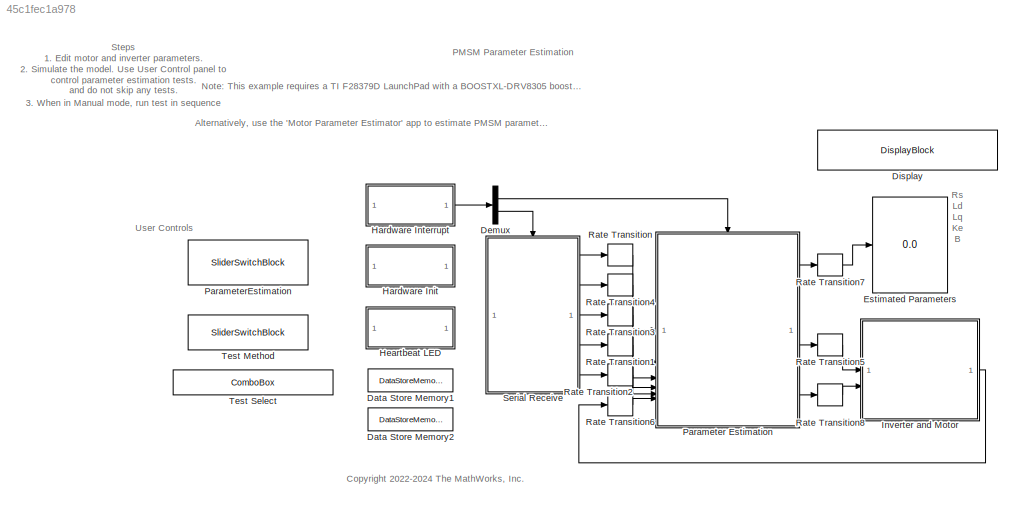
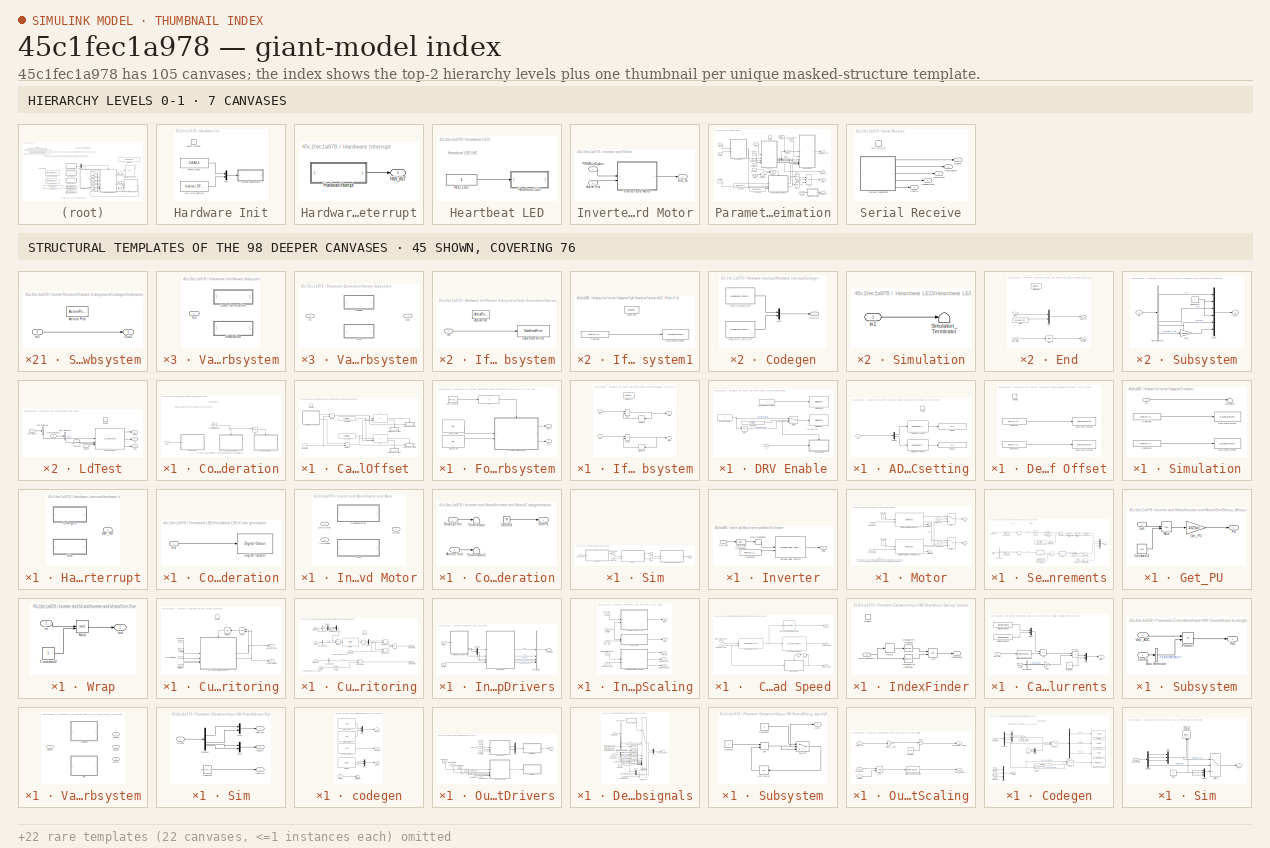
[diagram: thumbnail index - top-2 hierarchy levels (7 canvases) + 45 structural-template representatives of the remaining 98 canvases]
MODEL slx_45c1fec1a978
KIND model
CONFIG AbsTol = auto
CONFIG EnableMultiTasking = on
CONFIG FixedStep = auto
CONFIG InitFcn = mcb_pmsm_param_est_f28379d_data;
CONFIG MaxStep = auto
CONFIG MinStep = auto
CONFIG RelTol = 1e-3
CONFIG SampleTimeConstraint = Unconstrained
CONFIG SolverName = FixedStepDiscrete
CONFIG StartTime = 0.0
CONFIG StopTime = 12
BLOCK [DataStoreMemory] Data Store Memory1
  DataStoreName = IaOffset
  InitialValue = inverter.CtSensAOffset
  ReadBeforeWriteMsg = warning
  ShowAdditionalParam = off
  WriteAfterReadMsg = warning
  WriteAfterWriteMsg = warning
BLOCK [DataStoreMemory] Data Store Memory2
  DataStoreName = IbOffset
  InitialValue = inverter.CtSensBOffset
  ReadBeforeWriteMsg = warning
  ShowAdditionalParam = off
  WriteAfterReadMsg = warning
  WriteAfterWriteMsg = warning
BLOCK [Demux] Demux
  Outputs = 2
BLOCK [DisplayBlock] Display
  LabelPosition = Hide
  Transparency = 1
BLOCK [Display] Estimated Parameters
  Decimation = 1
  Format = long
BLOCK [SubSystem] Hardware Init
  TreatAsAtomicUnit = on
BLOCK [Constant] Hardware Init/6PWM_Mode
  OutDataTypeStr = uint16
  Priority = 1000
  SampleTime = -1
  Value = 0x3A16
BLOCK [Constant] Hardware Init/ADC_Gain_Setting
  OutDataTypeStr = uint16
  Priority = 1000
  SampleTime = -1
  Value = inverter.SPI_Gain_Setting
BLOCK [EventListener] Hardware Init/Event Listener
  DisableCoverage = on
  EventName = reset
BLOCK [Mux] Hardware Init/Mux
  DisplayOption = bar
  Inputs = 2
BLOCK [SubSystem] Hardware Init/Variant Subsystem
  Variant = on
  VariantControlMode = sim codegen switching
BLOCK [SubSystem] Hardware Init/Variant Subsystem/Code Generation
  VariantControl = (codegen)
BLOCK [Constant] Hardware Init/Variant Subsystem/Code Generation/ADC Calib Enable
  OutDataTypeStr = Inherit: Inherit via back propagation
  Value = inverter.ADCOffsetCalibEnable
BLOCK [SubSystem] Hardware Init/Variant Subsystem/Code Generation/Calculate ADC Offset 
  Priority = 1001
  TreatAsAtomicUnit = on
BLOCK [Constant] Hardware Init/Variant Subsystem/Code Generation/Calculate ADC Offset /Constant
  Value = 8
BLOCK [Constant] Hardware Init/Variant Subsystem/Code Generation/Calculate ADC Offset /Constant1
  OutDataTypeStr = Inherit: Inherit via back propagation
  Value = inverter.CtSensOffsetMax
BLOCK [Constant] Hardware Init/Variant Subsystem/Code Generation/Calculate ADC Offset /Constant2
  OutDataTypeStr = Inherit: Inherit via back propagation
  Value = inverter.CtSensOffsetMin
BLOCK [Product] Hardware Init/Variant Subsystem/Code Generation/Calculate ADC Offset /Divide
  Inputs = */
  OutDataTypeStr = uint16
BLOCK [Product] Hardware Init/Variant Subsystem/Code Generation/Calculate ADC Offset /Divide1
  Inputs = */
  OutDataTypeStr = uint16
BLOCK [EnablePort] Hardware Init/Variant Subsystem/Code Generation/Calculate ADC Offset /Enable
BLOCK [SubSystem] Hardware Init/Variant Subsystem/Code Generation/Calculate ADC Offset /For Iterator Subsystem
  TreatAsAtomicUnit = on
BLOCK [Reference] Hardware Init/Variant Subsystem/Code Generation/Calculate ADC Offset /For Iterator Subsystem/ADC_A_IN0  REF=c2802xlib/ADC
  Priority = 20
  SourceBlock = c2802xlib/ADC
  SourceType = ADC Type 3-5
  UserDataPersistent = on
BLOCK [Reference] Hardware Init/Variant Subsystem/Code Generation/Calculate ADC Offset /For Iterator Subsystem/ADC_B_IN0  REF=c2802xlib/ADC
  Priority = 20
  SourceBlock = c2802xlib/ADC
  SourceType = ADC Type 3-5
  UserDataPersistent = on
BLOCK [ForIterator] Hardware Init/Variant Subsystem/Code Generation/Calculate ADC Offset /For Iterator Subsystem/For Iterator
  IterationLimit = 16
  IterationVariableDataType = uint16
BLOCK [If] Hardware Init/Variant Subsystem/Code Generation/Calculate ADC Offset /For Iterator Subsystem/If
  IfExpression = u1 > 8
  ShowElse = off
BLOCK [SubSystem] Hardware Init/Variant Subsystem/Code Generation/Calculate ADC Offset /For Iterator Subsystem/If Action Subsystem
  TreatAsAtomicUnit = on
BLOCK [ActionPort] Hardware Init/Variant Subsystem/Code Generation/Calculate ADC Offset /For Iterator Subsystem/If Action Subsystem/Action Port
BLOCK [Inport] Hardware Init/Variant Subsystem/Code Generation/Calculate ADC Offset /For Iterator Subsystem/If Action Subsystem/In1
BLOCK [Inport] Hardware Init/Variant Subsystem/Code Generation/Calculate ADC Offset /For Iterator Subsystem/If Action Subsystem/In2
  Port = 2
BLOCK [Memory] Hardware Init/Variant Subsystem/Code Generation/Calculate ADC Offset /For Iterator Subsystem/If Action Subsystem/Memory
  InheritSampleTime = on
  NameLocation = top
BLOCK [Memory] Hardware Init/Variant Subsystem/Code Generation/Calculate ADC Offset /For Iterator Subsystem/If Action Subsystem/Memory1
  InheritSampleTime = on
  NameLocation = top
BLOCK [Outport] Hardware Init/Variant Subsystem/Code Generation/Calculate ADC Offset /For Iterator Subsystem/If Action Subsystem/Out1
BLOCK [Outport] Hardware Init/Variant Subsystem/Code Generation/Calculate ADC Offset /For Iterator Subsystem/If Action Subsystem/Out2
  Port = 2
BLOCK [Sum] Hardware Init/Variant Subsystem/Code Generation/Calculate ADC Offset /For Iterator Subsystem/If Action Subsystem/Sum
  IconShape = rectangular
BLOCK [Sum] Hardware Init/Variant Subsystem/Code Generation/Calculate ADC Offset /For Iterator Subsystem/If Action Subsystem/Sum1
  IconShape = rectangular
BLOCK [Outport] Hardware Init/Variant Subsystem/Code Generation/Calculate ADC Offset /For Iterator Subsystem/Out1
BLOCK [Outport] Hardware Init/Variant Subsystem/Code Generation/Calculate ADC Offset /For Iterator Subsystem/Out2
  Port = 2
BLOCK [If] Hardware Init/Variant Subsystem/Code Generation/Calculate ADC Offset /If
  IfExpression = u1 > u3 & u1 < u2
  NumInputs = 3
BLOCK [SubSystem] Hardware Init/Variant Subsystem/Code Generation/Calculate ADC Offset /If Action Subsystem
  TreatAsAtomicUnit = on
BLOCK [ActionPort] Hardware Init/Variant Subsystem/Code Generation/Calculate ADC Offset /If Action Subsystem/Action Port
BLOCK [DataStoreWrite] Hardware Init/Variant Subsystem/Code Generation/Calculate ADC Offset /If Action Subsystem/Data Store Write1
  DataStoreName = IaOffset
  IndexOptions = Index vector (dialog)
  Indices = 1
  OutputSizes = 1
BLOCK [Inport] Hardware Init/Variant Subsystem/Code Generation/Calculate ADC Offset /If Action Subsystem/In1
BLOCK [SubSystem] Hardware Init/Variant Subsystem/Code Generation/Calculate ADC Offset /If Action Subsystem1
  TreatAsAtomicUnit = on
BLOCK [ActionPort] Hardware Init/Variant Subsystem/Code Generation/Calculate ADC Offset /If Action Subsystem1/Action Port
BLOCK [Constant] Hardware Init/Variant Subsystem/Code Generation/Calculate ADC Offset /If Action Subsystem1/Constant
  OutDataTypeStr = Inherit: Inherit via back propagation
  Value = inverter.CtSensAOffset
BLOCK [DataStoreWrite] Hardware Init/Variant Subsystem/Code Generation/Calculate ADC Offset /If Action Subsystem1/Data Store Write1
  DataStoreName = IaOffset
  IndexOptions = Index vector (dialog)
  Indices = 1
  OutputSizes = 1
BLOCK [SubSystem] Hardware Init/Variant Subsystem/Code Generation/Calculate ADC Offset /If Action Subsystem2
  TreatAsAtomicUnit = on
BLOCK [ActionPort] Hardware Init/Variant Subsystem/Code Generation/Calculate ADC Offset /If Action Subsystem2/Action Port
BLOCK [DataStoreWrite] Hardware Init/Variant Subsystem/Code Generation/Calculate ADC Offset /If Action Subsystem2/Data Store Write2
  DataStoreName = IbOffset
  IndexOptions = Index vector (dialog)
  Indices = 1
  OutputSizes = 1
BLOCK [Inport] Hardware Init/Variant Subsystem/Code Generation/Calculate ADC Offset /If Action Subsystem2/In1
BLOCK [SubSystem] Hardware Init/Variant Subsystem/Code Generation/Calculate ADC Offset /If Action Subsystem3
  TreatAsAtomicUnit = on
BLOCK [ActionPort] Hardware Init/Variant Subsystem/Code Generation/Calculate ADC Offset /If Action Subsystem3/Action Port
BLOCK [Constant] Hardware Init/Variant Subsystem/Code Generation/Calculate ADC Offset /If Action Subsystem3/Constant1
  OutDataTypeStr = Inherit: Inherit via back propagation
  Value = inverter.CtSensBOffset
BLOCK [DataStoreWrite] Hardware Init/Variant Subsystem/Code Generation/Calculate ADC Offset /If Action Subsystem3/Data Store Write2
  DataStoreName = IbOffset
  IndexOptions = Index vector (dialog)
  Indices = 1
  OutputSizes = 1
BLOCK [If] Hardware Init/Variant Subsystem/Code Generation/Calculate ADC Offset /If1
  IfExpression = u1 > u3 & u1 < u2
  NumInputs = 3
BLOCK [SubSystem] Hardware Init/Variant Subsystem/Code Generation/DRV Enable
  Priority = 1
BLOCK [SubSystem] Hardware Init/Variant Subsystem/Code Generation/DRV Enable/ADC Gain setting
BLOCK [Demux] Hardware Init/Variant Subsystem/Code Generation/DRV Enable/ADC Gain setting/Demux
  Outputs = 2
BLOCK [Display] Hardware Init/Variant Subsystem/Code Generation/DRV Enable/ADC Gain setting/Display
  Decimation = 1
  Format = hex (Stored Integer)
BLOCK [Display] Hardware Init/Variant Subsystem/Code Generation/DRV Enable/ADC Gain setting/Display1
  Decimation = 1
  Format = hex (Stored Integer)
BLOCK [EnablePort] Hardware Init/Variant Subsystem/Code Generation/DRV Enable/ADC Gain setting/Enable
BLOCK [Inport] Hardware Init/Variant Subsystem/Code Generation/DRV Enable/ADC Gain setting/In1
BLOCK [Reference] Hardware Init/Variant Subsystem/Code Generation/DRV Enable/ADC Gain setting/SPI Master Transfer  REF=c280xlib/SPI Controller Transfer
  SourceBlock = c280xlib/SPI Controller Transfer
  SourceType = codertarget.tic2000.blocks.SPIMasterTransfer
BLOCK [Reference] Hardware Init/Variant Subsystem/Code Generation/DRV Enable/ADC Gain setting/SPI Master Transfer1  REF=c280xlib/SPI Controller Transfer
  SourceBlock = c280xlib/SPI Controller Transfer
  SourceType = codertarget.tic2000.blocks.SPIMasterTransfer
BLOCK [Constant] Hardware Init/Variant Subsystem/Code Generation/DRV Enable/Constant
  Value = inverter.EnableLogic
BLOCK [Reference] Hardware Init/Variant Subsystem/Code Generation/DRV Enable/Digital Output  REF=c2837xDlib/Digital Output
  Priority = 10
  SourceBlock = c2837xDlib/Digital Output
  SourceType = F2837x GPIO Digital Output
  UserDataPersistent = on
BLOCK [Reference] Hardware Init/Variant Subsystem/Code Generation/DRV Enable/Digital Output1  REF=c2837xDlib/Digital Output
  Priority = 10
  SourceBlock = c2837xDlib/Digital Output
  SourceType = F2837x GPIO Digital Output
  UserDataPersistent = on
BLOCK [Inport] Hardware Init/Variant Subsystem/Code Generation/DRV Enable/In
BLOCK [Constant] Hardware Init/Variant Subsystem/Code Generation/DRV Enable/Inverter Enable
  OutDataTypeStr = uint16
  SampleTime = -1
BLOCK [Logic] Hardware Init/Variant Subsystem/Code Generation/DRV Enable/NOT
  AllPortsSameDT = off
  IconShape = distinctive
  Operator = NOT
  OutDataTypeStr = boolean
BLOCK [Constant] Hardware Init/Variant Subsystem/Code Generation/DRV Enable/RunTimeMeasurement
  OutDataTypeStr = uint16
  SampleTime = -1
BLOCK [Switch] Hardware Init/Variant Subsystem/Code Generation/DRV Enable/Switch
  Criteria = u2 > Threshold
  InputSameDT = off
  SaturateOnIntegerOverflow = off
BLOCK [SubSystem] Hardware Init/Variant Subsystem/Code Generation/Default ADC Offset
  Priority = 1001
  TreatAsAtomicUnit = on
BLOCK [Constant] Hardware Init/Variant Subsystem/Code Generation/Default ADC Offset/Constant
  OutDataTypeStr = Inherit: Inherit via back propagation
  Value = inverter.CtSensAOffset
BLOCK [Constant] Hardware Init/Variant Subsystem/Code Generation/Default ADC Offset/Constant1
  OutDataTypeStr = Inherit: Inherit via back propagation
  Value = inverter.CtSensBOffset
BLOCK [DataStoreWrite] Hardware Init/Variant Subsystem/Code Generation/Default ADC Offset/Data Store Write1
  DataStoreName = IaOffset
  IndexOptions = Index vector (dialog)
  Indices = 1
  OutputSizes = 1
BLOCK [DataStoreWrite] Hardware Init/Variant Subsystem/Code Generation/Default ADC Offset/Data Store Write2
  DataStoreName = IbOffset
  IndexOptions = Index vector (dialog)
  Indices = 1
  OutputSizes = 1
BLOCK [EnablePort] Hardware Init/Variant Subsystem/Code Generation/Default ADC Offset/Enable
BLOCK [Inport] Hardware Init/Variant Subsystem/Code Generation/In1
BLOCK [Logic] Hardware Init/Variant Subsystem/Code Generation/NOT
  AllPortsSameDT = off
  IconShape = distinctive
  Operator = NOT
  OutDataTypeStr = boolean
BLOCK [Inport] Hardware Init/Variant Subsystem/In1
BLOCK [SubSystem] Hardware Init/Variant Subsystem/Simulation
  VariantControl = (sim)
BLOCK [Constant] Hardware Init/Variant Subsystem/Simulation/Constant
  OutDataTypeStr = Inherit: Inherit via back propagation
  Value = inverter.CtSensAOffset
BLOCK [Constant] Hardware Init/Variant Subsystem/Simulation/Constant1
  OutDataTypeStr = Inherit: Inherit via back propagation
  Value = inverter.CtSensBOffset
BLOCK [DataStoreWrite] Hardware Init/Variant Subsystem/Simulation/Data Store Write1
  DataStoreName = IaOffset
  IndexOptions = Index vector (dialog)
  Indices = 1
  OutputSizes = 1
BLOCK [DataStoreWrite] Hardware Init/Variant Subsystem/Simulation/Data Store Write2
  DataStoreName = IbOffset
  IndexOptions = Index vector (dialog)
  Indices = 1
  OutputSizes = 1
BLOCK [Inport] Hardware Init/Variant Subsystem/Simulation/In1
BLOCK [Terminator] Hardware Init/Variant Subsystem/Simulation/Terminator
BLOCK [SubSystem] Hardware Interrupt
BLOCK [Outport] Hardware Interrupt/HW_INT
BLOCK [SubSystem] Hardware Interrupt/Hardware Interrupt
  Variant = on
  VariantControlMode = sim codegen switching
BLOCK [SubSystem] Hardware Interrupt/Hardware Interrupt/Codegen
  VariantControl = (codegen)
BLOCK [Reference] Hardware Interrupt/Hardware Interrupt/Codegen/HWI_ADCB1_INT  REF=svdschedulerlib/Hardware Interrupt v2
  LibrarySourceBlock = c2000lib/Scheduling/Hardware Interrupt
  SourceBlock = svdschedulerlib/Hardware Interrupt v2
  SourceType = HardwareInterrupt
  UserDataPersistent = on
BLOCK [Reference] Hardware Interrupt/Hardware Interrupt/Codegen/HWI_SCIA_RX_INT  REF=svdschedulerlib/Hardware Interrupt v2
  LibrarySourceBlock = c2000lib/Scheduling/Hardware Interrupt
  SourceBlock = svdschedulerlib/Hardware Interrupt v2
  SourceType = HardwareInterrupt
  UserDataPersistent = on
BLOCK [Outport] Hardware Interrupt/Hardware Interrupt/Codegen/HW_INT
BLOCK [Mux] Hardware Interrupt/Hardware Interrupt/Codegen/Mux
  DisplayOption = bar
  Inputs = 2
BLOCK [Outport] Hardware Interrupt/Hardware Interrupt/HW_INT
  OutputFunctionCall = on
BLOCK [SubSystem] Hardware Interrupt/Hardware Interrupt/Sim
  VariantControl = (sim)
BLOCK [Reference] Hardware Interrupt/Hardware Interrupt/Sim/ADCINT1  REF=simulink/Ports &
Subsystems/Function-Call
Generator
  SourceBlock = simulink/Ports &\nSubsystems/Function-Call\nGenerator
  SourceType = Function-Call Generator
BLOCK [Outport] Hardware Interrupt/Hardware Interrupt/Sim/HW_INT
BLOCK [Mux] Hardware Interrupt/Hardware Interrupt/Sim/Mux
  DisplayOption = bar
  Inputs = 2
BLOCK [Reference] Hardware Interrupt/Hardware Interrupt/Sim/SCI_Rx_INT  REF=simulink/Ports &
Subsystems/Function-Call
Generator
  SourceBlock = simulink/Ports &\nSubsystems/Function-Call\nGenerator
  SourceType = Function-Call Generator
BLOCK [SubSystem] Heartbeat LED
  TreatAsAtomicUnit = on
BLOCK [SubSystem] Heartbeat LED/Heartbeat LED
  Variant = on
  VariantControlMode = sim codegen switching
BLOCK [SubSystem] Heartbeat LED/Heartbeat LED/Code generation
  VariantControl = (codegen)
BLOCK [Reference] Heartbeat LED/Heartbeat LED/Code generation/Digital Output  REF=c2837xDlib/Digital Output
  SourceBlock = c2837xDlib/Digital Output
  SourceType = F2837x GPIO Digital Output
  UserDataPersistent = on
BLOCK [Inport] Heartbeat LED/Heartbeat LED/Code generation/In1
BLOCK [Inport] Heartbeat LED/Heartbeat LED/In1
BLOCK [SubSystem] Heartbeat LED/Heartbeat LED/Simulation
  VariantControl = (sim)
BLOCK [Inport] Heartbeat LED/Heartbeat LED/Simulation/In1
BLOCK [Terminator] Heartbeat LED/Heartbeat LED/Simulation/Simulation_Terminator
BLOCK [Constant] Heartbeat LED/RED_LED
  OutDataTypeStr = uint16
  SampleTime = 0.5
BLOCK [SubSystem] Inverter and Motor
  RTWSystemCode = Reusable function
BLOCK [Inport] Inverter and Motor/ActiveTest
  Port = 2
BLOCK [SubSystem] Inverter and Motor/Inverter and Motor
  Variant = on
  VariantControlMode = sim codegen switching
BLOCK [Inport] Inverter and Motor/Inverter and Motor/ActiveTest
  Port = 2
BLOCK [SubSystem] Inverter and Motor/Inverter and Motor/Codegeneration
  VariantControl = (codegen)
BLOCK [Inport] Inverter and Motor/Inverter and Motor/Codegeneration/ActiveTest
  Port = 2
BLOCK [Inport] Inverter and Motor/Inverter and Motor/Codegeneration/DutyCycles
BLOCK [Ground] Inverter and Motor/Inverter and Motor/Codegeneration/Ground
BLOCK [Outport] Inverter and Motor/Inverter and Motor/Codegeneration/SimFb
  VectorParamsAs1DForOutWhenUnconnected = off
BLOCK [Terminator] Inverter and Motor/Inverter and Motor/Codegeneration/Terminator
BLOCK [Terminator] Inverter and Motor/Inverter and Motor/Codegeneration/Terminator1
BLOCK [Inport] Inverter and Motor/Inverter and Motor/DutyCycles
BLOCK [SubSystem] Inverter and Motor/Inverter and Motor/Sim
  VariantControl = (sim)
BLOCK [Inport] Inverter and Motor/Inverter and Motor/Sim/ActiveTest
  Port = 2
BLOCK [Inport] Inverter and Motor/Inverter and Motor/Sim/DutyCycles
BLOCK [SubSystem] Inverter and Motor/Inverter and Motor/Sim/Inverter
BLOCK [Reference] Inverter and Motor/Inverter and Motor/Sim/Inverter/Average-Value Inverter  REF=mcbplantlib/Average-Value Inverter
  SourceBlock = mcbplantlib/Average-Value Inverter
  SourceType = Average Value Inverter
BLOCK [Constant] Inverter and Motor/Inverter and Motor/Sim/Inverter/Constant2
  OutDataTypeStr = single
  SampleTime = -1
  Value = inverter.V_dc
BLOCK [DataTypeConversion] Inverter and Motor/Inverter and Motor/Sim/Inverter/Data Type Conversion1
  OutDataTypeStr = single
  RndMeth = Simplest
  SaturateOnIntegerOverflow = off
BLOCK [Inport] Inverter and Motor/Inverter and Motor/Sim/Inverter/Duty_abc
BLOCK [RateTransition] Inverter and Motor/Inverter and Motor/Sim/Inverter/Rate Transition3
  Deterministic = off
  OutPortSampleTime = Ts_inverter
BLOCK [Outport] Inverter and Motor/Inverter and Motor/Sim/Inverter/Vabc
  VectorParamsAs1DForOutWhenUnconnected = off
BLOCK [SubSystem] Inverter and Motor/Inverter and Motor/Sim/Motor
BLOCK [Inport] Inverter and Motor/Inverter and Motor/Sim/Motor/ActiveTest
  Port = 2
BLOCK [InportShadow] Inverter and Motor/Inverter and Motor/Sim/Motor/ActiveTest1
  Port = 2
BLOCK [Constant] Inverter and Motor/Inverter and Motor/Sim/Motor/Constant
  OutDataTypeStr = single
  Value = 0
BLOCK [Constant] Inverter and Motor/Inverter and Motor/Sim/Motor/Constant1
  OutDataTypeStr = single
  Value = 0
BLOCK [Outport] Inverter and Motor/Inverter and Motor/Sim/Motor/Iabc
  Port = 2
BLOCK [Outport] Inverter and Motor/Inverter and Motor/Sim/Motor/Info
BLOCK [Reference] Inverter and Motor/Inverter and Motor/Sim/Motor/Interior PMSM with free rotor (Ke, J, B)  REF=autolibpmsminterior/Interior PMSM
  LibrarySourceBlock = mcblib/Electrical Systems/Motors/Interior PMSM
  SourceBlock = autolibpmsminterior/Interior PMSM
  SourceType = Interior PMSM
BLOCK [Reference] Inverter and Motor/Inverter and Motor/Sim/Motor/Interior PMSM with locked rotor (Rs, Ld, Lq)  REF=autolibpmsminterior/Interior PMSM
  LibrarySourceBlock = mcblib/Electrical Systems/Motors/Interior PMSM
  SourceBlock = autolibpmsminterior/Interior PMSM
  SourceType = Interior PMSM
BLOCK [Inport] Inverter and Motor/Inverter and Motor/Sim/Motor/PhaseVolt
BLOCK [InportShadow] Inverter and Motor/Inverter and Motor/Sim/Motor/PhaseVolt1
BLOCK [Switch] Inverter and Motor/Inverter and Motor/Sim/Motor/Switch
  Criteria = u2 > Threshold
  InputSameDT = off
  SaturateOnIntegerOverflow = off
  Threshold = 3
BLOCK [Switch] Inverter and Motor/Inverter and Motor/Sim/Motor/Switch1
  Criteria = u2 > Threshold
  InputSameDT = off
  SaturateOnIntegerOverflow = off
  Threshold = 3
BLOCK [Terminator] Inverter and Motor/Inverter and Motor/Sim/Motor/Terminator
BLOCK [Terminator] Inverter and Motor/Inverter and Motor/Sim/Motor/Terminator1
BLOCK [RateTransition] Inverter and Motor/Inverter and Motor/Sim/RT1
  Deterministic = off
  OutPortSampleTime = Ts_simulink
BLOCK [RateTransition] Inverter and Motor/Inverter and Motor/Sim/RT3
  Deterministic = off
  OutPortSampleTime = Ts_simulink
BLOCK [RateTransition] Inverter and Motor/Inverter and Motor/Sim/Rate Transition
  Deterministic = off
  OutPortSampleTime = Ts_motor
BLOCK [SubSystem] Inverter and Motor/Inverter and Motor/Sim/Sensor_Measurements
BLOCK [Sum] Inverter and Motor/Inverter and Motor/Sim/Sensor_Measurements/Add Offset
  IconShape = rectangular
  RndMeth = Simplest
BLOCK [Sum] Inverter and Motor/Inverter and Motor/Sim/Sensor_Measurements/Add1
  IconShape = rectangular
  RndMeth = Simplest
BLOCK [BusSelector] Inverter and Motor/Inverter and Motor/Sim/Sensor_Measurements/Bus Selector
  OutputSignals = MtrPos
BLOCK [DataTypeConversion] Inverter and Motor/Inverter and Motor/Sim/Sensor_Measurements/Data Type Conversion2
  OutDataTypeStr = single
  RndMeth = Simplest
  SaturateOnIntegerOverflow = off
BLOCK [DataTypeConversion] Inverter and Motor/Inverter and Motor/Sim/Sensor_Measurements/Data Type Conversion4
  OutDataTypeStr = single
  RndMeth = Simplest
  SaturateOnIntegerOverflow = off
BLOCK [DataTypeConversion] Inverter and Motor/Inverter and Motor/Sim/Sensor_Measurements/Data Type Conversion6
  OutDataTypeStr = uint16
  RndMeth = Simplest
  SaturateOnIntegerOverflow = off
BLOCK [DataTypeConversion] Inverter and Motor/Inverter and Motor/Sim/Sensor_Measurements/Data Type Conversion7
  OutDataTypeStr = uint16
  RndMeth = Simplest
  SaturateOnIntegerOverflow = off
BLOCK [Delay] Inverter and Motor/Inverter and Motor/Sim/Sensor_Measurements/Delay1
  InputPortMap = u0
BLOCK [Delay] Inverter and Motor/Inverter and Motor/Sim/Sensor_Measurements/Delay2
  InputPortMap = u0
BLOCK [Gain] Inverter and Motor/Inverter and Motor/Sim/Sensor_Measurements/Get ADC Count
  Gain = target.ADC_MaxCount/target.ADC_Vref
  OutDataTypeStr = uint16
  OutMax = target.ADC_MaxCount
  OutMin = 0
  RndMeth = Simplest
BLOCK [Gain] Inverter and Motor/Inverter and Motor/Sim/Sensor_Measurements/Get Current Sense Voltage
  Gain = inverter.invertingAmp * inverter.ISenseVoltPerAmp
  OutDataTypeStr = Inherit: Same as input
  RndMeth = Simplest
BLOCK [SubSystem] Inverter and Motor/Inverter and Motor/Sim/Sensor_Measurements/Get_PU 
BLOCK [Constant] Inverter and Motor/Inverter and Motor/Sim/Sensor_Measurements/Get_PU /Constant2
  OutDataTypeStr = single
  SampleTime = -1
  Value = 2*pi
BLOCK [Gain] Inverter and Motor/Inverter and Motor/Sim/Sensor_Measurements/Get_PU /Get_PU
  Gain = 1/(2*pi)
  OutDataTypeStr = Inherit: Same as input
  RndMeth = Simplest
BLOCK [Math] Inverter and Motor/Inverter and Motor/Sim/Sensor_Measurements/Get_PU /Mod
  Operator = mod
BLOCK [Outport] Inverter and Motor/Inverter and Motor/Sim/Sensor_Measurements/Get_PU /PU
  VectorParamsAs1DForOutWhenUnconnected = off
BLOCK [Inport] Inverter and Motor/Inverter and Motor/Sim/Sensor_Measurements/Get_PU /rad
BLOCK [Gain] Inverter and Motor/Inverter and Motor/Sim/Sensor_Measurements/Get_QEP_Counts
  Gain = motor.QEPSlits*4
  OutDataTypeStr = uint16
  RndMeth = Simplest
BLOCK [Constant] Inverter and Motor/Inverter and Motor/Sim/Sensor_Measurements/IndexOffset in PU
  OutDataTypeStr = single
  SampleTime = -1
  Value = motor.PositionOffset
BLOCK [Inport] Inverter and Motor/Inverter and Motor/Sim/Sensor_Measurements/Info
BLOCK [Mux] Inverter and Motor/Inverter and Motor/Sim/Sensor_Measurements/Mux1
  DisplayOption = bar
  Inputs = 3
BLOCK [Gain] Inverter and Motor/Inverter and Motor/Sim/Sensor_Measurements/Offset voltage
  Gain = target.ADC_Vref / target.ADC_MaxCount
  RndMeth = Simplest
BLOCK [Inport] Inverter and Motor/Inverter and Motor/Sim/Sensor_Measurements/PhaseCurr
  Port = 2
BLOCK [Saturate] Inverter and Motor/Inverter and Motor/Sim/Sensor_Measurements/Saturate at ADC Vref
  LowerLimit = 0
  UpperLimit = target.ADC_Vref
BLOCK [Saturate] Inverter and Motor/Inverter and Motor/Sim/Sensor_Measurements/Saturate at inverter Vref
  LowerLimit = 0
  UpperLimit = inverter.ISenseVref
BLOCK [Selector] Inverter and Motor/Inverter and Motor/Sim/Sensor_Measurements/Selector
  IndexOptions = Index vector (dialog)
  Indices = [1 2]
  InputPortWidth = 3
  OutputSizes = 1
BLOCK [Outport] Inverter and Motor/Inverter and Motor/Sim/Sensor_Measurements/Sim_fb
  VectorParamsAs1DForOutWhenUnconnected = off
BLOCK [Step] Inverter and Motor/Inverter and Motor/Sim/Sensor_Measurements/Switch to closed loop 
  SampleTime = Ts_motor
  Time = 0.1
BLOCK [SubSystem] Inverter and Motor/Inverter and Motor/Sim/Sensor_Measurements/Wrap
BLOCK [Constant] Inverter and Motor/Inverter and Motor/Sim/Sensor_Measurements/Wrap/Constant2
  OutDataTypeStr = single
  SampleTime = -1
BLOCK [Math] Inverter and Motor/Inverter and Motor/Sim/Sensor_Measurements/Wrap/Mod
  Operator = mod
BLOCK [Inport] Inverter and Motor/Inverter and Motor/Sim/Sensor_Measurements/Wrap/in
BLOCK [Outport] Inverter and Motor/Inverter and Motor/Sim/Sensor_Measurements/Wrap/out
  VectorParamsAs1DForOutWhenUnconnected = off
BLOCK [Constant] Inverter and Motor/Inverter and Motor/Sim/Sensor_Measurements/~1.65V in ADC counts
  OutDataTypeStr = uint16
  SampleTime = -1
  Value = [inverter.CtSensAOffset inverter.CtSensBOffset]
BLOCK [Outport] Inverter and Motor/Inverter and Motor/Sim/SimFb
  VectorParamsAs1DForOutWhenUnconnected = off
BLOCK [Outport] Inverter and Motor/Inverter and Motor/SimFb
  VectorParamsAs1DForOutWhenUnconnected = off
BLOCK [Inport] Inverter and Motor/PWMDutyCycles
BLOCK [Outport] Inverter and Motor/Sim_fb
  VectorParamsAs1DForOutWhenUnconnected = off
BLOCK [SubSystem] Parameter Estimation
  RTWMemSecFuncExecute = code_ramfuncs
BLOCK [Logic] Parameter Estimation/AND
  AllPortsSameDT = off
  IconShape = distinctive
  Inputs = 3
  OutDataTypeStr = boolean
BLOCK [Logic] Parameter Estimation/AND1
  AllPortsSameDT = off
  OutDataTypeStr = boolean
BLOCK [Outport] Parameter Estimation/ActiveTest
  Port = 3
BLOCK [Inport] Parameter Estimation/Config
  Port = 5
BLOCK [InportShadow] Parameter Estimation/Config1
  Port = 5
BLOCK [InportShadow] Parameter Estimation/Config2
  Port = 5
BLOCK [Constant] Parameter Estimation/Constant
  OutDataTypeStr = dataType
  Value = motor.OverCurrLim
BLOCK [Constant] Parameter Estimation/Constant1
  OutDataTypeStr = dataType
  Value = inverter.UnderVoltLim
BLOCK [SubSystem] Parameter Estimation/Current Voltage Monitoring
BLOCK [Inport] Parameter Estimation/Current Voltage Monitoring/Config
  Port = 2
BLOCK [SubSystem] Parameter Estimation/Current Voltage Monitoring/Current and Voltage Monitoring
BLOCK [Abs] Parameter Estimation/Current Voltage Monitoring/Current and Voltage Monitoring/Abs
  SaturateOnIntegerOverflow = off
BLOCK [BusSelector] Parameter Estimation/Current Voltage Monitoring/Current and Voltage Monitoring/Bus Selector
  OutputSignals = Iabc
BLOCK [BusSelector] Parameter Estimation/Current Voltage Monitoring/Current and Voltage Monitoring/Bus Selector1
  OutputSignals = Vdc
BLOCK [BusSelector] Parameter Estimation/Current Voltage Monitoring/Current and Voltage Monitoring/Bus Selector2
  OutputSignals = IRated
BLOCK [Inport] Parameter Estimation/Current Voltage Monitoring/Current and Voltage Monitoring/Config
  Port = 2
BLOCK [Inport] Parameter Estimation/Current Voltage Monitoring/Current and Voltage Monitoring/CurrentLimit
  Port = 3
BLOCK [Demux] Parameter Estimation/Current Voltage Monitoring/Current and Voltage Monitoring/Demux
  Outputs = 2
BLOCK [Demux] Parameter Estimation/Current Voltage Monitoring/Current and Voltage Monitoring/Demux1
  Outputs = 3
BLOCK [Product] Parameter Estimation/Current Voltage Monitoring/Current and Voltage Monitoring/Divide
  Inputs = */
  OutDataTypeStr = Inherit: Same as first input
  RndMeth = Simplest
BLOCK [EnablePort] Parameter Estimation/Current Voltage Monitoring/Current and Voltage Monitoring/Enable
BLOCK [Gain] Parameter Estimation/Current Voltage Monitoring/Current and Voltage Monitoring/Gain
  Gain = inverter.V_dc
  OutDataTypeStr = Inherit: Same as input
  RndMeth = Simplest
BLOCK [RelationalOperator] Parameter Estimation/Current Voltage Monitoring/Current and Voltage Monitoring/GreaterThan
  InputSameDT = off
  Operator = >
  OutDataTypeStr = boolean
  RndMeth = Simplest
BLOCK [RelationalOperator] Parameter Estimation/Current Voltage Monitoring/Current and Voltage Monitoring/GreaterThan1
  InputSameDT = off
  Operator = >
  OutDataTypeStr = boolean
  RndMeth = Simplest
BLOCK [Inport] Parameter Estimation/Current Voltage Monitoring/Current and Voltage Monitoring/HWInputs
BLOCK [InportShadow] Parameter Estimation/Current Voltage Monitoring/Current and Voltage Monitoring/HWInputs1
BLOCK [Reference] Parameter Estimation/Current Voltage Monitoring/Current and Voltage Monitoring/IIR Filter  REF=mcbcontrolslib/IIR Filter
  LibrarySourceBlock = mcbhdllib/Signal Management/IIR Filter
  SourceBlock = mcbcontrolslib/IIR Filter
  SourceType = IIR Filter
BLOCK [RelationalOperator] Parameter Estimation/Current Voltage Monitoring/Current and Voltage Monitoring/Less Than
  InputSameDT = off
  Operator = <
  OutDataTypeStr = boolean
  RndMeth = Simplest
BLOCK [Mux] Parameter Estimation/Current Voltage Monitoring/Current and Voltage Monitoring/Mux
  DisplayOption = bar
  Inputs = 2
BLOCK [Logic] Parameter Estimation/Current Voltage Monitoring/Current and Voltage Monitoring/OR
  AllPortsSameDT = off
  IconShape = distinctive
  Operator = OR
  OutDataTypeStr = boolean
BLOCK [Outport] Parameter Estimation/Current Voltage Monitoring/Current and Voltage Monitoring/OverCurrent
BLOCK [Terminator] Parameter Estimation/Current Voltage Monitoring/Current and Voltage Monitoring/Terminator
BLOCK [Outport] Parameter Estimation/Current Voltage Monitoring/Current and Voltage Monitoring/UnderVoltage
  Port = 2
BLOCK [Inport] Parameter Estimation/Current Voltage Monitoring/Current and Voltage Monitoring/VoltLimit
  Port = 4
BLOCK [Inport] Parameter Estimation/Current Voltage Monitoring/CurrentLimit_PU
  Port = 3
BLOCK [EnablePort] Parameter Estimation/Current Voltage Monitoring/Enable
  StatesWhenEnabling = reset
BLOCK [Inport] Parameter Estimation/Current Voltage Monitoring/HWInputs
BLOCK [Logic] Parameter Estimation/Current Voltage Monitoring/NOR
  AllPortsSameDT = off
  IconShape = distinctive
  Operator = NOR
  OutDataTypeStr = boolean
BLOCK [Outport] Parameter Estimation/Current Voltage Monitoring/OverCurrent
  InitialOutput = 0
BLOCK [Outport] Parameter Estimation/Current Voltage Monitoring/UnderVoltage
  InitialOutput = 0
  Port = 2
BLOCK [UnitDelay] Parameter Estimation/Current Voltage Monitoring/Unit Delay
  HasFrameUpgradeWarning = on
  SampleTime = -1
BLOCK [Inport] Parameter Estimation/Current Voltage Monitoring/VoltLimit_PU
  Port = 4
BLOCK [Inport] Parameter Estimation/DebugSelect
  Port = 4
BLOCK [Inport] Parameter Estimation/Enable
BLOCK [InportShadow] Parameter Estimation/Enable1
BLOCK [From] Parameter Estimation/From
  GotoTag = En
BLOCK [From] Parameter Estimation/From1
  GotoTag = En
BLOCK [From] Parameter Estimation/From2
  GotoTag = params
BLOCK [From] Parameter Estimation/From3
  GotoTag = InvEn
BLOCK [Goto] Parameter Estimation/Goto
  GotoTag = En
BLOCK [Goto] Parameter Estimation/Goto1
  GotoTag = params
BLOCK [Goto] Parameter Estimation/Goto2
  GotoTag = InvEn
BLOCK [SubSystem] Parameter Estimation/Input HW Drivers
BLOCK [BusCreator] Parameter Estimation/Input HW Drivers/Bus Creator
  DisplayOption = bar
  InheritFromInputs = on
  Inputs = 5
BLOCK [Inport] Parameter Estimation/Input HW Drivers/Config
  Port = 2
BLOCK [Demux] Parameter Estimation/Input HW Drivers/Demux
  Outputs = 2
BLOCK [Outport] Parameter Estimation/Input HW Drivers/HWOutputs
BLOCK [SubSystem] Parameter Estimation/Input HW Drivers/Input Scaling
BLOCK [SubSystem] Parameter Estimation/Input HW Drivers/Input Scaling/ Calculate Position and Speed
BLOCK [Delay] Parameter Estimation/Input HW Drivers/Input Scaling/ Calculate Position and Speed/Delay
  DelayLength = 1
  InputPortMap = u0
BLOCK [SubSystem] Parameter Estimation/Input HW Drivers/Input Scaling/ Calculate Position and Speed/IndexFinder
BLOCK [Logic] Parameter Estimation/Input HW Drivers/Input Scaling/ Calculate Position and Speed/IndexFinder/AND
  AllPortsSameDT = off
  OutDataTypeStr = boolean
BLOCK [Reference] Parameter Estimation/Input HW Drivers/Input Scaling/ Calculate Position and Speed/IndexFinder/Compare To Constant  REF=simulink/Logic and Bit
Operations/Compare
To Constant
  SourceBlock = simulink/Logic and Bit\nOperations/Compare\nTo Constant
  SourceType = Compare To Constant
BLOCK [Reference] Parameter Estimation/Input HW Drivers/Input Scaling/ Calculate Position and Speed/IndexFinder/Compare To Constant1  REF=simulink/Logic and Bit
Operations/Compare
To Constant
  SourceBlock = simulink/Logic and Bit\nOperations/Compare\nTo Constant
  SourceType = Compare To Constant
BLOCK [Delay] Parameter Estimation/Input HW Drivers/Input Scaling/ Calculate Position and Speed/IndexFinder/Delay3
  DelayLength = 1
  InputPortMap = u0
BLOCK [EnablePort] Parameter Estimation/Input HW Drivers/Input Scaling/ Calculate Position and Speed/IndexFinder/Enable
BLOCK [Outport] Parameter Estimation/Input HW Drivers/Input Scaling/ Calculate Position and Speed/IndexFinder/IndexFound
BLOCK [Inport] Parameter Estimation/Input HW Drivers/Input Scaling/ Calculate Position and Speed/IndexFinder/QEPIndexLatch
BLOCK [Outport] Parameter Estimation/Input HW Drivers/Input Scaling/ Calculate Position and Speed/IndexFound
  InitialOutput = 0
  Port = 3
  VectorParamsAs1DForOutWhenUnconnected = off
BLOCK [Reference] Parameter Estimation/Input HW Drivers/Input Scaling/ Calculate Position and Speed/Mechanical to Electrical Position  REF=mcbpositiondecoderlib/Mechanical to Electrical Position
  SourceBlock = mcbpositiondecoderlib/Mechanical to Electrical Position
  SourceType = Mechanical to Electrical Position
BLOCK [Logic] Parameter Estimation/Input HW Drivers/Input Scaling/ Calculate Position and Speed/NOT
  AllPortsSameDT = off
  Operator = NOT
  OutDataTypeStr = boolean
BLOCK [Inport] Parameter Estimation/Input HW Drivers/Input Scaling/ Calculate Position and Speed/QEPIndexLatch
  Port = 2
BLOCK [Inport] Parameter Estimation/Input HW Drivers/Input Scaling/ Calculate Position and Speed/QEPPositionCount
BLOCK [Reference] Parameter Estimation/Input HW Drivers/Input Scaling/ Calculate Position and Speed/Quadrature Decoder  REF=mcbpositiondecoderlib/Quadrature Decoder
  SourceBlock = mcbpositiondecoderlib/Quadrature Decoder
  SourceType = Quadrature Decoder
BLOCK [Reference] Parameter Estimation/Input HW Drivers/Input Scaling/ Calculate Position and Speed/Speed Measurement  REF=mcbpositiondecoderlib/Speed Measurement
  SourceBlock = mcbpositiondecoderlib/Speed Measurement
  SourceType = Speed Measurement
BLOCK [Outport] Parameter Estimation/Input HW Drivers/Input Scaling/ Calculate Position and Speed/Speed_RPM
  Port = 2
  VectorParamsAs1DForOutWhenUnconnected = off
BLOCK [Outport] Parameter Estimation/Input HW Drivers/Input Scaling/ Calculate Position and Speed/Theta_e
  VectorParamsAs1DForOutWhenUnconnected = off
BLOCK [SubSystem] Parameter Estimation/Input HW Drivers/Input Scaling/Calculate Phase Currents
BLOCK [Sum] Parameter Estimation/Input HW Drivers/Input Scaling/Calculate Phase Currents/Add
  IconShape = rectangular
  Inputs = -+
BLOCK [BusSelector] Parameter Estimation/Input HW Drivers/Input Scaling/Calculate Phase Currents/Bus Selector
  OutputSignals = ISenseGain
BLOCK [Inport] Parameter Estimation/Input HW Drivers/Input Scaling/Calculate Phase Currents/Config
  Port = 2
BLOCK [Constant] Parameter Estimation/Input HW Drivers/Input Scaling/Calculate Phase Currents/Constant
  OutDataTypeStr = single
  Value = 0
BLOCK [DataStoreRead] Parameter Estimation/Input HW Drivers/Input Scaling/Calculate Phase Currents/Data Store Read1
  DataStoreName = IaOffset
  IndexOptions = Index vector (dialog)
  Indices = 1
  OutputSizes = 1
BLOCK [DataStoreRead] Parameter Estimation/Input HW Drivers/Input Scaling/Calculate Phase Currents/Data Store Read2
  DataStoreName = IbOffset
  IndexOptions = Index vector (dialog)
  Indices = 1
  OutputSizes = 1
BLOCK [DataTypeConversion] Parameter Estimation/Input HW Drivers/Input Scaling/Calculate Phase Currents/Data Type Conversion
  ConvertRealWorld = Stored Integer (SI)
  OutDataTypeStr = int32
  RndMeth = Simplest
  SaturateOnIntegerOverflow = off
BLOCK [Gain] Parameter Estimation/Input HW Drivers/Input Scaling/Calculate Phase Currents/Gain
  Gain = 1/inverter.ADCGain
  OutDataTypeStr = Inherit: Same as input
  RndMeth = Simplest
BLOCK [Inport] Parameter Estimation/Input HW Drivers/Input Scaling/Calculate Phase Currents/Iab_ADC
BLOCK [Outport] Parameter Estimation/Input HW Drivers/Input Scaling/Calculate Phase Currents/Iabc
  VectorParamsAs1DForOutWhenUnconnected = off
BLOCK [Mux] Parameter Estimation/Input HW Drivers/Input Scaling/Calculate Phase Currents/Mux1
  DisplayOption = bar
  Inputs = 2
BLOCK [Mux] Parameter Estimation/Input HW Drivers/Input Scaling/Calculate Phase Currents/Mux2
  DisplayOption = bar
  Inputs = 2
BLOCK [Product] Parameter Estimation/Input HW Drivers/Input Scaling/Calculate Phase Currents/Product
BLOCK [Inport] Parameter Estimation/Input HW Drivers/Input Scaling/Config
  Port = 5
BLOCK [Outport] Parameter Estimation/Input HW Drivers/Input Scaling/EnClosedLoop
  Port = 5
BLOCK [Inport] Parameter Estimation/Input HW Drivers/Input Scaling/Iab_ADC
BLOCK [Outport] Parameter Estimation/Input HW Drivers/Input Scaling/Iabc
BLOCK [Outport] Parameter Estimation/Input HW Drivers/Input Scaling/Pos_PU
  Port = 4
BLOCK [Inport] Parameter Estimation/Input HW Drivers/Input Scaling/QEPIndexLatch
  Port = 4
BLOCK [Inport] Parameter Estimation/Input HW Drivers/Input Scaling/QEPPositionCount
  Port = 3
BLOCK [Outport] Parameter Estimation/Input HW Drivers/Input Scaling/Speed_RPM
  Port = 3
BLOCK [SubSystem] Parameter Estimation/Input HW Drivers/Input Scaling/Subsystem
BLOCK [BusSelector] Parameter Estimation/Input HW Drivers/Input Scaling/Subsystem/Bus Selector
  OutputSignals = VSenseGain
BLOCK [Inport] Parameter Estimation/Input HW Drivers/Input Scaling/Subsystem/Config
BLOCK [Product] Parameter Estimation/Input HW Drivers/Input Scaling/Subsystem/Product
  OutDataTypeStr = dataType
  RndMeth = Simplest
BLOCK [Outport] Parameter Estimation/Input HW Drivers/Input Scaling/Subsystem/Vdc
BLOCK [Inport] Parameter Estimation/Input HW Drivers/Input Scaling/Subsystem/Vdc_ADC
  Port = 2
BLOCK [Outport] Parameter Estimation/Input HW Drivers/Input Scaling/Vdc
  Port = 2
BLOCK [Inport] Parameter Estimation/Input HW Drivers/Input Scaling/Vdc_ADC
  Port = 2
BLOCK [Inport] Parameter Estimation/Input HW Drivers/SimFb
BLOCK [SubSystem] Parameter Estimation/Input HW Drivers/Variant Subsystem
  Variant = on
  VariantControlMode = sim codegen switching
BLOCK [Outport] Parameter Estimation/Input HW Drivers/Variant Subsystem/IabADC
BLOCK [SubSystem] Parameter Estimation/Input HW Drivers/Variant Subsystem/Sim
  VariantControl = (sim)
BLOCK [Constant] Parameter Estimation/Input HW Drivers/Variant Subsystem/Sim/Constant
  OutDataTypeStr = uint16
  Value = inverter.V_dc/0.0098
BLOCK [Demux] Parameter Estimation/Input HW Drivers/Variant Subsystem/Sim/Demux
BLOCK [Outport] Parameter Estimation/Input HW Drivers/Variant Subsystem/Sim/IabADC
BLOCK [Mux] Parameter Estimation/Input HW Drivers/Variant Subsystem/Sim/Mux
  DisplayOption = bar
  Inputs = 2
BLOCK [Mux] Parameter Estimation/Input HW Drivers/Variant Subsystem/Sim/Mux1
  DisplayOption = bar
  Inputs = 2
BLOCK [Inport] Parameter Estimation/Input HW Drivers/Variant Subsystem/Sim/SimFb
BLOCK [Outport] Parameter Estimation/Input HW Drivers/Variant Subsystem/Sim/VdcADC
  Port = 2
BLOCK [Outport] Parameter Estimation/Input HW Drivers/Variant Subsystem/Sim/eQEP
  Port = 3
BLOCK [Inport] Parameter Estimation/Input HW Drivers/Variant Subsystem/SimFb
BLOCK [Outport] Parameter Estimation/Input HW Drivers/Variant Subsystem/VdcADC
  Port = 2
BLOCK [SubSystem] Parameter Estimation/Input HW Drivers/Variant Subsystem/codegen
  VariantControl = (codegen)
BLOCK [Reference] Parameter Estimation/Input HW Drivers/Variant Subsystem/codegen/ADC_B_IN2  REF=c2802xlib/ADC
  SourceBlock = c2802xlib/ADC
  SourceType = ADC Type 3-5
  UserDataPersistent = on
BLOCK [Reference] Parameter Estimation/Input HW Drivers/Variant Subsystem/codegen/ADC_C_IN2  REF=c2802xlib/ADC
  SourceBlock = c2802xlib/ADC
  SourceType = ADC Type 3-5
  UserDataPersistent = on
BLOCK [Outport] Parameter Estimation/Input HW Drivers/Variant Subsystem/codegen/IabADC
BLOCK [Mux] Parameter Estimation/Input HW Drivers/Variant Subsystem/codegen/Mux
  DisplayOption = bar
  Inputs = 2
BLOCK [Mux] Parameter Estimation/Input HW Drivers/Variant Subsystem/codegen/Mux1
  DisplayOption = bar
  Inputs = 2
BLOCK [Inport] Parameter Estimation/Input HW Drivers/Variant Subsystem/codegen/SimFb
BLOCK [Terminator] Parameter Estimation/Input HW Drivers/Variant Subsystem/codegen/Terminator
BLOCK [Reference] Parameter Estimation/Input HW Drivers/Variant Subsystem/codegen/Vdc Measurement  REF=c2802xlib/ADC
  SourceBlock = c2802xlib/ADC
  SourceType = ADC Type 3-5
  UserDataPersistent = on
BLOCK [Outport] Parameter Estimation/Input HW Drivers/Variant Subsystem/codegen/VdcADC
  Port = 2
BLOCK [Outport] Parameter Estimation/Input HW Drivers/Variant Subsystem/codegen/eQEP
  Port = 3
BLOCK [Reference] Parameter Estimation/Input HW Drivers/Variant Subsystem/codegen/eQEP1  REF=c280xlib/eQEP
  SourceBlock = c280xlib/eQEP
  SourceType = C28x eQEP
BLOCK [Outport] Parameter Estimation/Input HW Drivers/Variant Subsystem/eQEP
  Port = 3
BLOCK [Outport] Parameter Estimation/MotorParams
BLOCK [Logic] Parameter Estimation/NOT
  AllPortsSameDT = off
  IconShape = distinctive
  Operator = NOT
  OutDataTypeStr = boolean
BLOCK [Logic] Parameter Estimation/NOT1
  AllPortsSameDT = off
  IconShape = distinctive
  Operator = NOT
  OutDataTypeStr = boolean
BLOCK [SubSystem] Parameter Estimation/Output HW Drivers
BLOCK [Inport] Parameter Estimation/Output HW Drivers/ActiveTest
  Port = 7
BLOCK [Inport] Parameter Estimation/Output HW Drivers/DebugData
  Port = 5
BLOCK [Inport] Parameter Estimation/Output HW Drivers/DebugSelect
  Port = 2
BLOCK [SubSystem] Parameter Estimation/Output HW Drivers/Debug_signals
BLOCK [Inport] Parameter Estimation/Output HW Drivers/Debug_signals/ActiveTest
  Port = 4
BLOCK [BusSelector] Parameter Estimation/Output HW Drivers/Debug_signals/Bus Selector
  OutputSignals = Rs,Ld,Lq,Ke,J,B
BLOCK [Constant] Parameter Estimation/Output HW Drivers/Debug_signals/Constant
  OutDataTypeStr = dataType
  Value = 0
BLOCK [DataStoreRead] Parameter Estimation/Output HW Drivers/Debug_signals/Data Store Read
  DataStoreName = IaOffset
  IndexOptions = Index vector (dialog)
  Indices = 1
  OutputSizes = 1
BLOCK [DataStoreRead] Parameter Estimation/Output HW Drivers/Debug_signals/Data Store Read1
  DataStoreName = IbOffset
  IndexOptions = Index vector (dialog)
  Indices = 1
  OutputSizes = 1
BLOCK [DataTypeConversion] Parameter Estimation/Output HW Drivers/Debug_signals/Data Type Conversion
  OutDataTypeStr = dataType
  RndMeth = Simplest
  SaturateOnIntegerOverflow = off
BLOCK [DataTypeConversion] Parameter Estimation/Output HW Drivers/Debug_signals/Data Type Conversion1
  OutDataTypeStr = dataType
  RndMeth = Simplest
  SaturateOnIntegerOverflow = off
BLOCK [DataTypeConversion] Parameter Estimation/Output HW Drivers/Debug_signals/Data Type Conversion2
  OutDataTypeStr = dataType
  RndMeth = Simplest
  SaturateOnIntegerOverflow = off
BLOCK [DataTypeConversion] Parameter Estimation/Output HW Drivers/Debug_signals/Data Type Conversion3
  OutDataTypeStr = dataType
  RndMeth = Simplest
  SaturateOnIntegerOverflow = off
BLOCK [DataTypeConversion] Parameter Estimation/Output HW Drivers/Debug_signals/Data Type Conversion4
  OutDataTypeStr = dataType
  RndMeth = Simplest
  SaturateOnIntegerOverflow = off
BLOCK [Inport] Parameter Estimation/Output HW Drivers/Debug_signals/DebugData
  Port = 2
BLOCK [Inport] Parameter Estimation/Output HW Drivers/Debug_signals/DebugSelect
  Port = 3
BLOCK [Outport] Parameter Estimation/Output HW Drivers/Debug_signals/Debug_signal
BLOCK [Inport] Parameter Estimation/Output HW Drivers/Debug_signals/MotorParam
BLOCK [MultiPortSwitch] Parameter Estimation/Output HW Drivers/Debug_signals/Multiport Switch
  DiagnosticForDefault = Warning
  InputSameDT = off
  Inputs = 12
  OutDataTypeStr = dataType
  RndMeth = Simplest
  SaturateOnIntegerOverflow = off
BLOCK [Mux] Parameter Estimation/Output HW Drivers/Debug_signals/Mux
  DisplayOption = bar
  Inputs = 2
BLOCK [Mux] Parameter Estimation/Output HW Drivers/Debug_signals/Mux1
  DisplayOption = bar
  Inputs = 2
BLOCK [Inport] Parameter Estimation/Output HW Drivers/Debug_signals/OverCurrent
  Port = 5
BLOCK [Selector] Parameter Estimation/Output HW Drivers/Debug_signals/Selector
  IndexMode = Zero-based
  IndexOptions = Index vector (port)
  Indices = [1 3]
  InputPortWidth = 13
  OutputSizes = 1
BLOCK [SubSystem] Parameter Estimation/Output HW Drivers/Debug_signals/Subsystem
BLOCK [Sum] Parameter Estimation/Output HW Drivers/Debug_signals/Subsystem/Add
  IconShape = rectangular
BLOCK [Constant] Parameter Estimation/Output HW Drivers/Debug_signals/Subsystem/Constant
  OutDataTypeStr = uint8
  SampleTime = -1
BLOCK [Constant] Parameter Estimation/Output HW Drivers/Debug_signals/Subsystem/Constant1
  OutDataTypeStr = uint8
  Value = 0
BLOCK [Outport] Parameter Estimation/Output HW Drivers/Debug_signals/Subsystem/Out1
BLOCK [Switch] Parameter Estimation/Output HW Drivers/Debug_signals/Subsystem/Switch
  InputSameDT = off
  SaturateOnIntegerOverflow = off
  Threshold = 12
BLOCK [UnitDelay] Parameter Estimation/Output HW Drivers/Debug_signals/Subsystem/Unit Delay
  HasFrameUpgradeWarning = on
  SampleTime = -1
BLOCK [Inport] Parameter Estimation/Output HW Drivers/Debug_signals/UnderVoltage
  Port = 6
BLOCK [Inport] Parameter Estimation/Output HW Drivers/Enable
BLOCK [Inport] Parameter Estimation/Output HW Drivers/InverterEn
  Port = 4
BLOCK [Inport] Parameter Estimation/Output HW Drivers/MotorParam
  Port = 6
BLOCK [Mux] Parameter Estimation/Output HW Drivers/Mux
  DisplayOption = bar
  Inputs = 2
BLOCK [SubSystem] Parameter Estimation/Output HW Drivers/Output Scaling
BLOCK [Logic] Parameter Estimation/Output HW Drivers/Output Scaling/AND
  AllPortsSameDT = off
  IconShape = distinctive
  OutDataTypeStr = boolean
BLOCK [Constant] Parameter Estimation/Output HW Drivers/Output Scaling/Constant
  OutDataTypeStr = dataType
  SampleTime = -1
  Value = 0.5
BLOCK [DataTypeConversion] Parameter Estimation/Output HW Drivers/Output Scaling/Data Type Conversion
  OutDataTypeStr = dataType
  RndMeth = Floor
  SaturateOnIntegerOverflow = off
BLOCK [Inport] Parameter Estimation/Output HW Drivers/Output Scaling/Enable
BLOCK [Inport] Parameter Estimation/Output HW Drivers/Output Scaling/InverterEn
  Port = 3
BLOCK [Gain] Parameter Estimation/Output HW Drivers/Output Scaling/One_by_Two
  Gain = 0.5
  OutDataTypeStr = Inherit: Same as input
  RndMeth = Simplest
BLOCK [Outport] Parameter Estimation/Output HW Drivers/Output Scaling/PWM_Duty_Cycles
BLOCK [Outport] Parameter Estimation/Output HW Drivers/Output Scaling/PWM_Enable
  Port = 2
BLOCK [Sum] Parameter Estimation/Output HW Drivers/Output Scaling/Sum
  AccumDataTypeStr = Inherit: Same as first input
  Inputs = |++
BLOCK [Inport] Parameter Estimation/Output HW Drivers/Output Scaling/Vabc_ref
  Port = 2
BLOCK [Inport] Parameter Estimation/Output HW Drivers/OverCurrent
  Port = 8
BLOCK [Outport] Parameter Estimation/Output HW Drivers/PWM
BLOCK [SubSystem] Parameter Estimation/Output HW Drivers/PWM Drivers
  Variant = on
  VariantControlMode = sim codegen switching
BLOCK [SubSystem] Parameter Estimation/Output HW Drivers/PWM Drivers/Codegen
  VariantControl = (codegen)
BLOCK [Constant] Parameter Estimation/Output HW Drivers/PWM Drivers/Codegen/Constant
  Value = inverter.EnableLogic
BLOCK [Reference] Parameter Estimation/Output HW Drivers/PWM Drivers/Codegen/DRV830x Enable  REF=c2837xDlib/Digital Output
  SourceBlock = c2837xDlib/Digital Output
  SourceType = F2837x GPIO Digital Output
  UserDataPersistent = on
BLOCK [Demux] Parameter Estimation/Output HW Drivers/PWM Drivers/Codegen/Demux
BLOCK [Demux] Parameter Estimation/Output HW Drivers/PWM Drivers/Codegen/Demux1
  Outputs = 3
BLOCK [Ground] Parameter Estimation/Output HW Drivers/PWM Drivers/Codegen/Ground
BLOCK [Ground] Parameter Estimation/Output HW Drivers/PWM Drivers/Codegen/Ground1
BLOCK [Ground] Parameter Estimation/Output HW Drivers/PWM Drivers/Codegen/Ground2
BLOCK [Inport] Parameter Estimation/Output HW Drivers/PWM Drivers/Codegen/InverterSig
BLOCK [Mux] Parameter Estimation/Output HW Drivers/PWM Drivers/Codegen/Mux
  DisplayOption = bar
  Inputs = 3
BLOCK [Mux] Parameter Estimation/Output HW Drivers/PWM Drivers/Codegen/Mux1
  DisplayOption = bar
  Inputs = 3
BLOCK [Mux] Parameter Estimation/Output HW Drivers/PWM Drivers/Codegen/Mux2
  DisplayOption = bar
  Inputs = 3
BLOCK [Logic] Parameter Estimation/Output HW Drivers/PWM Drivers/Codegen/NOT
  AllPortsSameDT = off
  IconShape = distinctive
  Operator = NOT
  OutDataTypeStr = boolean
BLOCK [Outport] Parameter Estimation/Output HW Drivers/PWM Drivers/Codegen/PWM
BLOCK [Gain] Parameter Estimation/Output HW Drivers/PWM Drivers/Codegen/Scale_to_PWM_Counter_PRD
  Gain = target.PWM_Counter_Period
  OutDataTypeStr = uint16
  RndMeth = Simplest
BLOCK [Switch] Parameter Estimation/Output HW Drivers/PWM Drivers/Codegen/Switch
  Criteria = u2 > Threshold
  InputSameDT = off
  SaturateOnIntegerOverflow = off
BLOCK [Switch] Parameter Estimation/Output HW Drivers/PWM Drivers/Codegen/Switch1
  InputSameDT = off
  SaturateOnIntegerOverflow = off
  Threshold = 0.5
BLOCK [Reference] Parameter Estimation/Output HW Drivers/PWM Drivers/Codegen/ePWM1  REF=c2802xlib/ePWM
  SourceBlock = c2802xlib/ePWM
  SourceType = ePWM Type 1-4
  UserDataPersistent = on
BLOCK [Reference] Parameter Estimation/Output HW Drivers/PWM Drivers/Codegen/ePWM2  REF=c2802xlib/ePWM
  SourceBlock = c2802xlib/ePWM
  SourceType = ePWM Type 1-4
  UserDataPersistent = on
BLOCK [Reference] Parameter Estimation/Output HW Drivers/PWM Drivers/Codegen/ePWM3  REF=c2802xlib/ePWM
  SourceBlock = c2802xlib/ePWM
  SourceType = ePWM Type 1-4
  UserDataPersistent = on
BLOCK [Constant] Parameter Estimation/Output HW Drivers/PWM Drivers/Codegen/stop
  OutDataTypeStr = uint16
  Value = 0
BLOCK [Inport] Parameter Estimation/Output HW Drivers/PWM Drivers/InverterSig
BLOCK [Outport] Parameter Estimation/Output HW Drivers/PWM Drivers/PWM
BLOCK [SubSystem] Parameter Estimation/Output HW Drivers/PWM Drivers/Sim
  VariantControl = (sim)
BLOCK [DataTypeDuplicate] Parameter Estimation/Output HW Drivers/PWM Drivers/Sim/Data Type Duplicate
BLOCK [Demux] Parameter Estimation/Output HW Drivers/PWM Drivers/Sim/Demux
BLOCK [Inport] Parameter Estimation/Output HW Drivers/PWM Drivers/Sim/InverterSig
BLOCK [Mux] Parameter Estimation/Output HW Drivers/PWM Drivers/Sim/Mux
  DisplayOption = bar
  Inputs = 3
BLOCK [Mux] Parameter Estimation/Output HW Drivers/PWM Drivers/Sim/Mux2
  DisplayOption = bar
  Inputs = 3
BLOCK [Outport] Parameter Estimation/Output HW Drivers/PWM Drivers/Sim/PWM
BLOCK [Switch] Parameter Estimation/Output HW Drivers/PWM Drivers/Sim/Switch1
  InputSameDT = off
  RndMeth = Simplest
  SaturateOnIntegerOverflow = off
  Threshold = 0.5
BLOCK [Constant] Parameter Estimation/Output HW Drivers/PWM Drivers/Sim/stop
  OutDataTypeStr = Inherit: Inherit via back propagation
  Value = 0
BLOCK [SubSystem] Parameter Estimation/Output HW Drivers/SCI Drivers
  Variant = on
  VariantControlMode = sim codegen switching
BLOCK [SubSystem] Parameter Estimation/Output HW Drivers/SCI Drivers/Codegen
  VariantControl = (codegen)
BLOCK [SubSystem] Parameter Estimation/Output HW Drivers/SCI Drivers/Codegen/Data_Conditioning_Tx
  Variant = on
BLOCK [Outport] Parameter Estimation/Output HW Drivers/SCI Drivers/Codegen/Data_Conditioning_Tx/Data_Log
BLOCK [SubSystem] Parameter Estimation/Output HW Drivers/SCI Drivers/Codegen/Data_Conditioning_Tx/Data_Type_Fixed_Point
  VariantControl = ~isequal(dataType,'single')
BLOCK [DataTypeConversion] Parameter Estimation/Output HW Drivers/SCI Drivers/Codegen/Data_Conditioning_Tx/Data_Type_Fixed_Point/Data Type Conversion
  OutDataTypeStr = fixdt(1,32,28)
  RndMeth = Simplest
  SaturateOnIntegerOverflow = off
BLOCK [DataTypeConversion] Parameter Estimation/Output HW Drivers/SCI Drivers/Codegen/Data_Conditioning_Tx/Data_Type_Fixed_Point/Data Type Conversion3
  ConvertRealWorld = Stored Integer (SI)
  OutDataTypeStr = uint32
  RndMeth = Simplest
  SaturateOnIntegerOverflow = off
BLOCK [Outport] Parameter Estimation/Output HW Drivers/SCI Drivers/Codegen/Data_Conditioning_Tx/Data_Type_Fixed_Point/Data_Log
BLOCK [Inport] Parameter Estimation/Output HW Drivers/SCI Drivers/Codegen/Data_Conditioning_Tx/Data_Type_Fixed_Point/In1
BLOCK [SubSystem] Parameter Estimation/Output HW Drivers/SCI Drivers/Codegen/Data_Conditioning_Tx/Data_Type_Float
  VariantControl = isequal(dataType, 'single')
BLOCK [Reference] Parameter Estimation/Output HW Drivers/SCI Drivers/Codegen/Data_Conditioning_Tx/Data_Type_Float/Byte Pack  REF=svdutilitieslib/Byte Pack
  SourceBlock = svdutilitieslib/Byte Pack
  SourceType = Byte pack
BLOCK [Outport] Parameter Estimation/Output HW Drivers/SCI Drivers/Codegen/Data_Conditioning_Tx/Data_Type_Float/Data_Log
BLOCK [Inport] Parameter Estimation/Output HW Drivers/SCI Drivers/Codegen/Data_Conditioning_Tx/Data_Type_Float/In1
BLOCK [Inport] Parameter Estimation/Output HW Drivers/SCI Drivers/Codegen/Data_Conditioning_Tx/In1
BLOCK [SubSystem] Parameter Estimation/Output HW Drivers/SCI Drivers/Codegen/Data_Logging
BLOCK [Reference] Parameter Estimation/Output HW Drivers/SCI Drivers/Codegen/Data_Logging/Counter Limited  REF=simulink/Sources/Counter
Limited
  SourceBlock = simulink/Sources/Counter\nLimited
  SourceType = Counter Limited
BLOCK [SubSystem] Parameter Estimation/Output HW Drivers/SCI Drivers/Codegen/Data_Logging/Data
  TreatAsAtomicUnit = on
BLOCK [ActionPort] Parameter Estimation/Output HW Drivers/SCI Drivers/Codegen/Data_Logging/Data/Action Port
  ActionPortLabel = else
BLOCK [Inport] Parameter Estimation/Output HW Drivers/SCI Drivers/Codegen/Data_Logging/Data/Data
BLOCK [Outport] Parameter Estimation/Output HW Drivers/SCI Drivers/Codegen/Data_Logging/Data/Data_out
  VectorParamsAs1DForOutWhenUnconnected = off
BLOCK [Inport] Parameter Estimation/Output HW Drivers/SCI Drivers/Codegen/Data_Logging/Data/Data_width
  Port = 2
BLOCK [Constant] Parameter Estimation/Output HW Drivers/SCI Drivers/Codegen/Data_Logging/Data/Dummy
  OutDataTypeStr = uint32
  Value = hex2dec('0000')
BLOCK [Outport] Parameter Estimation/Output HW Drivers/SCI Drivers/Codegen/Data_Logging/Data/Iteration
  Port = 2
  VectorParamsAs1DForOutWhenUnconnected = off
BLOCK [Mux] Parameter Estimation/Output HW Drivers/SCI Drivers/Codegen/Data_Logging/Data/Mux
  DisplayOption = bar
  Inputs = 2
BLOCK [Inport] Parameter Estimation/Output HW Drivers/SCI Drivers/Codegen/Data_Logging/Data_Log
BLOCK [SubSystem] Parameter Estimation/Output HW Drivers/SCI Drivers/Codegen/Data_Logging/End
  TreatAsAtomicUnit = on
BLOCK [ActionPort] Parameter Estimation/Output HW Drivers/SCI Drivers/Codegen/Data_Logging/End/Action Port
  ActionPortLabel = elseif(u1 == 599)
BLOCK [Bias] Parameter Estimation/Output HW Drivers/SCI Drivers/Codegen/Data_Logging/End/Bias
  Bias = 1
  SaturateOnIntegerOverflow = off
BLOCK [Inport] Parameter Estimation/Output HW Drivers/SCI Drivers/Codegen/Data_Logging/End/Data
BLOCK [Outport] Parameter Estimation/Output HW Drivers/SCI Drivers/Codegen/Data_Logging/End/Data_out
  VectorParamsAs1DForOutWhenUnconnected = off
BLOCK [Inport] Parameter Estimation/Output HW Drivers/SCI Drivers/Codegen/Data_Logging/End/Data_width
  Port = 2
BLOCK [Constant] Parameter Estimation/Output HW Drivers/SCI Drivers/Codegen/Data_Logging/End/End
  OutDataTypeStr = uint32
  Value = hex2dec('45454545')
BLOCK [Outport] Parameter Estimation/Output HW Drivers/SCI Drivers/Codegen/Data_Logging/End/Iteration
  Port = 2
  VectorParamsAs1DForOutWhenUnconnected = off
BLOCK [Mux] Parameter Estimation/Output HW Drivers/SCI Drivers/Codegen/Data_Logging/End/Mux
  DisplayOption = bar
  Inputs = 2
BLOCK [If] Parameter Estimation/Output HW Drivers/SCI Drivers/Codegen/Data_Logging/If
  ElseIfExpressions = u1 == 599
  IfExpression = u1 == 0
BLOCK [Merge] Parameter Estimation/Output HW Drivers/SCI Drivers/Codegen/Data_Logging/Merge
  Inputs = 3
BLOCK [Merge] Parameter Estimation/Output HW Drivers/SCI Drivers/Codegen/Data_Logging/Merge1
  Inputs = 3
BLOCK [Mux] Parameter Estimation/Output HW Drivers/SCI Drivers/Codegen/Data_Logging/Mux
  DisplayOption = bar
  Inputs = 2
BLOCK [Outport] Parameter Estimation/Output HW Drivers/SCI Drivers/Codegen/Data_Logging/SCI_Tx
BLOCK [SubSystem] Parameter Estimation/Output HW Drivers/SCI Drivers/Codegen/Data_Logging/Start
  TreatAsAtomicUnit = on
BLOCK [ActionPort] Parameter Estimation/Output HW Drivers/SCI Drivers/Codegen/Data_Logging/Start/Action Port
  ActionPortLabel = if(u1 == 0)
BLOCK [Bias] Parameter Estimation/Output HW Drivers/SCI Drivers/Codegen/Data_Logging/Start/Bias
  Bias = 1
  SaturateOnIntegerOverflow = off
BLOCK [Inport] Parameter Estimation/Output HW Drivers/SCI Drivers/Codegen/Data_Logging/Start/Data
BLOCK [Outport] Parameter Estimation/Output HW Drivers/SCI Drivers/Codegen/Data_Logging/Start/Data_out
  VectorParamsAs1DForOutWhenUnconnected = off
BLOCK [Inport] Parameter Estimation/Output HW Drivers/SCI Drivers/Codegen/Data_Logging/Start/Data_width
  Port = 2
BLOCK [Outport] Parameter Estimation/Output HW Drivers/SCI Drivers/Codegen/Data_Logging/Start/Iteration
  Port = 2
  VectorParamsAs1DForOutWhenUnconnected = off
BLOCK [Mux] Parameter Estimation/Output HW Drivers/SCI Drivers/Codegen/Data_Logging/Start/Mux
  DisplayOption = bar
  Inputs = 2
BLOCK [Constant] Parameter Estimation/Output HW Drivers/SCI Drivers/Codegen/Data_Logging/Start/Start
  OutDataTypeStr = uint32
  Value = hex2dec('53535353')
BLOCK [Width] Parameter Estimation/Output HW Drivers/SCI Drivers/Codegen/Data_Logging/Width
  DataType = uint16
  OutDataTypeMode = All ports same datatype
BLOCK [Demux] Parameter Estimation/Output HW Drivers/SCI Drivers/Codegen/Demux2
  Outputs = 2
BLOCK [Inport] Parameter Estimation/Output HW Drivers/SCI Drivers/Codegen/SCI_Data
BLOCK [SubSystem] Parameter Estimation/Output HW Drivers/SCI Drivers/Codegen/While Iterator Subsystem
  TreatAsAtomicUnit = on
BLOCK [Sum] Parameter Estimation/Output HW Drivers/SCI Drivers/Codegen/While Iterator Subsystem/Add
  IconShape = rectangular
  Inputs = +-
  OutDataTypeStr = Inherit: Same as first input
BLOCK [Inport] Parameter Estimation/Output HW Drivers/SCI Drivers/Codegen/While Iterator Subsystem/Data
BLOCK [MultiPortSwitch] Parameter Estimation/Output HW Drivers/SCI Drivers/Codegen/While Iterator Subsystem/Index Vector
  InputSameDT = off
  Inputs = 1
  SaturateOnIntegerOverflow = off
BLOCK [Inport] Parameter Estimation/Output HW Drivers/SCI Drivers/Codegen/While Iterator Subsystem/Iteration
  Port = 2
BLOCK [Reference] Parameter Estimation/Output HW Drivers/SCI Drivers/Codegen/While Iterator Subsystem/SCI Transmit  REF=c280xlib/SCI Transmit
  SourceBlock = c280xlib/SCI Transmit
  SourceType = C28x SCI Transmit
BLOCK [WhileIterator] Parameter Estimation/Output HW Drivers/SCI Drivers/Codegen/While Iterator Subsystem/While Iterator
  MaxIters = -1
  OutputDataType = int16
  ShowIterationPort = on
  WhileBlockType = do-while
BLOCK [Inport] Parameter Estimation/Output HW Drivers/SCI Drivers/SCI_Data
BLOCK [SubSystem] Parameter Estimation/Output HW Drivers/SCI Drivers/Sim
  VariantControl = (sim)
BLOCK [Inport] Parameter Estimation/Output HW Drivers/SCI Drivers/Sim/SCI_Data
BLOCK [Terminator] Parameter Estimation/Output HW Drivers/SCI Drivers/Sim/Terminator
BLOCK [Inport] Parameter Estimation/Output HW Drivers/UnderVoltage
  Port = 9
BLOCK [Inport] Parameter Estimation/Output HW Drivers/Vabc_ref
  Port = 3
BLOCK [Outport] Parameter Estimation/PWMDutyCycle
  Port = 2
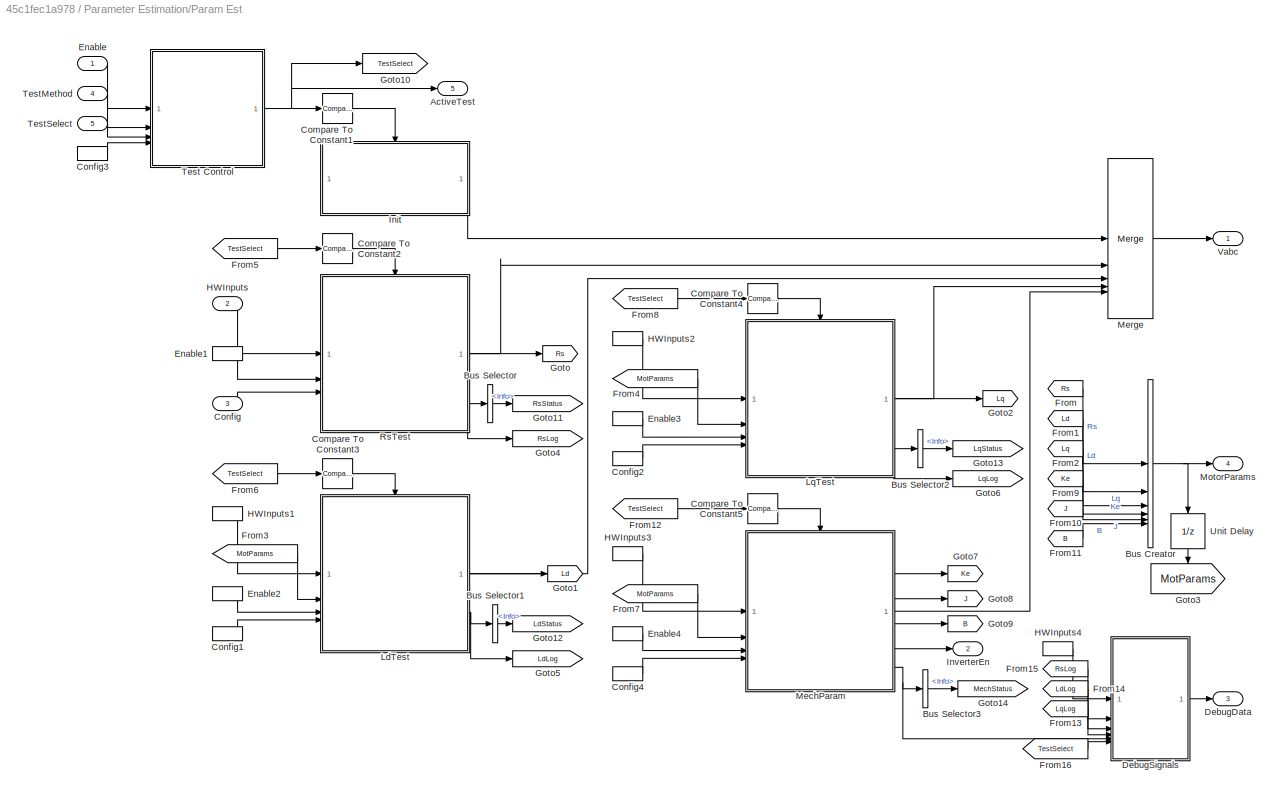
BLOCK [SubSystem] Parameter Estimation/Param Est
BLOCK [Outport] Parameter Estimation/Param Est/ActiveTest
  Port = 5
BLOCK [BusCreator] Parameter Estimation/Param Est/Bus Creator
  DisplayOption = bar
  InheritFromInputs = on
  Inputs = 6
BLOCK [BusSelector] Parameter Estimation/Param Est/Bus Selector
  OutputSignals = Info
BLOCK [BusSelector] Parameter Estimation/Param Est/Bus Selector1
  OutputSignals = Info
BLOCK [BusSelector] Parameter Estimation/Param Est/Bus Selector2
  OutputSignals = Info
BLOCK [BusSelector] Parameter Estimation/Param Est/Bus Selector3
  OutputSignals = Info
BLOCK [Reference] Parameter Estimation/Param Est/Compare To Constant1  REF=simulink/Logic and Bit
Operations/Compare
To Constant
  SourceBlock = simulink/Logic and Bit\nOperations/Compare\nTo Constant
  SourceType = Compare To Constant
BLOCK [Reference] Parameter Estimation/Param Est/Compare To Constant2  REF=simulink/Logic and Bit
Operations/Compare
To Constant
  SourceBlock = simulink/Logic and Bit\nOperations/Compare\nTo Constant
  SourceType = Compare To Constant
BLOCK [Reference] Parameter Estimation/Param Est/Compare To Constant3  REF=simulink/Logic and Bit
Operations/Compare
To Constant
  SourceBlock = simulink/Logic and Bit\nOperations/Compare\nTo Constant
  SourceType = Compare To Constant
BLOCK [Reference] Parameter Estimation/Param Est/Compare To Constant4  REF=simulink/Logic and Bit
Operations/Compare
To Constant
  SourceBlock = simulink/Logic and Bit\nOperations/Compare\nTo Constant
  SourceType = Compare To Constant
BLOCK [Reference] Parameter Estimation/Param Est/Compare To Constant5  REF=simulink/Logic and Bit
Operations/Compare
To Constant
  SourceBlock = simulink/Logic and Bit\nOperations/Compare\nTo Constant
  SourceType = Compare To Constant
BLOCK [Inport] Parameter Estimation/Param Est/Config
  Port = 3
BLOCK [InportShadow] Parameter Estimation/Param Est/Config1
  Port = 3
BLOCK [InportShadow] Parameter Estimation/Param Est/Config2
  Port = 3
BLOCK [InportShadow] Parameter Estimation/Param Est/Config3
  Port = 3
BLOCK [InportShadow] Parameter Estimation/Param Est/Config4
  Port = 3
BLOCK [Outport] Parameter Estimation/Param Est/DebugData
  Port = 3
BLOCK [SubSystem] Parameter Estimation/Param Est/DebugSignals
BLOCK [Inport] Parameter Estimation/Param Est/DebugSignals/ActiveTest
  Port = 6
BLOCK [BusSelector] Parameter Estimation/Param Est/DebugSignals/Bus Selector
  OutputSignals = Iabc,Vdc,Speed,Theta
BLOCK [Outport] Parameter Estimation/Param Est/DebugSignals/DebugData
BLOCK [Demux] Parameter Estimation/Param Est/DebugSignals/Demux
  Outputs = 2
BLOCK [Inport] Parameter Estimation/Param Est/DebugSignals/HWInpust
BLOCK [Inport] Parameter Estimation/Param Est/DebugSignals/LdLog
  Port = 3
BLOCK [Inport] Parameter Estimation/Param Est/DebugSignals/LqLog
  Port = 4
BLOCK [Inport] Parameter Estimation/Param Est/DebugSignals/MechLog
  Port = 5
BLOCK [Mux] Parameter Estimation/Param Est/DebugSignals/Mux
  DisplayOption = bar
  Inputs = 12
BLOCK [Inport] Parameter Estimation/Param Est/DebugSignals/RsLog
  Port = 2
BLOCK [Selector] Parameter Estimation/Param Est/DebugSignals/Selector
  IndexOptions = Index vector (dialog)
  Indices = [1 2]
  InputPortWidth = 3
  OutputSizes = 1
BLOCK [SubSystem] Parameter Estimation/Param Est/DebugSignals/Subsystem
BLOCK [Inport] Parameter Estimation/Param Est/DebugSignals/Subsystem/ActoveTest
BLOCK [Outport] Parameter Estimation/Param Est/DebugSignals/Subsystem/CoastDownTime
  Port = 7
BLOCK [Constant] Parameter Estimation/Param Est/DebugSignals/Subsystem/Constant7
  OutDataTypeStr = dataType
  Value = [0 0 0 0 0 0]
BLOCK [Demux] Parameter Estimation/Param Est/DebugSignals/Subsystem/Demux1
  Outputs = 6
BLOCK [Outport] Parameter Estimation/Param Est/DebugSignals/Subsystem/Id
BLOCK [Outport] Parameter Estimation/Param Est/DebugSignals/Subsystem/InjFreq
  Port = 5
BLOCK [Outport] Parameter Estimation/Param Est/DebugSignals/Subsystem/Iq
  Port = 2
BLOCK [Inport] Parameter Estimation/Param Est/DebugSignals/Subsystem/LdLog
  Port = 2
BLOCK [Inport] Parameter Estimation/Param Est/DebugSignals/Subsystem/LqLog
  Port = 3
BLOCK [Inport] Parameter Estimation/Param Est/DebugSignals/Subsystem/MechLog
  Port = 4
BLOCK [MultiPortSwitch] Parameter Estimation/Param Est/DebugSignals/Subsystem/Multiport Switch
  DataPortOrder = Zero-based contiguous
  InputSameDT = off
  Inputs = 5
  SaturateOnIntegerOverflow = off
  zeroidx = on
BLOCK [Outport] Parameter Estimation/Param Est/DebugSignals/Subsystem/PhaseDiff
  Port = 6
BLOCK [SubSystem] Parameter Estimation/Param Est/DebugSignals/Subsystem/Subsystem
BLOCK [BusSelector] Parameter Estimation/Param Est/DebugSignals/Subsystem/Subsystem/Bus Selector2
  OutputSignals = Id,Vd,InjFreq,PhaseDiff_rad
BLOCK [Constant] Parameter Estimation/Param Est/DebugSignals/Subsystem/Subsystem/Constant1
  OutDataTypeStr = dataType
  Value = 0
BLOCK [Gain] Parameter Estimation/Param Est/DebugSignals/Subsystem/Subsystem/Gain
  Gain = 180/pi
  OutDataTypeStr = Inherit: Same as input
  RndMeth = Simplest
BLOCK [Inport] Parameter Estimation/Param Est/DebugSignals/Subsystem/Subsystem/In1
BLOCK [Mux] Parameter Estimation/Param Est/DebugSignals/Subsystem/Subsystem/Mux1
  DisplayOption = bar
  Inputs = 6
BLOCK [Outport] Parameter Estimation/Param Est/DebugSignals/Subsystem/Subsystem/Out1
BLOCK [SubSystem] Parameter Estimation/Param Est/DebugSignals/Subsystem/Subsystem1
BLOCK [BusSelector] Parameter Estimation/Param Est/DebugSignals/Subsystem/Subsystem1/Bus Selector3
  OutputSignals = Iq,Vq,InjFreq,PhaseDiff_rad
BLOCK [Constant] Parameter Estimation/Param Est/DebugSignals/Subsystem/Subsystem1/Constant1
  OutDataTypeStr = dataType
  Value = 0
BLOCK [Gain] Parameter Estimation/Param Est/DebugSignals/Subsystem/Subsystem1/Gain
  Gain = 180/pi
  OutDataTypeStr = Inherit: Same as input
  RndMeth = Simplest
BLOCK [Inport] Parameter Estimation/Param Est/DebugSignals/Subsystem/Subsystem1/In1
BLOCK [Mux] Parameter Estimation/Param Est/DebugSignals/Subsystem/Subsystem1/Mux2
  DisplayOption = bar
  Inputs = 6
BLOCK [Outport] Parameter Estimation/Param Est/DebugSignals/Subsystem/Subsystem1/Out1
BLOCK [SubSystem] Parameter Estimation/Param Est/DebugSignals/Subsystem/Subsystem2
BLOCK [BusSelector] Parameter Estimation/Param Est/DebugSignals/Subsystem/Subsystem2/Bus Selector4
  OutputSignals = Idq,Vdq,CoastDownTime
BLOCK [Outport] Parameter Estimation/Param Est/DebugSignals/Subsystem/Subsystem2/CoastDownTime
  Port = 2
BLOCK [Constant] Parameter Estimation/Param Est/DebugSignals/Subsystem/Subsystem2/Constant1
  OutDataTypeStr = dataType
  Value = 0
BLOCK [Inport] Parameter Estimation/Param Est/DebugSignals/Subsystem/Subsystem2/In1
BLOCK [Mux] Parameter Estimation/Param Est/DebugSignals/Subsystem/Subsystem2/Mux3
  DisplayOption = bar
BLOCK [Outport] Parameter Estimation/Param Est/DebugSignals/Subsystem/Subsystem2/Out1
BLOCK [Outport] Parameter Estimation/Param Est/DebugSignals/Subsystem/Vd
  Port = 3
BLOCK [Outport] Parameter Estimation/Param Est/DebugSignals/Subsystem/Vq
  Port = 4
BLOCK [Terminator] Parameter Estimation/Param Est/DebugSignals/Terminator1
BLOCK [Inport] Parameter Estimation/Param Est/Enable
BLOCK [InportShadow] Parameter Estimation/Param Est/Enable1
BLOCK [InportShadow] Parameter Estimation/Param Est/Enable2
BLOCK [InportShadow] Parameter Estimation/Param Est/Enable3
BLOCK [InportShadow] Parameter Estimation/Param Est/Enable4
BLOCK [From] Parameter Estimation/Param Est/From
  GotoTag = Rs
BLOCK [From] Parameter Estimation/Param Est/From1
  GotoTag = Ld
BLOCK [From] Parameter Estimation/Param Est/From10
  GotoTag = J
BLOCK [From] Parameter Estimation/Param Est/From11
  GotoTag = B
BLOCK [From] Parameter Estimation/Param Est/From12
  GotoTag = TestSelect
BLOCK [From] Parameter Estimation/Param Est/From13
  GotoTag = LqLog
  TagVisibility = global
BLOCK [From] Parameter Estimation/Param Est/From14
  GotoTag = LdLog
  TagVisibility = global
BLOCK [From] Parameter Estimation/Param Est/From15
  GotoTag = RsLog
  TagVisibility = global
BLOCK [From] Parameter Estimation/Param Est/From16
  GotoTag = TestSelect
BLOCK [From] Parameter Estimation/Param Est/From2
  GotoTag = Lq
BLOCK [From] Parameter Estimation/Param Est/From3
  GotoTag = MotParams
BLOCK [From] Parameter Estimation/Param Est/From4
  GotoTag = MotParams
BLOCK [From] Parameter Estimation/Param Est/From5
  GotoTag = TestSelect
BLOCK [From] Parameter Estimation/Param Est/From6
  GotoTag = TestSelect
BLOCK [From] Parameter Estimation/Param Est/From7
  GotoTag = MotParams
BLOCK [From] Parameter Estimation/Param Est/From8
  GotoTag = TestSelect
BLOCK [From] Parameter Estimation/Param Est/From9
  GotoTag = Ke
BLOCK [Goto] Parameter Estimation/Param Est/Goto
  GotoTag = Rs
BLOCK [Goto] Parameter Estimation/Param Est/Goto1
  GotoTag = Ld
BLOCK [Goto] Parameter Estimation/Param Est/Goto10
  GotoTag = TestSelect
BLOCK [Goto] Parameter Estimation/Param Est/Goto11
  GotoTag = RsStatus
  TagVisibility = global
BLOCK [Goto] Parameter Estimation/Param Est/Goto12
  GotoTag = LdStatus
  TagVisibility = global
BLOCK [Goto] Parameter Estimation/Param Est/Goto13
  GotoTag = LqStatus
  TagVisibility = global
BLOCK [Goto] Parameter Estimation/Param Est/Goto14
  GotoTag = MechStatus
  TagVisibility = global
BLOCK [Goto] Parameter Estimation/Param Est/Goto2
  GotoTag = Lq
BLOCK [Goto] Parameter Estimation/Param Est/Goto3
  GotoTag = MotParams
  NameLocation = left
BLOCK [Goto] Parameter Estimation/Param Est/Goto4
  GotoTag = RsLog
  TagVisibility = global
BLOCK [Goto] Parameter Estimation/Param Est/Goto5
  GotoTag = LdLog
  TagVisibility = global
BLOCK [Goto] Parameter Estimation/Param Est/Goto6
  GotoTag = LqLog
  TagVisibility = global
BLOCK [Goto] Parameter Estimation/Param Est/Goto7
  GotoTag = Ke
BLOCK [Goto] Parameter Estimation/Param Est/Goto8
  GotoTag = J
BLOCK [Goto] Parameter Estimation/Param Est/Goto9
  GotoTag = B
BLOCK [Inport] Parameter Estimation/Param Est/HWInputs
  Port = 2
BLOCK [InportShadow] Parameter Estimation/Param Est/HWInputs1
  Port = 2
BLOCK [InportShadow] Parameter Estimation/Param Est/HWInputs2
  Port = 2
BLOCK [InportShadow] Parameter Estimation/Param Est/HWInputs3
  Port = 2
BLOCK [InportShadow] Parameter Estimation/Param Est/HWInputs4
  NameLocation = top
  Port = 2
BLOCK [SubSystem] Parameter Estimation/Param Est/Init
BLOCK [Constant] Parameter Estimation/Param Est/Init/Constant
  OutDataTypeStr = dataType
  Value = [0 0 0]
BLOCK [EnablePort] Parameter Estimation/Param Est/Init/Enable
BLOCK [Outport] Parameter Estimation/Param Est/Init/Out1
  InitialOutput = [0 0 0]
BLOCK [Outport] Parameter Estimation/Param Est/InverterEn
  Port = 2
BLOCK [SubSystem] Parameter Estimation/Param Est/LdTest
BLOCK [BusSelector] Parameter Estimation/Param Est/LdTest/Bus Selector
  OutputSignals = Iabc
BLOCK [BusSelector] Parameter Estimation/Param Est/LdTest/Bus Selector1
  OutputSignals = Rs
BLOCK [Inport] Parameter Estimation/Param Est/LdTest/Config
  Port = 4
BLOCK [EnablePort] Parameter Estimation/Param Est/LdTest/Enable
  StatesWhenEnabling = reset
BLOCK [Inport] Parameter Estimation/Param Est/LdTest/HWInputs
BLOCK [Outport] Parameter Estimation/Param Est/LdTest/Ld
  Port = 2
BLOCK [Reference] Parameter Estimation/Param Est/LdTest/Ld Estimator  REF=mcbpmsmparamestlib/Ld Estimator
  SourceBlock = mcbpmsmparamestlib/Ld Estimator
  SourceType = Ld Estimator
BLOCK [Outport] Parameter Estimation/Param Est/LdTest/Log
  Port = 3
BLOCK [Inport] Parameter Estimation/Param Est/LdTest/MotorParams
  Port = 2
BLOCK [Inport] Parameter Estimation/Param Est/LdTest/StartEst
  Port = 3
BLOCK [Outport] Parameter Estimation/Param Est/LdTest/Vabc
BLOCK [SubSystem] Parameter Estimation/Param Est/LqTest
BLOCK [BusSelector] Parameter Estimation/Param Est/LqTest/Bus Selector
  OutputSignals = Iabc
BLOCK [BusSelector] Parameter Estimation/Param Est/LqTest/Bus Selector1
  OutputSignals = Rs
BLOCK [Inport] Parameter Estimation/Param Est/LqTest/Config
  Port = 4
BLOCK [EnablePort] Parameter Estimation/Param Est/LqTest/Enable
  StatesWhenEnabling = reset
BLOCK [Inport] Parameter Estimation/Param Est/LqTest/HWInputs
BLOCK [Outport] Parameter Estimation/Param Est/LqTest/Log
  Port = 3
BLOCK [Outport] Parameter Estimation/Param Est/LqTest/Lq
  Port = 2
BLOCK [Reference] Parameter Estimation/Param Est/LqTest/Lq Estimator  REF=mcbpmsmparamestlib/Lq Estimator
  SourceBlock = mcbpmsmparamestlib/Lq Estimator
  SourceType = Lq Estimator
BLOCK [Inport] Parameter Estimation/Param Est/LqTest/MotorParams
  Port = 2
BLOCK [Inport] Parameter Estimation/Param Est/LqTest/StartEst
  Port = 3
BLOCK [Outport] Parameter Estimation/Param Est/LqTest/Vabc
BLOCK [SubSystem] Parameter Estimation/Param Est/MechParam
BLOCK [Outport] Parameter Estimation/Param Est/MechParam/B
  Port = 4
BLOCK [BusSelector] Parameter Estimation/Param Est/MechParam/Bus Selector
  OutputSignals = Rs,Ld
BLOCK [BusSelector] Parameter Estimation/Param Est/MechParam/Bus Selector3
  OutputSignals = Iabc,Vdc,Theta,Speed,EnClosedLoop
BLOCK [Inport] Parameter Estimation/Param Est/MechParam/Config
  Port = 4
BLOCK [EnablePort] Parameter Estimation/Param Est/MechParam/Enable
  StatesWhenEnabling = reset
BLOCK [Inport] Parameter Estimation/Param Est/MechParam/HWInputs
BLOCK [Outport] Parameter Estimation/Param Est/MechParam/InverterEn
  InitialOutput = 1
  OutputWhenDisabled = reset
  Port = 5
BLOCK [Outport] Parameter Estimation/Param Est/MechParam/J
  Port = 3
BLOCK [Outport] Parameter Estimation/Param Est/MechParam/Ke
  Port = 2
BLOCK [Outport] Parameter Estimation/Param Est/MechParam/Log
  Port = 6
BLOCK [Reference] Parameter Estimation/Param Est/MechParam/Mechanical Parameter Estimator  REF=mcbpmsmparamestlib/Mechanical Parameter Estimator
  SourceBlock = mcbpmsmparamestlib/Mechanical Parameter Estimator
  SourceType = PMSM Mechanical Parameter Estimator
BLOCK [Inport] Parameter Estimation/Param Est/MechParam/MotorParams
  Port = 2
BLOCK [Inport] Parameter Estimation/Param Est/MechParam/StartEst
  Port = 3
BLOCK [Outport] Parameter Estimation/Param Est/MechParam/Vabc
BLOCK [Merge] Parameter Estimation/Param Est/Merge
  Inputs = 5
BLOCK [Outport] Parameter Estimation/Param Est/MotorParams
  Port = 4
BLOCK [SubSystem] Parameter Estimation/Param Est/RsTest
BLOCK [BusSelector] Parameter Estimation/Param Est/RsTest/Bus Selector
  OutputSignals = Iabc,Vdc
BLOCK [Inport] Parameter Estimation/Param Est/RsTest/Config
  Port = 3
BLOCK [EnablePort] Parameter Estimation/Param Est/RsTest/Enable
  StatesWhenEnabling = reset
BLOCK [Inport] Parameter Estimation/Param Est/RsTest/HWInputs
BLOCK [Outport] Parameter Estimation/Param Est/RsTest/Log
  Port = 3
BLOCK [Outport] Parameter Estimation/Param Est/RsTest/Rs
  Port = 2
BLOCK [Reference] Parameter Estimation/Param Est/RsTest/Rs Estimator  REF=mcbpmsmparamestlib/Rs Estimator
  SourceBlock = mcbpmsmparamestlib/Rs Estimator
  SourceType = Rs Estimator
BLOCK [Inport] Parameter Estimation/Param Est/RsTest/StartEst
  Port = 2
BLOCK [Outport] Parameter Estimation/Param Est/RsTest/Vabc
BLOCK [SubSystem] Parameter Estimation/Param Est/Test Control
BLOCK [BusSelector] Parameter Estimation/Param Est/Test Control/Bus Selector
  OutputSignals = Ts
BLOCK [SubSystem] Parameter Estimation/Param Est/Test Control/Chart
  ErrorFcn = Stateflow.Translate.translate
  PermitHierarchicalResolution = ExplicitOnly
  SFBlockType = Chart
  TreatAsAtomicUnit = on
BLOCK [Demux] Parameter Estimation/Param Est/Test Control/Chart/ Demux 
  Outputs = 1
BLOCK [S-Function] Parameter Estimation/Param Est/Test Control/Chart/ SFunction 
  EnableBusSupport = off
  FunctionName = sf_sfun
  PortCounts = [7 2]
  SFcnIsStateOwnerBlock = off
  SFunctionDeploymentMode = off
  Tag = Stateflow S-Function 3
BLOCK [Terminator] Parameter Estimation/Param Est/Test Control/Chart/ Terminator 
BLOCK [Inport] Parameter Estimation/Param Est/Test Control/Chart/EnPrev
  Port = 2
BLOCK [Inport] Parameter Estimation/Param Est/Test Control/Chart/EnableIn
BLOCK [Inport] Parameter Estimation/Param Est/Test Control/Chart/LdStatus
  Port = 4
BLOCK [Inport] Parameter Estimation/Param Est/Test Control/Chart/LqStatus
  Port = 5
BLOCK [Inport] Parameter Estimation/Param Est/Test Control/Chart/MechStatus
  Port = 6
BLOCK [Inport] Parameter Estimation/Param Est/Test Control/Chart/RsStatus
  Port = 3
BLOCK [Outport] Parameter Estimation/Param Est/Test Control/Chart/TestNum
BLOCK [Inport] Parameter Estimation/Param Est/Test Control/Chart/Ts
  Port = 7
BLOCK [Inport] Parameter Estimation/Param Est/Test Control/Config
  Port = 4
BLOCK [DataTypeConversion] Parameter Estimation/Param Est/Test Control/Data Type Conversion
  OutDataTypeStr = Enum: mcbPMSMParamTests
  RndMeth = Simplest
  SaturateOnIntegerOverflow = off
BLOCK [DataTypeConversion] Parameter Estimation/Param Est/Test Control/Data Type Conversion1
  OutDataTypeStr = uint16
  RndMeth = Simplest
  SaturateOnIntegerOverflow = off
BLOCK [Inport] Parameter Estimation/Param Est/Test Control/Enable
BLOCK [From] Parameter Estimation/Param Est/Test Control/From14
  GotoTag = LdStatus
  TagVisibility = global
BLOCK [From] Parameter Estimation/Param Est/Test Control/From15
  GotoTag = LqStatus
  TagVisibility = global
BLOCK [From] Parameter Estimation/Param Est/Test Control/From16
  GotoTag = MechStatus
  TagVisibility = global
BLOCK [From] Parameter Estimation/Param Est/Test Control/From5
  GotoTag = RsStatus
  TagVisibility = global
BLOCK [Switch] Parameter Estimation/Param Est/Test Control/Switch
  Criteria = u2 > Threshold
  InputSameDT = off
  SaturateOnIntegerOverflow = off
BLOCK [Inport] Parameter Estimation/Param Est/Test Control/TestMethod
  Port = 2
BLOCK [Inport] Parameter Estimation/Param Est/Test Control/TestNum
  Port = 3
BLOCK [Outport] Parameter Estimation/Param Est/Test Control/TestSelect
BLOCK [UnitDelay] Parameter Estimation/Param Est/Test Control/Unit Delay
  HasFrameUpgradeWarning = on
  SampleTime = -1
BLOCK [UnitDelay] Parameter Estimation/Param Est/Test Control/Unit Delay1
  HasFrameUpgradeWarning = on
  SampleTime = -1
BLOCK [UnitDelay] Parameter Estimation/Param Est/Test Control/Unit Delay2
  HasFrameUpgradeWarning = on
  SampleTime = -1
BLOCK [UnitDelay] Parameter Estimation/Param Est/Test Control/Unit Delay3
  HasFrameUpgradeWarning = on
  SampleTime = -1
BLOCK [UnitDelay] Parameter Estimation/Param Est/Test Control/Unit Delay4
  HasFrameUpgradeWarning = on
  SampleTime = -1
BLOCK [Inport] Parameter Estimation/Param Est/TestMethod
  Port = 4
BLOCK [Inport] Parameter Estimation/Param Est/TestSelect
  Port = 5
BLOCK [UnitDelay] Parameter Estimation/Param Est/Unit Delay
  HasFrameUpgradeWarning = on
  NameLocation = left
  SampleTime = -1
BLOCK [Outport] Parameter Estimation/Param Est/Vabc
BLOCK [Inport] Parameter Estimation/SimFb
  Port = 6
BLOCK [Inport] Parameter Estimation/TestMethod
  Port = 2
BLOCK [Inport] Parameter Estimation/TestSelect
  Port = 3
BLOCK [TriggerPort] Parameter Estimation/Trigger
  PortDimensions = 1
  StatesWhenEnabling = held
  TriggerType = function-call
  VariantControl = Variant
BLOCK [UnitDelay] Parameter Estimation/Unit Delay
  HasFrameUpgradeWarning = on
  SampleTime = -1
BLOCK [SubSystem] Parameter Estimation/Variant Subsystem
  Variant = on
  VariantControlMode = sim codegen switching
BLOCK [SubSystem] Parameter Estimation/Variant Subsystem/Codegen
  VariantControl = (codegen)
BLOCK [Ground] Parameter Estimation/Variant Subsystem/Codegen/Ground
BLOCK [Inport] Parameter Estimation/Variant Subsystem/Codegen/In1
BLOCK [Outport] Parameter Estimation/Variant Subsystem/Codegen/Out1
BLOCK [Terminator] Parameter Estimation/Variant Subsystem/Codegen/Terminator
BLOCK [Inport] Parameter Estimation/Variant Subsystem/In1
BLOCK [Outport] Parameter Estimation/Variant Subsystem/Out1
BLOCK [SubSystem] Parameter Estimation/Variant Subsystem/Sim
  VariantControl = (sim)
BLOCK [BusSelector] Parameter Estimation/Variant Subsystem/Sim/Bus Selector
  OutputSignals = Rs,Ld,Lq,Ke,B
BLOCK [Inport] Parameter Estimation/Variant Subsystem/Sim/In1
BLOCK [Mux] Parameter Estimation/Variant Subsystem/Sim/Mux
  DisplayOption = bar
  Inputs = 5
BLOCK [Outport] Parameter Estimation/Variant Subsystem/Sim/Out1
BLOCK [SliderSwitchBlock] ParameterEstimation
  LabelPosition = Hide
BLOCK [RateTransition] Rate Transition
  Deterministic = off
BLOCK [RateTransition] Rate Transition1
  Deterministic = off
BLOCK [RateTransition] Rate Transition2
  Deterministic = off
BLOCK [RateTransition] Rate Transition3
  Deterministic = off
BLOCK [RateTransition] Rate Transition4
  Deterministic = off
BLOCK [RateTransition] Rate Transition5
  Deterministic = off
BLOCK [RateTransition] Rate Transition6
  Deterministic = off
BLOCK [RateTransition] Rate Transition7
  Deterministic = off
  OutPortSampleTime = 0.1
BLOCK [RateTransition] Rate Transition8
  Deterministic = off
BLOCK [SubSystem] Serial Receive
  RTWMemSecFuncExecute = code_ramfuncs
  SystemSampleTime = 1e-3
BLOCK [Outport] Serial Receive/Config
  Port = 5
BLOCK [Outport] Serial Receive/DebugSelect
  Port = 4
BLOCK [Outport] Serial Receive/Enable
BLOCK [TriggerPort] Serial Receive/SCI_Rx_INT
  StatesWhenEnabling = held
  TriggerType = function-call
  VariantControl = Variant
BLOCK [Outport] Serial Receive/TestMethod
  Port = 2
BLOCK [Outport] Serial Receive/TestSelect
  Port = 3
BLOCK [SubSystem] Serial Receive/Variant Subsystem
  Variant = on
  VariantControlMode = sim codegen switching
BLOCK [SubSystem] Serial Receive/Variant Subsystem/Codegen
  VariantControl = (codegen)
BLOCK [Outport] Serial Receive/Variant Subsystem/Codegen/Config
  Port = 5
BLOCK [Outport] Serial Receive/Variant Subsystem/Codegen/DebugSelect
  Port = 4
BLOCK [Demux] Serial Receive/Variant Subsystem/Codegen/Demux
  Outputs = 2
BLOCK [Outport] Serial Receive/Variant Subsystem/Codegen/Enable
BLOCK [Reference] Serial Receive/Variant Subsystem/Codegen/SCI Receive  REF=c280xlib/SCI Receive
  SourceBlock = c280xlib/SCI Receive
  SourceType = C28x SCI Receive
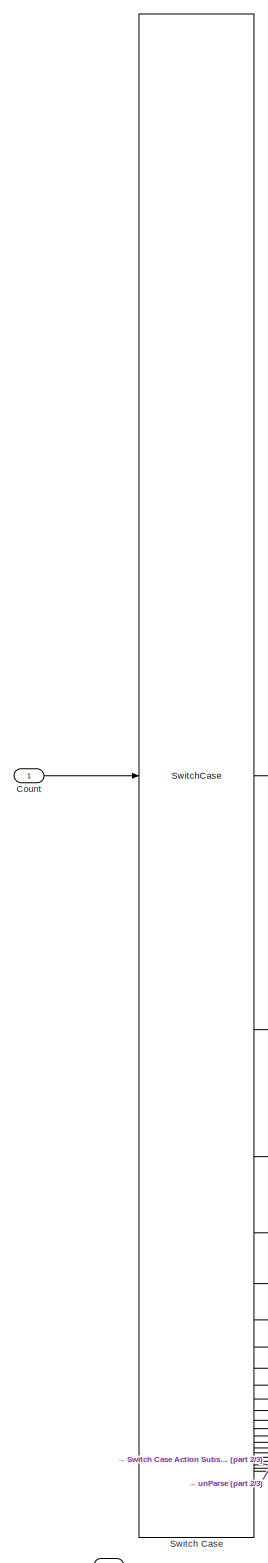
[diagram: Serial Receive/Variant Subsystem/Codegen/Subsystem - part 1/3, left side, full height]
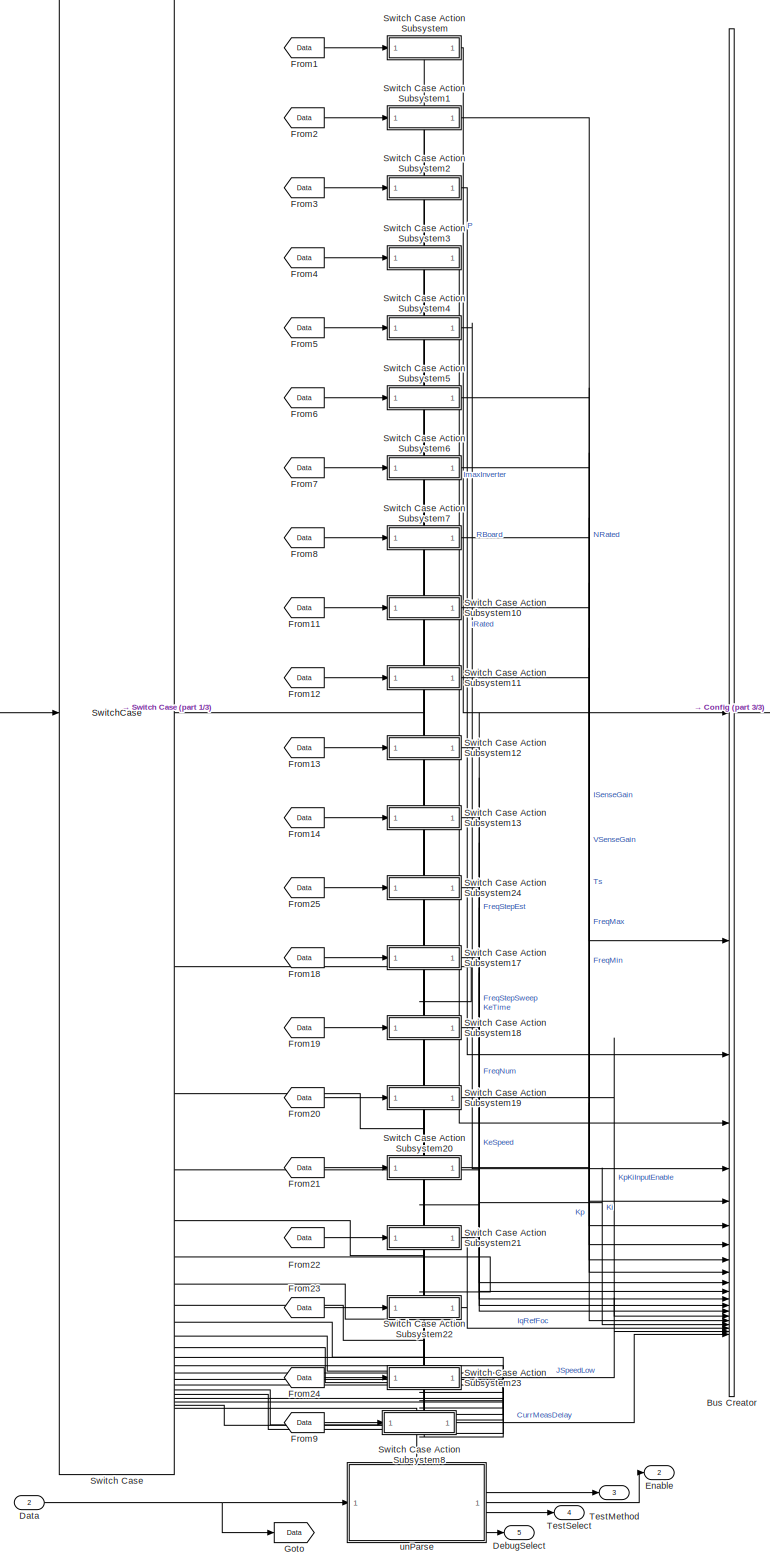
[diagram: Serial Receive/Variant Subsystem/Codegen/Subsystem - part 2/3, most of the canvas]
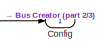
[diagram: Serial Receive/Variant Subsystem/Codegen/Subsystem - part 3/3, middle right region]
BLOCK [SubSystem] Serial Receive/Variant Subsystem/Codegen/Subsystem
BLOCK [BusCreator] Serial Receive/Variant Subsystem/Codegen/Subsystem/Bus Creator
  DisplayOption = bar
  InheritFromInputs = on
  Inputs = 21
BLOCK [Outport] Serial Receive/Variant Subsystem/Codegen/Subsystem/Config
BLOCK [Inport] Serial Receive/Variant Subsystem/Codegen/Subsystem/Count
BLOCK [Inport] Serial Receive/Variant Subsystem/Codegen/Subsystem/Data
  Port = 2
BLOCK [Outport] Serial Receive/Variant Subsystem/Codegen/Subsystem/DebugSelect
  Port = 5
BLOCK [Outport] Serial Receive/Variant Subsystem/Codegen/Subsystem/Enable
  Port = 2
BLOCK [From] Serial Receive/Variant Subsystem/Codegen/Subsystem/From1
  GotoTag = Data
BLOCK [From] Serial Receive/Variant Subsystem/Codegen/Subsystem/From11
  GotoTag = Data
BLOCK [From] Serial Receive/Variant Subsystem/Codegen/Subsystem/From12
  GotoTag = Data
BLOCK [From] Serial Receive/Variant Subsystem/Codegen/Subsystem/From13
  GotoTag = Data
BLOCK [From] Serial Receive/Variant Subsystem/Codegen/Subsystem/From14
  GotoTag = Data
BLOCK [From] Serial Receive/Variant Subsystem/Codegen/Subsystem/From18
  GotoTag = Data
BLOCK [From] Serial Receive/Variant Subsystem/Codegen/Subsystem/From19
  GotoTag = Data
BLOCK [From] Serial Receive/Variant Subsystem/Codegen/Subsystem/From2
  GotoTag = Data
BLOCK [From] Serial Receive/Variant Subsystem/Codegen/Subsystem/From20
  GotoTag = Data
BLOCK [From] Serial Receive/Variant Subsystem/Codegen/Subsystem/From21
  GotoTag = Data
BLOCK [From] Serial Receive/Variant Subsystem/Codegen/Subsystem/From22
  GotoTag = Data
BLOCK [From] Serial Receive/Variant Subsystem/Codegen/Subsystem/From23
  GotoTag = Data
BLOCK [From] Serial Receive/Variant Subsystem/Codegen/Subsystem/From24
  GotoTag = Data
BLOCK [From] Serial Receive/Variant Subsystem/Codegen/Subsystem/From25
  GotoTag = Data
BLOCK [From] Serial Receive/Variant Subsystem/Codegen/Subsystem/From3
  GotoTag = Data
BLOCK [From] Serial Receive/Variant Subsystem/Codegen/Subsystem/From4
  GotoTag = Data
BLOCK [From] Serial Receive/Variant Subsystem/Codegen/Subsystem/From5
  GotoTag = Data
BLOCK [From] Serial Receive/Variant Subsystem/Codegen/Subsystem/From6
  GotoTag = Data
BLOCK [From] Serial Receive/Variant Subsystem/Codegen/Subsystem/From7
  GotoTag = Data
BLOCK [From] Serial Receive/Variant Subsystem/Codegen/Subsystem/From8
  GotoTag = Data
BLOCK [From] Serial Receive/Variant Subsystem/Codegen/Subsystem/From9
  GotoTag = Data
BLOCK [Goto] Serial Receive/Variant Subsystem/Codegen/Subsystem/Goto
  GotoTag = Data
BLOCK [SwitchCase] Serial Receive/Variant Subsystem/Codegen/Subsystem/Switch Case
  CaseConditions = {1 2 3 4 5 6 7 8 9 10 11 12 13 14 15 16 17 18 19 20 21 22}
  ShowDefaultCase = off
BLOCK [SubSystem] Serial Receive/Variant Subsystem/Codegen/Subsystem/Switch Case Action Subsystem
  TreatAsAtomicUnit = on
BLOCK [ActionPort] Serial Receive/Variant Subsystem/Codegen/Subsystem/Switch Case Action Subsystem/Action Port
BLOCK [Inport] Serial Receive/Variant Subsystem/Codegen/Subsystem/Switch Case Action Subsystem/In1
BLOCK [Outport] Serial Receive/Variant Subsystem/Codegen/Subsystem/Switch Case Action Subsystem/Out1
BLOCK [SubSystem] Serial Receive/Variant Subsystem/Codegen/Subsystem/Switch Case Action Subsystem1
  TreatAsAtomicUnit = on
BLOCK [ActionPort] Serial Receive/Variant Subsystem/Codegen/Subsystem/Switch Case Action Subsystem1/Action Port
BLOCK [Inport] Serial Receive/Variant Subsystem/Codegen/Subsystem/Switch Case Action Subsystem1/In1
BLOCK [Outport] Serial Receive/Variant Subsystem/Codegen/Subsystem/Switch Case Action Subsystem1/Out1
BLOCK [SubSystem] Serial Receive/Variant Subsystem/Codegen/Subsystem/Switch Case Action Subsystem10
  TreatAsAtomicUnit = on
BLOCK [ActionPort] Serial Receive/Variant Subsystem/Codegen/Subsystem/Switch Case Action Subsystem10/Action Port
BLOCK [Inport] Serial Receive/Variant Subsystem/Codegen/Subsystem/Switch Case Action Subsystem10/In1
BLOCK [Outport] Serial Receive/Variant Subsystem/Codegen/Subsystem/Switch Case Action Subsystem10/Out1
BLOCK [SubSystem] Serial Receive/Variant Subsystem/Codegen/Subsystem/Switch Case Action Subsystem11
  TreatAsAtomicUnit = on
BLOCK [ActionPort] Serial Receive/Variant Subsystem/Codegen/Subsystem/Switch Case Action Subsystem11/Action Port
BLOCK [Inport] Serial Receive/Variant Subsystem/Codegen/Subsystem/Switch Case Action Subsystem11/In1
BLOCK [Outport] Serial Receive/Variant Subsystem/Codegen/Subsystem/Switch Case Action Subsystem11/Out1
BLOCK [SubSystem] Serial Receive/Variant Subsystem/Codegen/Subsystem/Switch Case Action Subsystem12
  TreatAsAtomicUnit = on
BLOCK [ActionPort] Serial Receive/Variant Subsystem/Codegen/Subsystem/Switch Case Action Subsystem12/Action Port
BLOCK [Inport] Serial Receive/Variant Subsystem/Codegen/Subsystem/Switch Case Action Subsystem12/In1
BLOCK [Outport] Serial Receive/Variant Subsystem/Codegen/Subsystem/Switch Case Action Subsystem12/Out1
BLOCK [SubSystem] Serial Receive/Variant Subsystem/Codegen/Subsystem/Switch Case Action Subsystem13
  TreatAsAtomicUnit = on
BLOCK [ActionPort] Serial Receive/Variant Subsystem/Codegen/Subsystem/Switch Case Action Subsystem13/Action Port
BLOCK [Inport] Serial Receive/Variant Subsystem/Codegen/Subsystem/Switch Case Action Subsystem13/In1
BLOCK [Outport] Serial Receive/Variant Subsystem/Codegen/Subsystem/Switch Case Action Subsystem13/Out1
BLOCK [SubSystem] Serial Receive/Variant Subsystem/Codegen/Subsystem/Switch Case Action Subsystem17
  TreatAsAtomicUnit = on
BLOCK [ActionPort] Serial Receive/Variant Subsystem/Codegen/Subsystem/Switch Case Action Subsystem17/Action Port
BLOCK [Inport] Serial Receive/Variant Subsystem/Codegen/Subsystem/Switch Case Action Subsystem17/In1
BLOCK [Outport] Serial Receive/Variant Subsystem/Codegen/Subsystem/Switch Case Action Subsystem17/Out1
BLOCK [SubSystem] Serial Receive/Variant Subsystem/Codegen/Subsystem/Switch Case Action Subsystem18
  TreatAsAtomicUnit = on
BLOCK [ActionPort] Serial Receive/Variant Subsystem/Codegen/Subsystem/Switch Case Action Subsystem18/Action Port
BLOCK [Inport] Serial Receive/Variant Subsystem/Codegen/Subsystem/Switch Case Action Subsystem18/In1
BLOCK [Outport] Serial Receive/Variant Subsystem/Codegen/Subsystem/Switch Case Action Subsystem18/Out1
BLOCK [SubSystem] Serial Receive/Variant Subsystem/Codegen/Subsystem/Switch Case Action Subsystem19
  TreatAsAtomicUnit = on
BLOCK [ActionPort] Serial Receive/Variant Subsystem/Codegen/Subsystem/Switch Case Action Subsystem19/Action Port
BLOCK [Inport] Serial Receive/Variant Subsystem/Codegen/Subsystem/Switch Case Action Subsystem19/In1
BLOCK [Outport] Serial Receive/Variant Subsystem/Codegen/Subsystem/Switch Case Action Subsystem19/Out1
BLOCK [SubSystem] Serial Receive/Variant Subsystem/Codegen/Subsystem/Switch Case Action Subsystem2
  TreatAsAtomicUnit = on
BLOCK [ActionPort] Serial Receive/Variant Subsystem/Codegen/Subsystem/Switch Case Action Subsystem2/Action Port
BLOCK [Inport] Serial Receive/Variant Subsystem/Codegen/Subsystem/Switch Case Action Subsystem2/In1
BLOCK [Outport] Serial Receive/Variant Subsystem/Codegen/Subsystem/Switch Case Action Subsystem2/Out1
BLOCK [SubSystem] Serial Receive/Variant Subsystem/Codegen/Subsystem/Switch Case Action Subsystem20
  TreatAsAtomicUnit = on
BLOCK [ActionPort] Serial Receive/Variant Subsystem/Codegen/Subsystem/Switch Case Action Subsystem20/Action Port
BLOCK [Inport] Serial Receive/Variant Subsystem/Codegen/Subsystem/Switch Case Action Subsystem20/In1
BLOCK [Outport] Serial Receive/Variant Subsystem/Codegen/Subsystem/Switch Case Action Subsystem20/Out1
BLOCK [SubSystem] Serial Receive/Variant Subsystem/Codegen/Subsystem/Switch Case Action Subsystem21
  TreatAsAtomicUnit = on
BLOCK [ActionPort] Serial Receive/Variant Subsystem/Codegen/Subsystem/Switch Case Action Subsystem21/Action Port
BLOCK [Inport] Serial Receive/Variant Subsystem/Codegen/Subsystem/Switch Case Action Subsystem21/In1
BLOCK [Outport] Serial Receive/Variant Subsystem/Codegen/Subsystem/Switch Case Action Subsystem21/Out1
BLOCK [SubSystem] Serial Receive/Variant Subsystem/Codegen/Subsystem/Switch Case Action Subsystem22
  TreatAsAtomicUnit = on
BLOCK [ActionPort] Serial Receive/Variant Subsystem/Codegen/Subsystem/Switch Case Action Subsystem22/Action Port
BLOCK [Inport] Serial Receive/Variant Subsystem/Codegen/Subsystem/Switch Case Action Subsystem22/In1
BLOCK [Outport] Serial Receive/Variant Subsystem/Codegen/Subsystem/Switch Case Action Subsystem22/Out1
BLOCK [SubSystem] Serial Receive/Variant Subsystem/Codegen/Subsystem/Switch Case Action Subsystem23
  TreatAsAtomicUnit = on
BLOCK [ActionPort] Serial Receive/Variant Subsystem/Codegen/Subsystem/Switch Case Action Subsystem23/Action Port
BLOCK [Inport] Serial Receive/Variant Subsystem/Codegen/Subsystem/Switch Case Action Subsystem23/In1
BLOCK [Outport] Serial Receive/Variant Subsystem/Codegen/Subsystem/Switch Case Action Subsystem23/Out1
BLOCK [SubSystem] Serial Receive/Variant Subsystem/Codegen/Subsystem/Switch Case Action Subsystem24
  TreatAsAtomicUnit = on
BLOCK [ActionPort] Serial Receive/Variant Subsystem/Codegen/Subsystem/Switch Case Action Subsystem24/Action Port
BLOCK [Inport] Serial Receive/Variant Subsystem/Codegen/Subsystem/Switch Case Action Subsystem24/In1
BLOCK [Outport] Serial Receive/Variant Subsystem/Codegen/Subsystem/Switch Case Action Subsystem24/Out1
BLOCK [SubSystem] Serial Receive/Variant Subsystem/Codegen/Subsystem/Switch Case Action Subsystem3
  TreatAsAtomicUnit = on
BLOCK [ActionPort] Serial Receive/Variant Subsystem/Codegen/Subsystem/Switch Case Action Subsystem3/Action Port
BLOCK [Inport] Serial Receive/Variant Subsystem/Codegen/Subsystem/Switch Case Action Subsystem3/In1
BLOCK [Outport] Serial Receive/Variant Subsystem/Codegen/Subsystem/Switch Case Action Subsystem3/Out1
BLOCK [SubSystem] Serial Receive/Variant Subsystem/Codegen/Subsystem/Switch Case Action Subsystem4
  TreatAsAtomicUnit = on
BLOCK [ActionPort] Serial Receive/Variant Subsystem/Codegen/Subsystem/Switch Case Action Subsystem4/Action Port
BLOCK [Inport] Serial Receive/Variant Subsystem/Codegen/Subsystem/Switch Case Action Subsystem4/In1
BLOCK [Outport] Serial Receive/Variant Subsystem/Codegen/Subsystem/Switch Case Action Subsystem4/Out1
BLOCK [SubSystem] Serial Receive/Variant Subsystem/Codegen/Subsystem/Switch Case Action Subsystem5
  TreatAsAtomicUnit = on
BLOCK [ActionPort] Serial Receive/Variant Subsystem/Codegen/Subsystem/Switch Case Action Subsystem5/Action Port
BLOCK [Inport] Serial Receive/Variant Subsystem/Codegen/Subsystem/Switch Case Action Subsystem5/In1
BLOCK [Outport] Serial Receive/Variant Subsystem/Codegen/Subsystem/Switch Case Action Subsystem5/Out1
BLOCK [SubSystem] Serial Receive/Variant Subsystem/Codegen/Subsystem/Switch Case Action Subsystem6
  TreatAsAtomicUnit = on
BLOCK [ActionPort] Serial Receive/Variant Subsystem/Codegen/Subsystem/Switch Case Action Subsystem6/Action Port
BLOCK [Inport] Serial Receive/Variant Subsystem/Codegen/Subsystem/Switch Case Action Subsystem6/In1
BLOCK [Outport] Serial Receive/Variant Subsystem/Codegen/Subsystem/Switch Case Action Subsystem6/Out1
BLOCK [SubSystem] Serial Receive/Variant Subsystem/Codegen/Subsystem/Switch Case Action Subsystem7
  TreatAsAtomicUnit = on
BLOCK [ActionPort] Serial Receive/Variant Subsystem/Codegen/Subsystem/Switch Case Action Subsystem7/Action Port
BLOCK [Inport] Serial Receive/Variant Subsystem/Codegen/Subsystem/Switch Case Action Subsystem7/In1
BLOCK [Outport] Serial Receive/Variant Subsystem/Codegen/Subsystem/Switch Case Action Subsystem7/Out1
BLOCK [SubSystem] Serial Receive/Variant Subsystem/Codegen/Subsystem/Switch Case Action Subsystem8
  TreatAsAtomicUnit = on
BLOCK [ActionPort] Serial Receive/Variant Subsystem/Codegen/Subsystem/Switch Case Action Subsystem8/Action Port
  ActionPortLabel = case [ 21 ]:
BLOCK [Inport] Serial Receive/Variant Subsystem/Codegen/Subsystem/Switch Case Action Subsystem8/In1
BLOCK [Outport] Serial Receive/Variant Subsystem/Codegen/Subsystem/Switch Case Action Subsystem8/Out1
BLOCK [Outport] Serial Receive/Variant Subsystem/Codegen/Subsystem/TestMethod
  Port = 3
BLOCK [Outport] Serial Receive/Variant Subsystem/Codegen/Subsystem/TestSelect
  Port = 4
BLOCK [SubSystem] Serial Receive/Variant Subsystem/Codegen/Subsystem/unParse
BLOCK [ActionPort] Serial Receive/Variant Subsystem/Codegen/Subsystem/unParse/Action Port
  ActionPortLabel = case [ 22 ]:
BLOCK [Reference] Serial Receive/Variant Subsystem/Codegen/Subsystem/unParse/Bitwise Operator  REF=simulink/Logic and Bit
Operations/Bitwise
Operator
  SourceBlock = simulink/Logic and Bit\nOperations/Bitwise\nOperator
  SourceType = Bitwise Operator
BLOCK [Reference] Serial Receive/Variant Subsystem/Codegen/Subsystem/unParse/Bitwise Operator1  REF=simulink/Logic and Bit
Operations/Bitwise
Operator
  SourceBlock = simulink/Logic and Bit\nOperations/Bitwise\nOperator
  SourceType = Bitwise Operator
BLOCK [Reference] Serial Receive/Variant Subsystem/Codegen/Subsystem/unParse/Bitwise Operator2  REF=simulink/Logic and Bit
Operations/Bitwise
Operator
  SourceBlock = simulink/Logic and Bit\nOperations/Bitwise\nOperator
  SourceType = Bitwise Operator
BLOCK [Reference] Serial Receive/Variant Subsystem/Codegen/Subsystem/unParse/Bitwise Operator3  REF=simulink/Logic and Bit
Operations/Bitwise
Operator
  SourceBlock = simulink/Logic and Bit\nOperations/Bitwise\nOperator
  SourceType = Bitwise Operator
BLOCK [Inport] Serial Receive/Variant Subsystem/Codegen/Subsystem/unParse/Data
BLOCK [DataTypeConversion] Serial Receive/Variant Subsystem/Codegen/Subsystem/unParse/Data Type Conversion1
  OutDataTypeStr = boolean
  RndMeth = Simplest
  SaturateOnIntegerOverflow = off
BLOCK [DataTypeConversion] Serial Receive/Variant Subsystem/Codegen/Subsystem/unParse/Data Type Conversion2
  OutDataTypeStr = uint16
  RndMeth = Simplest
  SaturateOnIntegerOverflow = off
BLOCK [DataTypeConversion] Serial Receive/Variant Subsystem/Codegen/Subsystem/unParse/Data Type Conversion3
  OutDataTypeStr = boolean
  RndMeth = Simplest
  SaturateOnIntegerOverflow = off
BLOCK [DataTypeConversion] Serial Receive/Variant Subsystem/Codegen/Subsystem/unParse/Data Type Conversion4
  NameLocation = left
  OutDataTypeStr = uint16
  RndMeth = Simplest
  SaturateOnIntegerOverflow = off
BLOCK [DataTypeConversion] Serial Receive/Variant Subsystem/Codegen/Subsystem/unParse/Data Type Conversion5
  NameLocation = left
  OutDataTypeStr = uint16
  RndMeth = Simplest
  SaturateOnIntegerOverflow = off
BLOCK [Outport] Serial Receive/Variant Subsystem/Codegen/Subsystem/unParse/DebugSelect
  Port = 4
BLOCK [Outport] Serial Receive/Variant Subsystem/Codegen/Subsystem/unParse/EnableFromHost
BLOCK [ArithShift] Serial Receive/Variant Subsystem/Codegen/Subsystem/unParse/Shift Arithmetic1
  BitShiftNumber = 4
  InputPortMap = u0
BLOCK [ArithShift] Serial Receive/Variant Subsystem/Codegen/Subsystem/unParse/Shift Arithmetic2
  BitShiftNumber = 1
  InputPortMap = u0
BLOCK [ArithShift] Serial Receive/Variant Subsystem/Codegen/Subsystem/unParse/Shift Arithmetic3
  BitShiftNumber = 8
  InputPortMap = u0
BLOCK [Outport] Serial Receive/Variant Subsystem/Codegen/Subsystem/unParse/TestMethod
  Port = 2
BLOCK [Outport] Serial Receive/Variant Subsystem/Codegen/Subsystem/unParse/TestSelect
  Port = 3
BLOCK [Outport] Serial Receive/Variant Subsystem/Codegen/TestMethod
  Port = 2
BLOCK [Outport] Serial Receive/Variant Subsystem/Codegen/TestSelect
  Port = 3
BLOCK [Outport] Serial Receive/Variant Subsystem/Config
  Port = 5
BLOCK [Outport] Serial Receive/Variant Subsystem/DebugSelect
  Port = 4
BLOCK [Outport] Serial Receive/Variant Subsystem/Enable
BLOCK [SubSystem] Serial Receive/Variant Subsystem/Sim
  VariantControl = (sim)
BLOCK [Outport] Serial Receive/Variant Subsystem/Sim/Config
  Port = 5
BLOCK [Constant] Serial Receive/Variant Subsystem/Sim/DebugDataSelect
  OutDataTypeStr = uint16
BLOCK [Outport] Serial Receive/Variant Subsystem/Sim/DebugSelect
  Port = 4
BLOCK [Outport] Serial Receive/Variant Subsystem/Sim/Enable
BLOCK [Reference] Serial Receive/Variant Subsystem/Sim/Parameter Estimation Configurator  REF=mcbpmsmparamestlib/Parameter Estimation Configurator
  SourceBlock = mcbpmsmparamestlib/Parameter Estimation Configurator
  SourceType = PMSM Parameter Estimation Configurator
BLOCK [Constant] Serial Receive/Variant Subsystem/Sim/Test Enable
  OutDataTypeStr = Inherit: Inherit via back propagation
BLOCK [Constant] Serial Receive/Variant Subsystem/Sim/Test Method
  OutDataTypeStr = Inherit: Inherit via back propagation
BLOCK [Constant] Serial Receive/Variant Subsystem/Sim/Test Select
  OutDataTypeStr = uint16
  Value = 0
BLOCK [Outport] Serial Receive/Variant Subsystem/Sim/TestMethod
  Port = 2
BLOCK [Outport] Serial Receive/Variant Subsystem/Sim/TestSelect
  Port = 3
BLOCK [Outport] Serial Receive/Variant Subsystem/TestMethod
  Port = 2
BLOCK [Outport] Serial Receive/Variant Subsystem/TestSelect
  Port = 3
BLOCK [SliderSwitchBlock] Test Method
  LabelPosition = Hide
BLOCK [ComboBox] Test Select
  LabelPosition = Hide
  SelectedLabel = No Test
ANNOTATION (root): Note: This example requires a TI F28379D LaunchPad with a BOOSTXL-DRV8305 booster pack connected to a PMSM Motor with QEP Sensor
ANNOTATION (root): <copyright redacted>
ANNOTATION (root): Alternatively, use the 'Motor Parameter Estimator' app to estimate PMSM parameters on hardware with ease through a unified interface. The app is available under 'Apps > Control Systems' in the Simulink toolstrip.
ANNOTATION (root): Steps 1. Edit motor and inverter parameters . 2. Simulate the model. Use User Control panel to control parameter estimation tests. 3. When in Manual mode, run test in sequence and do not skip any tests. 3. Use Offset computation model to find out position offset. 4. Update offset in Init script to variable ' motor.PositionOffset ' 5. Build, Deploy & Start 6. Use host model to control the hardware ...<+33ch>
ANNOTATION (root): Rs Ld Lq Ke B
ANNOTATION (root): PMSM Parameter Estimation
ANNOTATION (root): User Controls
ANNOTATION Hardware Init/Variant Subsystem/Code Generation: Enable ADC offset calibration only when motor is not loaded and not rotating due to external factors
ANNOTATION Hardware Init/Variant Subsystem/Code Generation: System Outputs
ANNOTATION Hardware Init/Variant Subsystem/Code Generation: for BoostXL-DRV8305 connected to LaunchXL-28379D
ANNOTATION Hardware Init/Variant Subsystem/Code Generation/DRV Enable: Enable inverter
ANNOTATION Heartbeat LED: Heartbeat LED 1HZ
ANNOTATION Inverter and Motor/Inverter and Motor/Sim/Motor: Note : The PMSM block does not simulate magentic effects of the rotor when Vd is applied. In order to simulate locking of the rotor at zero position, PMSM block is used in zero speed input during Rs, Ld and Lq estimation. Do not use simulation to determine the Vd value required to align the rotor at zero position.
ANNOTATION Inverter and Motor/Inverter and Motor/Sim/Sensor_Measurements: Delays
ANNOTATION Inverter and Motor/Inverter and Motor/Sim/Sensor_Measurements: Scaling
ANNOTATION Parameter Estimation/Current Voltage Monitoring/Current and Voltage Monitoring: As a ratio of inverter supply voltage
ANNOTATION Parameter Estimation/Current Voltage Monitoring/Current and Voltage Monitoring: As a ratio of motor rated current
ANNOTATION Parameter Estimation/Output HW Drivers/PWM Drivers/Codegen: System Outputs
ANNOTATION Parameter Estimation/Output HW Drivers/PWM Drivers/Codegen: for inverter connected with LaunchXL-28379D
ANNOTATION Parameter Estimation/Output HW Drivers/SCI Drivers/Codegen/Data_Logging: Fast Serial Data Monitoring (32-bit)
LINE Demux:1 -> Parameter Estimation:trigger
LINE Demux:2 -> Serial Receive:trigger
LINE Hardware Init/6PWM_Mode:1 -> Hardware Init/Mux:1
LINE Hardware Init/ADC_Gain_Setting:1 -> Hardware Init/Mux:2
LINE Hardware Init/Mux:1 -> Hardware Init/Variant Subsystem:1
NET Hardware Init/Variant Subsystem/Code Generation/ADC Calib Enable:1 -> Hardware Init/Variant Subsystem/Code Generation/Calculate ADC Offset :enable, Hardware Init/Variant Subsystem/Code Generation/NOT:1
NET Hardware Init/Variant Subsystem/Code Generation/Calculate ADC Offset /Constant1:1 -> Hardware Init/Variant Subsystem/Code Generation/Calculate ADC Offset /If1:2, Hardware Init/Variant Subsystem/Code Generation/Calculate ADC Offset /If:2
NET Hardware Init/Variant Subsystem/Code Generation/Calculate ADC Offset /Constant2:1 -> Hardware Init/Variant Subsystem/Code Generation/Calculate ADC Offset /If1:3, Hardware Init/Variant Subsystem/Code Generation/Calculate ADC Offset /If:3
NET Hardware Init/Variant Subsystem/Code Generation/Calculate ADC Offset /Constant:1 -> Hardware Init/Variant Subsystem/Code Generation/Calculate ADC Offset /Divide1:2, Hardware Init/Variant Subsystem/Code Generation/Calculate ADC Offset /Divide:2
NET Hardware Init/Variant Subsystem/Code Generation/Calculate ADC Offset /Divide1:1 -> Hardware Init/Variant Subsystem/Code Generation/Calculate ADC Offset /If Action Subsystem2:1, Hardware Init/Variant Subsystem/Code Generation/Calculate ADC Offset /If1:1
NET Hardware Init/Variant Subsystem/Code Generation/Calculate ADC Offset /Divide:1 -> Hardware Init/Variant Subsystem/Code Generation/Calculate ADC Offset /If Action Subsystem:1, Hardware Init/Variant Subsystem/Code Generation/Calculate ADC Offset /If:1
LINE Hardware Init/Variant Subsystem/Code Generation/Calculate ADC Offset /For Iterator Subsystem/ADC_A_IN0:1 -> Hardware Init/Variant Subsystem/Code Generation/Calculate ADC Offset /For Iterator Subsystem/If Action Subsystem:1
LINE Hardware Init/Variant Subsystem/Code Generation/Calculate ADC Offset /For Iterator Subsystem/ADC_B_IN0:1 -> Hardware Init/Variant Subsystem/Code Generation/Calculate ADC Offset /For Iterator Subsystem/If Action Subsystem:2
LINE Hardware Init/Variant Subsystem/Code Generation/Calculate ADC Offset /For Iterator Subsystem/For Iterator:1 -> Hardware Init/Variant Subsystem/Code Generation/Calculate ADC Offset /For Iterator Subsystem/If:1
LINE Hardware Init/Variant Subsystem/Code Generation/Calculate ADC Offset /For Iterator Subsystem/If Action Subsystem/In1:1 -> Hardware Init/Variant Subsystem/Code Generation/Calculate ADC Offset /For Iterator Subsystem/If Action Subsystem/Sum:1
LINE Hardware Init/Variant Subsystem/Code Generation/Calculate ADC Offset /For Iterator Subsystem/If Action Subsystem/In2:1 -> Hardware Init/Variant Subsystem/Code Generation/Calculate ADC Offset /For Iterator Subsystem/If Action Subsystem/Sum1:1
LINE Hardware Init/Variant Subsystem/Code Generation/Calculate ADC Offset /For Iterator Subsystem/If Action Subsystem/Memory1:1 -> Hardware Init/Variant Subsystem/Code Generation/Calculate ADC Offset /For Iterator Subsystem/If Action Subsystem/Sum1:2
LINE Hardware Init/Variant Subsystem/Code Generation/Calculate ADC Offset /For Iterator Subsystem/If Action Subsystem/Memory:1 -> Hardware Init/Variant Subsystem/Code Generation/Calculate ADC Offset /For Iterator Subsystem/If Action Subsystem/Sum:2
NET Hardware Init/Variant Subsystem/Code Generation/Calculate ADC Offset /For Iterator Subsystem/If Action Subsystem/Sum1:1 -> Hardware Init/Variant Subsystem/Code Generation/Calculate ADC Offset /For Iterator Subsystem/If Action Subsystem/Memory1:1, Hardware Init/Variant Subsystem/Code Generation/Calculate ADC Offset /For Iterator Subsystem/If Action Subsystem/Out2:1
NET Hardware Init/Variant Subsystem/Code Generation/Calculate ADC Offset /For Iterator Subsystem/If Action Subsystem/Sum:1 -> Hardware Init/Variant Subsystem/Code Generation/Calculate ADC Offset /For Iterator Subsystem/If Action Subsystem/Memory:1, Hardware Init/Variant Subsystem/Code Generation/Calculate ADC Offset /For Iterator Subsystem/If Action Subsystem/Out1:1
LINE Hardware Init/Variant Subsystem/Code Generation/Calculate ADC Offset /For Iterator Subsystem/If Action Subsystem:1 -> Hardware Init/Variant Subsystem/Code Generation/Calculate ADC Offset /For Iterator Subsystem/Out1:1
LINE Hardware Init/Variant Subsystem/Code Generation/Calculate ADC Offset /For Iterator Subsystem/If Action Subsystem:2 -> Hardware Init/Variant Subsystem/Code Generation/Calculate ADC Offset /For Iterator Subsystem/Out2:1
LINE Hardware Init/Variant Subsystem/Code Generation/Calculate ADC Offset /For Iterator Subsystem/If:1 -> Hardware Init/Variant Subsystem/Code Generation/Calculate ADC Offset /For Iterator Subsystem/If Action Subsystem:ifaction
LINE Hardware Init/Variant Subsystem/Code Generation/Calculate ADC Offset /For Iterator Subsystem:1 -> Hardware Init/Variant Subsystem/Code Generation/Calculate ADC Offset /Divide:1
LINE Hardware Init/Variant Subsystem/Code Generation/Calculate ADC Offset /For Iterator Subsystem:2 -> Hardware Init/Variant Subsystem/Code Generation/Calculate ADC Offset /Divide1:1
LINE Hardware Init/Variant Subsystem/Code Generation/Calculate ADC Offset /If Action Subsystem/In1:1 -> Hardware Init/Variant Subsystem/Code Generation/Calculate ADC Offset /If Action Subsystem/Data Store Write1:1
LINE Hardware Init/Variant Subsystem/Code Generation/Calculate ADC Offset /If Action Subsystem1/Constant:1 -> Hardware Init/Variant Subsystem/Code Generation/Calculate ADC Offset /If Action Subsystem1/Data Store Write1:1
LINE Hardware Init/Variant Subsystem/Code Generation/Calculate ADC Offset /If Action Subsystem2/In1:1 -> Hardware Init/Variant Subsystem/Code Generation/Calculate ADC Offset /If Action Subsystem2/Data Store Write2:1
LINE Hardware Init/Variant Subsystem/Code Generation/Calculate ADC Offset /If Action Subsystem3/Constant1:1 -> Hardware Init/Variant Subsystem/Code Generation/Calculate ADC Offset /If Action Subsystem3/Data Store Write2:1
LINE Hardware Init/Variant Subsystem/Code Generation/Calculate ADC Offset /If1:1 -> Hardware Init/Variant Subsystem/Code Generation/Calculate ADC Offset /If Action Subsystem2:ifaction
LINE Hardware Init/Variant Subsystem/Code Generation/Calculate ADC Offset /If1:2 -> Hardware Init/Variant Subsystem/Code Generation/Calculate ADC Offset /If Action Subsystem3:ifaction
LINE Hardware Init/Variant Subsystem/Code Generation/Calculate ADC Offset /If:1 -> Hardware Init/Variant Subsystem/Code Generation/Calculate ADC Offset /If Action Subsystem:ifaction
LINE Hardware Init/Variant Subsystem/Code Generation/Calculate ADC Offset /If:2 -> Hardware Init/Variant Subsystem/Code Generation/Calculate ADC Offset /If Action Subsystem1:ifaction
LINE Hardware Init/Variant Subsystem/Code Generation/DRV Enable/ADC Gain setting/Demux:1 -> Hardware Init/Variant Subsystem/Code Generation/DRV Enable/ADC Gain setting/SPI Master Transfer:1
LINE Hardware Init/Variant Subsystem/Code Generation/DRV Enable/ADC Gain setting/Demux:2 -> Hardware Init/Variant Subsystem/Code Generation/DRV Enable/ADC Gain setting/SPI Master Transfer1:1
LINE Hardware Init/Variant Subsystem/Code Generation/DRV Enable/ADC Gain setting/In1:1 -> Hardware Init/Variant Subsystem/Code Generation/DRV Enable/ADC Gain setting/Demux:1
LINE Hardware Init/Variant Subsystem/Code Generation/DRV Enable/ADC Gain setting/SPI Master Transfer1:1 -> Hardware Init/Variant Subsystem/Code Generation/DRV Enable/ADC Gain setting/Display1:1
LINE Hardware Init/Variant Subsystem/Code Generation/DRV Enable/ADC Gain setting/SPI Master Transfer:1 -> Hardware Init/Variant Subsystem/Code Generation/DRV Enable/ADC Gain setting/Display:1
NET Hardware Init/Variant Subsystem/Code Generation/DRV Enable/Constant:1 -> Hardware Init/Variant Subsystem/Code Generation/DRV Enable/ADC Gain setting:enable, Hardware Init/Variant Subsystem/Code Generation/DRV Enable/Switch:2
LINE Hardware Init/Variant Subsystem/Code Generation/DRV Enable/In:1 -> Hardware Init/Variant Subsystem/Code Generation/DRV Enable/ADC Gain setting:1
NET Hardware Init/Variant Subsystem/Code Generation/DRV Enable/Inverter Enable:1 -> Hardware Init/Variant Subsystem/Code Generation/DRV Enable/NOT:1, Hardware Init/Variant Subsystem/Code Generation/DRV Enable/Switch:1
LINE Hardware Init/Variant Subsystem/Code Generation/DRV Enable/NOT:1 -> Hardware Init/Variant Subsystem/Code Generation/DRV Enable/Switch:3
LINE Hardware Init/Variant Subsystem/Code Generation/DRV Enable/RunTimeMeasurement:1 -> Hardware Init/Variant Subsystem/Code Generation/DRV Enable/Digital Output1:1
LINE Hardware Init/Variant Subsystem/Code Generation/DRV Enable/Switch:1 -> Hardware Init/Variant Subsystem/Code Generation/DRV Enable/Digital Output:1
LINE Hardware Init/Variant Subsystem/Code Generation/Default ADC Offset/Constant1:1 -> Hardware Init/Variant Subsystem/Code Generation/Default ADC Offset/Data Store Write2:1
LINE Hardware Init/Variant Subsystem/Code Generation/Default ADC Offset/Constant:1 -> Hardware Init/Variant Subsystem/Code Generation/Default ADC Offset/Data Store Write1:1
LINE Hardware Init/Variant Subsystem/Code Generation/In1:1 -> Hardware Init/Variant Subsystem/Code Generation/DRV Enable:1
LINE Hardware Init/Variant Subsystem/Code Generation/NOT:1 -> Hardware Init/Variant Subsystem/Code Generation/Default ADC Offset:enable
LINE Hardware Init/Variant Subsystem/Simulation/Constant1:1 -> Hardware Init/Variant Subsystem/Simulation/Data Store Write2:1
LINE Hardware Init/Variant Subsystem/Simulation/Constant:1 -> Hardware Init/Variant Subsystem/Simulation/Data Store Write1:1
LINE Hardware Init/Variant Subsystem/Simulation/In1:1 -> Hardware Init/Variant Subsystem/Simulation/Terminator:1
LINE Hardware Interrupt/Hardware Interrupt/Codegen/HWI_ADCB1_INT:1 -> Hardware Interrupt/Hardware Interrupt/Codegen/Mux:1
LINE Hardware Interrupt/Hardware Interrupt/Codegen/HWI_SCIA_RX_INT:1 -> Hardware Interrupt/Hardware Interrupt/Codegen/Mux:2
LINE Hardware Interrupt/Hardware Interrupt/Codegen/Mux:1 -> Hardware Interrupt/Hardware Interrupt/Codegen/HW_INT:1
LINE Hardware Interrupt/Hardware Interrupt/Sim/ADCINT1:1 -> Hardware Interrupt/Hardware Interrupt/Sim/Mux:1
LINE Hardware Interrupt/Hardware Interrupt/Sim/Mux:1 -> Hardware Interrupt/Hardware Interrupt/Sim/HW_INT:1
LINE Hardware Interrupt/Hardware Interrupt/Sim/SCI_Rx_INT:1 -> Hardware Interrupt/Hardware Interrupt/Sim/Mux:2
LINE Hardware Interrupt/Hardware Interrupt:1 -> Hardware Interrupt/HW_INT:1
LINE Hardware Interrupt:1 -> Demux:1
LINE Heartbeat LED/Heartbeat LED/Code generation/In1:1 -> Heartbeat LED/Heartbeat LED/Code generation/Digital Output:1
LINE Heartbeat LED/Heartbeat LED/Simulation/In1:1 -> Heartbeat LED/Heartbeat LED/Simulation/Simulation_Terminator:1
LINE Heartbeat LED/RED_LED:1 -> Heartbeat LED/Heartbeat LED:1
LINE Inverter and Motor/ActiveTest:1 -> Inverter and Motor/Inverter and Motor:2
LINE Inverter and Motor/Inverter and Motor/Codegeneration/ActiveTest:1 -> Inverter and Motor/Inverter and Motor/Codegeneration/Terminator1:1
LINE Inverter and Motor/Inverter and Motor/Codegeneration/DutyCycles:1 -> Inverter and Motor/Inverter and Motor/Codegeneration/Terminator:1
LINE Inverter and Motor/Inverter and Motor/Codegeneration/Ground:1 -> Inverter and Motor/Inverter and Motor/Codegeneration/SimFb:1
LINE Inverter and Motor/Inverter and Motor/Sim/ActiveTest:1 -> Inverter and Motor/Inverter and Motor/Sim/Motor:2
LINE Inverter and Motor/Inverter and Motor/Sim/DutyCycles:1 -> Inverter and Motor/Inverter and Motor/Sim/Inverter:1
LINE Inverter and Motor/Inverter and Motor/Sim/Inverter/Average-Value Inverter:1 -> Inverter and Motor/Inverter and Motor/Sim/Inverter/Vabc:1
LINE Inverter and Motor/Inverter and Motor/Sim/Inverter/Constant2:1 -> Inverter and Motor/Inverter and Motor/Sim/Inverter/Average-Value Inverter:2
LINE Inverter and Motor/Inverter and Motor/Sim/Inverter/Data Type Conversion1:1 -> Inverter and Motor/Inverter and Motor/Sim/Inverter/Rate Transition3:1
LINE Inverter and Motor/Inverter and Motor/Sim/Inverter/Duty_abc:1 -> Inverter and Motor/Inverter and Motor/Sim/Inverter/Data Type Conversion1:1
LINE Inverter and Motor/Inverter and Motor/Sim/Inverter/Rate Transition3:1 -> Inverter and Motor/Inverter and Motor/Sim/Inverter/Average-Value Inverter:1
LINE Inverter and Motor/Inverter and Motor/Sim/Inverter:1 -> Inverter and Motor/Inverter and Motor/Sim/Rate Transition:1
LINE Inverter and Motor/Inverter and Motor/Sim/Motor/ActiveTest1:1 -> Inverter and Motor/Inverter and Motor/Sim/Motor/Switch1:2
LINE Inverter and Motor/Inverter and Motor/Sim/Motor/ActiveTest:1 -> Inverter and Motor/Inverter and Motor/Sim/Motor/Switch:2
LINE Inverter and Motor/Inverter and Motor/Sim/Motor/Constant1:1 -> Inverter and Motor/Inverter and Motor/Sim/Motor/Interior PMSM with locked rotor (Rs, Ld, Lq):1
LINE Inverter and Motor/Inverter and Motor/Sim/Motor/Constant:1 -> Inverter and Motor/Inverter and Motor/Sim/Motor/Interior PMSM with free rotor (Ke, J, B):1
LINE Inverter and Motor/Inverter and Motor/Sim/Motor/Interior PMSM with free rotor (Ke, J, B):1 -> Inverter and Motor/Inverter and Motor/Sim/Motor/Switch:1
LINE Inverter and Motor/Inverter and Motor/Sim/Motor/Interior PMSM with free rotor (Ke, J, B):2 -> Inverter and Motor/Inverter and Motor/Sim/Motor/Switch1:1
LINE Inverter and Motor/Inverter and Motor/Sim/Motor/Interior PMSM with free rotor (Ke, J, B):3 -> Inverter and Motor/Inverter and Motor/Sim/Motor/Terminator:1
LINE Inverter and Motor/Inverter and Motor/Sim/Motor/Interior PMSM with locked rotor (Rs, Ld, Lq):1 -> Inverter and Motor/Inverter and Motor/Sim/Motor/Switch:3
LINE Inverter and Motor/Inverter and Motor/Sim/Motor/Interior PMSM with locked rotor (Rs, Ld, Lq):2 -> Inverter and Motor/Inverter and Motor/Sim/Motor/Switch1:3
LINE Inverter and Motor/Inverter and Motor/Sim/Motor/Interior PMSM with locked rotor (Rs, Ld, Lq):3 -> Inverter and Motor/Inverter and Motor/Sim/Motor/Terminator1:1
LINE Inverter and Motor/Inverter and Motor/Sim/Motor/PhaseVolt1:1 -> Inverter and Motor/Inverter and Motor/Sim/Motor/Interior PMSM with locked rotor (Rs, Ld, Lq):2
LINE Inverter and Motor/Inverter and Motor/Sim/Motor/PhaseVolt:1 -> Inverter and Motor/Inverter and Motor/Sim/Motor/Interior PMSM with free rotor (Ke, J, B):2
LINE Inverter and Motor/Inverter and Motor/Sim/Motor/Switch1:1 -> Inverter and Motor/Inverter and Motor/Sim/Motor/Iabc:1
LINE Inverter and Motor/Inverter and Motor/Sim/Motor/Switch:1 -> Inverter and Motor/Inverter and Motor/Sim/Motor/Info:1
LINE Inverter and Motor/Inverter and Motor/Sim/Motor:1 -> Inverter and Motor/Inverter and Motor/Sim/RT3:1
LINE Inverter and Motor/Inverter and Motor/Sim/Motor:2 -> Inverter and Motor/Inverter and Motor/Sim/RT1:1
LINE Inverter and Motor/Inverter and Motor/Sim/RT1:1 -> Inverter and Motor/Inverter and Motor/Sim/Sensor_Measurements:2
LINE Inverter and Motor/Inverter and Motor/Sim/RT3:1 -> Inverter and Motor/Inverter and Motor/Sim/Sensor_Measurements:1
LINE Inverter and Motor/Inverter and Motor/Sim/Rate Transition:1 -> Inverter and Motor/Inverter and Motor/Sim/Motor:1
LINE Inverter and Motor/Inverter and Motor/Sim/Sensor_Measurements/Add Offset:1 -> Inverter and Motor/Inverter and Motor/Sim/Sensor_Measurements/Saturate at inverter Vref:1
LINE Inverter and Motor/Inverter and Motor/Sim/Sensor_Measurements/Add1:1 -> Inverter and Motor/Inverter and Motor/Sim/Sensor_Measurements/Wrap:1
LINE Inverter and Motor/Inverter and Motor/Sim/Sensor_Measurements/Bus Selector:1 -> Inverter and Motor/Inverter and Motor/Sim/Sensor_Measurements/Data Type Conversion2:1
LINE Inverter and Motor/Inverter and Motor/Sim/Sensor_Measurements/Data Type Conversion2:1 -> Inverter and Motor/Inverter and Motor/Sim/Sensor_Measurements/Delay2:1
LINE Inverter and Motor/Inverter and Motor/Sim/Sensor_Measurements/Data Type Conversion4:1 -> Inverter and Motor/Inverter and Motor/Sim/Sensor_Measurements/Delay1:1
LINE Inverter and Motor/Inverter and Motor/Sim/Sensor_Measurements/Data Type Conversion6:1 -> Inverter and Motor/Inverter and Motor/Sim/Sensor_Measurements/Mux1:3
LINE Inverter and Motor/Inverter and Motor/Sim/Sensor_Measurements/Data Type Conversion7:1 -> Inverter and Motor/Inverter and Motor/Sim/Sensor_Measurements/Mux1:2
LINE Inverter and Motor/Inverter and Motor/Sim/Sensor_Measurements/Delay1:1 -> Inverter and Motor/Inverter and Motor/Sim/Sensor_Measurements/Selector:1
LINE Inverter and Motor/Inverter and Motor/Sim/Sensor_Measurements/Delay2:1 -> Inverter and Motor/Inverter and Motor/Sim/Sensor_Measurements/Get_PU :1
LINE Inverter and Motor/Inverter and Motor/Sim/Sensor_Measurements/Get ADC Count:1 -> Inverter and Motor/Inverter and Motor/Sim/Sensor_Measurements/Mux1:1
LINE Inverter and Motor/Inverter and Motor/Sim/Sensor_Measurements/Get Current Sense Voltage:1 -> Inverter and Motor/Inverter and Motor/Sim/Sensor_Measurements/Add Offset:1
LINE Inverter and Motor/Inverter and Motor/Sim/Sensor_Measurements/Get_PU /Constant2:1 -> Inverter and Motor/Inverter and Motor/Sim/Sensor_Measurements/Get_PU /Mod:2
LINE Inverter and Motor/Inverter and Motor/Sim/Sensor_Measurements/Get_PU /Get_PU:1 -> Inverter and Motor/Inverter and Motor/Sim/Sensor_Measurements/Get_PU /PU:1
LINE Inverter and Motor/Inverter and Motor/Sim/Sensor_Measurements/Get_PU /Mod:1 -> Inverter and Motor/Inverter and Motor/Sim/Sensor_Measurements/Get_PU /Get_PU:1
LINE Inverter and Motor/Inverter and Motor/Sim/Sensor_Measurements/Get_PU /rad:1 -> Inverter and Motor/Inverter and Motor/Sim/Sensor_Measurements/Get_PU /Mod:1
LINE Inverter and Motor/Inverter and Motor/Sim/Sensor_Measurements/Get_PU :1 -> Inverter and Motor/Inverter and Motor/Sim/Sensor_Measurements/Add1:1
LINE Inverter and Motor/Inverter and Motor/Sim/Sensor_Measurements/Get_QEP_Counts:1 -> Inverter and Motor/Inverter and Motor/Sim/Sensor_Measurements/Data Type Conversion7:1
LINE Inverter and Motor/Inverter and Motor/Sim/Sensor_Measurements/IndexOffset in PU:1 -> Inverter and Motor/Inverter and Motor/Sim/Sensor_Measurements/Add1:2
LINE Inverter and Motor/Inverter and Motor/Sim/Sensor_Measurements/Info:1 -> Inverter and Motor/Inverter and Motor/Sim/Sensor_Measurements/Bus Selector:1
LINE Inverter and Motor/Inverter and Motor/Sim/Sensor_Measurements/Mux1:1 -> Inverter and Motor/Inverter and Motor/Sim/Sensor_Measurements/Sim_fb:1
LINE Inverter and Motor/Inverter and Motor/Sim/Sensor_Measurements/Offset voltage:1 -> Inverter and Motor/Inverter and Motor/Sim/Sensor_Measurements/Add Offset:2
LINE Inverter and Motor/Inverter and Motor/Sim/Sensor_Measurements/PhaseCurr:1 -> Inverter and Motor/Inverter and Motor/Sim/Sensor_Measurements/Data Type Conversion4:1
LINE Inverter and Motor/Inverter and Motor/Sim/Sensor_Measurements/Saturate at ADC Vref:1 -> Inverter and Motor/Inverter and Motor/Sim/Sensor_Measurements/Get ADC Count:1
LINE Inverter and Motor/Inverter and Motor/Sim/Sensor_Measurements/Saturate at inverter Vref:1 -> Inverter and Motor/Inverter and Motor/Sim/Sensor_Measurements/Saturate at ADC Vref:1
LINE Inverter and Motor/Inverter and Motor/Sim/Sensor_Measurements/Selector:1 -> Inverter and Motor/Inverter and Motor/Sim/Sensor_Measurements/Get Current Sense Voltage:1
LINE Inverter and Motor/Inverter and Motor/Sim/Sensor_Measurements/Switch to closed loop :1 -> Inverter and Motor/Inverter and Motor/Sim/Sensor_Measurements/Data Type Conversion6:1
LINE Inverter and Motor/Inverter and Motor/Sim/Sensor_Measurements/Wrap/Constant2:1 -> Inverter and Motor/Inverter and Motor/Sim/Sensor_Measurements/Wrap/Mod:2
LINE Inverter and Motor/Inverter and Motor/Sim/Sensor_Measurements/Wrap/Mod:1 -> Inverter and Motor/Inverter and Motor/Sim/Sensor_Measurements/Wrap/out:1
LINE Inverter and Motor/Inverter and Motor/Sim/Sensor_Measurements/Wrap/in:1 -> Inverter and Motor/Inverter and Motor/Sim/Sensor_Measurements/Wrap/Mod:1
LINE Inverter and Motor/Inverter and Motor/Sim/Sensor_Measurements/Wrap:1 -> Inverter and Motor/Inverter and Motor/Sim/Sensor_Measurements/Get_QEP_Counts:1
LINE Inverter and Motor/Inverter and Motor/Sim/Sensor_Measurements/~1.65V in ADC counts:1 -> Inverter and Motor/Inverter and Motor/Sim/Sensor_Measurements/Offset voltage:1
LINE Inverter and Motor/Inverter and Motor/Sim/Sensor_Measurements:1 -> Inverter and Motor/Inverter and Motor/Sim/SimFb:1
LINE Inverter and Motor/Inverter and Motor:1 -> Inverter and Motor/Sim_fb:1
LINE Inverter and Motor/PWMDutyCycles:1 -> Inverter and Motor/Inverter and Motor:1
LINE Inverter and Motor:1 -> Rate Transition6:1
LINE Parameter Estimation/AND1:1 -> Parameter Estimation/Current Voltage Monitoring:enable
LINE Parameter Estimation/AND:1 -> Parameter Estimation/Goto:1
LINE Parameter Estimation/Config1:1 -> Parameter Estimation/Param Est:3
LINE Parameter Estimation/Config2:1 -> Parameter Estimation/Current Voltage Monitoring:2
LINE Parameter Estimation/Config:1 -> Parameter Estimation/Input HW Drivers:2
LINE Parameter Estimation/Constant1:1 -> Parameter Estimation/Current Voltage Monitoring:4
LINE Parameter Estimation/Constant:1 -> Parameter Estimation/Current Voltage Monitoring:3
LINE Parameter Estimation/Current Voltage Monitoring/Config:1 -> Parameter Estimation/Current Voltage Monitoring/Current and Voltage Monitoring:2
LINE Parameter Estimation/Current Voltage Monitoring/Current and Voltage Monitoring/Abs:1 -> Parameter Estimation/Current Voltage Monitoring/Current and Voltage Monitoring/Demux:1
LINE Parameter Estimation/Current Voltage Monitoring/Current and Voltage Monitoring/Bus Selector1:1 -> Parameter Estimation/Current Voltage Monitoring/Current and Voltage Monitoring/Less Than:1
LINE Parameter Estimation/Current Voltage Monitoring/Current and Voltage Monitoring/Bus Selector2:1 -> Parameter Estimation/Current Voltage Monitoring/Current and Voltage Monitoring/Divide:2
LINE Parameter Estimation/Current Voltage Monitoring/Current and Voltage Monitoring/Bus Selector:1 -> Parameter Estimation/Current Voltage Monitoring/Current and Voltage Monitoring/Demux1:1
LINE Parameter Estimation/Current Voltage Monitoring/Current and Voltage Monitoring/Config:1 -> Parameter Estimation/Current Voltage Monitoring/Current and Voltage Monitoring/Bus Selector2:1
NET Parameter Estimation/Current Voltage Monitoring/Current and Voltage Monitoring/CurrentLimit:1 -> Parameter Estimation/Current Voltage Monitoring/Current and Voltage Monitoring/GreaterThan1:2, Parameter Estimation/Current Voltage Monitoring/Current and Voltage Monitoring/GreaterThan:2
LINE Parameter Estimation/Current Voltage Monitoring/Current and Voltage Monitoring/Demux1:1 -> Parameter Estimation/Current Voltage Monitoring/Current and Voltage Monitoring/Mux:1
LINE Parameter Estimation/Current Voltage Monitoring/Current and Voltage Monitoring/Demux1:2 -> Parameter Estimation/Current Voltage Monitoring/Current and Voltage Monitoring/Mux:2
LINE Parameter Estimation/Current Voltage Monitoring/Current and Voltage Monitoring/Demux1:3 -> Parameter Estimation/Current Voltage Monitoring/Current and Voltage Monitoring/Terminator:1
LINE Parameter Estimation/Current Voltage Monitoring/Current and Voltage Monitoring/Demux:1 -> Parameter Estimation/Current Voltage Monitoring/Current and Voltage Monitoring/GreaterThan:1
LINE Parameter Estimation/Current Voltage Monitoring/Current and Voltage Monitoring/Demux:2 -> Parameter Estimation/Current Voltage Monitoring/Current and Voltage Monitoring/GreaterThan1:1
LINE Parameter Estimation/Current Voltage Monitoring/Current and Voltage Monitoring/Divide:1 -> Parameter Estimation/Current Voltage Monitoring/Current and Voltage Monitoring/IIR Filter:1
LINE Parameter Estimation/Current Voltage Monitoring/Current and Voltage Monitoring/Gain:1 -> Parameter Estimation/Current Voltage Monitoring/Current and Voltage Monitoring/Less Than:2
LINE Parameter Estimation/Current Voltage Monitoring/Current and Voltage Monitoring/GreaterThan1:1 -> Parameter Estimation/Current Voltage Monitoring/Current and Voltage Monitoring/OR:2
LINE Parameter Estimation/Current Voltage Monitoring/Current and Voltage Monitoring/GreaterThan:1 -> Parameter Estimation/Current Voltage Monitoring/Current and Voltage Monitoring/OR:1
LINE Parameter Estimation/Current Voltage Monitoring/Current and Voltage Monitoring/HWInputs1:1 -> Parameter Estimation/Current Voltage Monitoring/Current and Voltage Monitoring/Bus Selector1:1
LINE Parameter Estimation/Current Voltage Monitoring/Current and Voltage Monitoring/HWInputs:1 -> Parameter Estimation/Current Voltage Monitoring/Current and Voltage Monitoring/Bus Selector:1
LINE Parameter Estimation/Current Voltage Monitoring/Current and Voltage Monitoring/IIR Filter:1 -> Parameter Estimation/Current Voltage Monitoring/Current and Voltage Monitoring/Abs:1
LINE Parameter Estimation/Current Voltage Monitoring/Current and Voltage Monitoring/Less Than:1 -> Parameter Estimation/Current Voltage Monitoring/Current and Voltage Monitoring/UnderVoltage:1
LINE Parameter Estimation/Current Voltage Monitoring/Current and Voltage Monitoring/Mux:1 -> Parameter Estimation/Current Voltage Monitoring/Current and Voltage Monitoring/Divide:1
LINE Parameter Estimation/Current Voltage Monitoring/Current and Voltage Monitoring/OR:1 -> Parameter Estimation/Current Voltage Monitoring/Current and Voltage Monitoring/OverCurrent:1
LINE Parameter Estimation/Current Voltage Monitoring/Current and Voltage Monitoring/VoltLimit:1 -> Parameter Estimation/Current Voltage Monitoring/Current and Voltage Monitoring/Gain:1
NET Parameter Estimation/Current Voltage Monitoring/Current and Voltage Monitoring:1 -> Parameter Estimation/Current Voltage Monitoring/NOR:1, Parameter Estimation/Current Voltage Monitoring/OverCurrent:1
NET Parameter Estimation/Current Voltage Monitoring/Current and Voltage Monitoring:2 -> Parameter Estimation/Current Voltage Monitoring/NOR:2, Parameter Estimation/Current Voltage Monitoring/UnderVoltage:1
LINE Parameter Estimation/Current Voltage Monitoring/CurrentLimit_PU:1 -> Parameter Estimation/Current Voltage Monitoring/Current and Voltage Monitoring:3
LINE Parameter Estimation/Current Voltage Monitoring/HWInputs:1 -> Parameter Estimation/Current Voltage Monitoring/Current and Voltage Monitoring:1
LINE Parameter Estimation/Current Voltage Monitoring/NOR:1 -> Parameter Estimation/Current Voltage Monitoring/Unit Delay:1
LINE Parameter Estimation/Current Voltage Monitoring/Unit Delay:1 -> Parameter Estimation/Current Voltage Monitoring/Current and Voltage Monitoring:enable
LINE Parameter Estimation/Current Voltage Monitoring/VoltLimit_PU:1 -> Parameter Estimation/Current Voltage Monitoring/Current and Voltage Monitoring:4
NET Parameter Estimation/Current Voltage Monitoring:1 -> Parameter Estimation/NOT:1, Parameter Estimation/Output HW Drivers:8
NET Parameter Estimation/Current Voltage Monitoring:2 -> Parameter Estimation/NOT1:1, Parameter Estimation/Output HW Drivers:9
LINE Parameter Estimation/DebugSelect:1 -> Parameter Estimation/Output HW Drivers:2
LINE Parameter Estimation/Enable1:1 -> Parameter Estimation/AND1:1
LINE Parameter Estimation/Enable:1 -> Parameter Estimation/AND:2
LINE Parameter Estimation/From1:1 -> Parameter Estimation/Output HW Drivers:1
LINE Parameter Estimation/From2:1 -> Parameter Estimation/Variant Subsystem:1
LINE Parameter Estimation/From3:1 -> Parameter Estimation/Unit Delay:1
LINE Parameter Estimation/From:1 -> Parameter Estimation/Param Est:1
LINE Parameter Estimation/Input HW Drivers/Bus Creator:1 -> Parameter Estimation/Input HW Drivers/HWOutputs:1
LINE Parameter Estimation/Input HW Drivers/Config:1 -> Parameter Estimation/Input HW Drivers/Input Scaling:5
LINE Parameter Estimation/Input HW Drivers/Demux:1 -> Parameter Estimation/Input HW Drivers/Input Scaling:3
LINE Parameter Estimation/Input HW Drivers/Demux:2 -> Parameter Estimation/Input HW Drivers/Input Scaling:4
LINE Parameter Estimation/Input HW Drivers/Input Scaling/ Calculate Position and Speed/Delay:1 -> Parameter Estimation/Input HW Drivers/Input Scaling/ Calculate Position and Speed/NOT:1
LINE Parameter Estimation/Input HW Drivers/Input Scaling/ Calculate Position and Speed/IndexFinder/AND:1 -> Parameter Estimation/Input HW Drivers/Input Scaling/ Calculate Position and Speed/IndexFinder/IndexFound:1
LINE Parameter Estimation/Input HW Drivers/Input Scaling/ Calculate Position and Speed/IndexFinder/Compare To Constant1:1 -> Parameter Estimation/Input HW Drivers/Input Scaling/ Calculate Position and Speed/IndexFinder/AND:2
LINE Parameter Estimation/Input HW Drivers/Input Scaling/ Calculate Position and Speed/IndexFinder/Compare To Constant:1 -> Parameter Estimation/Input HW Drivers/Input Scaling/ Calculate Position and Speed/IndexFinder/AND:1
LINE Parameter Estimation/Input HW Drivers/Input Scaling/ Calculate Position and Speed/IndexFinder/Delay3:1 -> Parameter Estimation/Input HW Drivers/Input Scaling/ Calculate Position and Speed/IndexFinder/Compare To Constant:1
NET Parameter Estimation/Input HW Drivers/Input Scaling/ Calculate Position and Speed/IndexFinder/QEPIndexLatch:1 -> Parameter Estimation/Input HW Drivers/Input Scaling/ Calculate Position and Speed/IndexFinder/Compare To Constant1:1, Parameter Estimation/Input HW Drivers/Input Scaling/ Calculate Position and Speed/IndexFinder/Delay3:1
NET Parameter Estimation/Input HW Drivers/Input Scaling/ Calculate Position and Speed/IndexFinder:1 -> Parameter Estimation/Input HW Drivers/Input Scaling/ Calculate Position and Speed/Delay:1, Parameter Estimation/Input HW Drivers/Input Scaling/ Calculate Position and Speed/IndexFound:1
LINE Parameter Estimation/Input HW Drivers/Input Scaling/ Calculate Position and Speed/Mechanical to Electrical Position:1 -> Parameter Estimation/Input HW Drivers/Input Scaling/ Calculate Position and Speed/Theta_e:1
LINE Parameter Estimation/Input HW Drivers/Input Scaling/ Calculate Position and Speed/NOT:1 -> Parameter Estimation/Input HW Drivers/Input Scaling/ Calculate Position and Speed/IndexFinder:enable
NET Parameter Estimation/Input HW Drivers/Input Scaling/ Calculate Position and Speed/QEPIndexLatch:1 -> Parameter Estimation/Input HW Drivers/Input Scaling/ Calculate Position and Speed/IndexFinder:1, Parameter Estimation/Input HW Drivers/Input Scaling/ Calculate Position and Speed/Quadrature Decoder:2
LINE Parameter Estimation/Input HW Drivers/Input Scaling/ Calculate Position and Speed/QEPPositionCount:1 -> Parameter Estimation/Input HW Drivers/Input Scaling/ Calculate Position and Speed/Quadrature Decoder:1
NET Parameter Estimation/Input HW Drivers/Input Scaling/ Calculate Position and Speed/Quadrature Decoder:1 -> Parameter Estimation/Input HW Drivers/Input Scaling/ Calculate Position and Speed/Mechanical to Electrical Position:1, Parameter Estimation/Input HW Drivers/Input Scaling/ Calculate Position and Speed/Speed Measurement:1
LINE Parameter Estimation/Input HW Drivers/Input Scaling/ Calculate Position and Speed/Speed Measurement:1 -> Parameter Estimation/Input HW Drivers/Input Scaling/ Calculate Position and Speed/Speed_RPM:1
LINE Parameter Estimation/Input HW Drivers/Input Scaling/ Calculate Position and Speed:1 -> Parameter Estimation/Input HW Drivers/Input Scaling/Pos_PU:1
LINE Parameter Estimation/Input HW Drivers/Input Scaling/ Calculate Position and Speed:2 -> Parameter Estimation/Input HW Drivers/Input Scaling/Speed_RPM:1
LINE Parameter Estimation/Input HW Drivers/Input Scaling/ Calculate Position and Speed:3 -> Parameter Estimation/Input HW Drivers/Input Scaling/EnClosedLoop:1
LINE Parameter Estimation/Input HW Drivers/Input Scaling/Calculate Phase Currents/Add:1 -> Parameter Estimation/Input HW Drivers/Input Scaling/Calculate Phase Currents/Product:1
LINE Parameter Estimation/Input HW Drivers/Input Scaling/Calculate Phase Currents/Bus Selector:1 -> Parameter Estimation/Input HW Drivers/Input Scaling/Calculate Phase Currents/Gain:1
LINE Parameter Estimation/Input HW Drivers/Input Scaling/Calculate Phase Currents/Config:1 -> Parameter Estimation/Input HW Drivers/Input Scaling/Calculate Phase Currents/Bus Selector:1
LINE Parameter Estimation/Input HW Drivers/Input Scaling/Calculate Phase Currents/Constant:1 -> Parameter Estimation/Input HW Drivers/Input Scaling/Calculate Phase Currents/Mux2:2
LINE Parameter Estimation/Input HW Drivers/Input Scaling/Calculate Phase Currents/Data Store Read1:1 -> Parameter Estimation/Input HW Drivers/Input Scaling/Calculate Phase Currents/Mux1:1
LINE Parameter Estimation/Input HW Drivers/Input Scaling/Calculate Phase Currents/Data Store Read2:1 -> Parameter Estimation/Input HW Drivers/Input Scaling/Calculate Phase Currents/Mux1:2
LINE Parameter Estimation/Input HW Drivers/Input Scaling/Calculate Phase Currents/Data Type Conversion:1 -> Parameter Estimation/Input HW Drivers/Input Scaling/Calculate Phase Currents/Add:2
LINE Parameter Estimation/Input HW Drivers/Input Scaling/Calculate Phase Currents/Gain:1 -> Parameter Estimation/Input HW Drivers/Input Scaling/Calculate Phase Currents/Product:2
LINE Parameter Estimation/Input HW Drivers/Input Scaling/Calculate Phase Currents/Iab_ADC:1 -> Parameter Estimation/Input HW Drivers/Input Scaling/Calculate Phase Currents/Data Type Conversion:1
LINE Parameter Estimation/Input HW Drivers/Input Scaling/Calculate Phase Currents/Mux1:1 -> Parameter Estimation/Input HW Drivers/Input Scaling/Calculate Phase Currents/Add:1
LINE Parameter Estimation/Input HW Drivers/Input Scaling/Calculate Phase Currents/Mux2:1 -> Parameter Estimation/Input HW Drivers/Input Scaling/Calculate Phase Currents/Iabc:1
LINE Parameter Estimation/Input HW Drivers/Input Scaling/Calculate Phase Currents/Product:1 -> Parameter Estimation/Input HW Drivers/Input Scaling/Calculate Phase Currents/Mux2:1
LINE Parameter Estimation/Input HW Drivers/Input Scaling/Calculate Phase Currents:1 -> Parameter Estimation/Input HW Drivers/Input Scaling/Iabc:1
NET Parameter Estimation/Input HW Drivers/Input Scaling/Config:1 -> Parameter Estimation/Input HW Drivers/Input Scaling/Calculate Phase Currents:2, Parameter Estimation/Input HW Drivers/Input Scaling/Subsystem:1
LINE Parameter Estimation/Input HW Drivers/Input Scaling/Iab_ADC:1 -> Parameter Estimation/Input HW Drivers/Input Scaling/Calculate Phase Currents:1
LINE Parameter Estimation/Input HW Drivers/Input Scaling/QEPIndexLatch:1 -> Parameter Estimation/Input HW Drivers/Input Scaling/ Calculate Position and Speed:2
LINE Parameter Estimation/Input HW Drivers/Input Scaling/QEPPositionCount:1 -> Parameter Estimation/Input HW Drivers/Input Scaling/ Calculate Position and Speed:1
LINE Parameter Estimation/Input HW Drivers/Input Scaling/Subsystem/Bus Selector:1 -> Parameter Estimation/Input HW Drivers/Input Scaling/Subsystem/Product:2
LINE Parameter Estimation/Input HW Drivers/Input Scaling/Subsystem/Config:1 -> Parameter Estimation/Input HW Drivers/Input Scaling/Subsystem/Bus Selector:1
LINE Parameter Estimation/Input HW Drivers/Input Scaling/Subsystem/Product:1 -> Parameter Estimation/Input HW Drivers/Input Scaling/Subsystem/Vdc:1
LINE Parameter Estimation/Input HW Drivers/Input Scaling/Subsystem/Vdc_ADC:1 -> Parameter Estimation/Input HW Drivers/Input Scaling/Subsystem/Product:1
LINE Parameter Estimation/Input HW Drivers/Input Scaling/Subsystem:1 -> Parameter Estimation/Input HW Drivers/Input Scaling/Vdc:1
LINE Parameter Estimation/Input HW Drivers/Input Scaling/Vdc_ADC:1 -> Parameter Estimation/Input HW Drivers/Input Scaling/Subsystem:2
LINE Parameter Estimation/Input HW Drivers/Input Scaling:1 -> Parameter Estimation/Input HW Drivers/Bus Creator:1
LINE Parameter Estimation/Input HW Drivers/Input Scaling:2 -> Parameter Estimation/Input HW Drivers/Bus Creator:2
LINE Parameter Estimation/Input HW Drivers/Input Scaling:3 -> Parameter Estimation/Input HW Drivers/Bus Creator:3
LINE Parameter Estimation/Input HW Drivers/Input Scaling:4 -> Parameter Estimation/Input HW Drivers/Bus Creator:4
LINE Parameter Estimation/Input HW Drivers/Input Scaling:5 -> Parameter Estimation/Input HW Drivers/Bus Creator:5
LINE Parameter Estimation/Input HW Drivers/SimFb:1 -> Parameter Estimation/Input HW Drivers/Variant Subsystem:1
LINE Parameter Estimation/Input HW Drivers/Variant Subsystem/Sim/Constant:1 -> Parameter Estimation/Input HW Drivers/Variant Subsystem/Sim/VdcADC:1
LINE Parameter Estimation/Input HW Drivers/Variant Subsystem/Sim/Demux:1 -> Parameter Estimation/Input HW Drivers/Variant Subsystem/Sim/Mux:1
LINE Parameter Estimation/Input HW Drivers/Variant Subsystem/Sim/Demux:2 -> Parameter Estimation/Input HW Drivers/Variant Subsystem/Sim/Mux:2
LINE Parameter Estimation/Input HW Drivers/Variant Subsystem/Sim/Demux:3 -> Parameter Estimation/Input HW Drivers/Variant Subsystem/Sim/Mux1:1
LINE Parameter Estimation/Input HW Drivers/Variant Subsystem/Sim/Demux:4 -> Parameter Estimation/Input HW Drivers/Variant Subsystem/Sim/Mux1:2
LINE Parameter Estimation/Input HW Drivers/Variant Subsystem/Sim/Mux1:1 -> Parameter Estimation/Input HW Drivers/Variant Subsystem/Sim/eQEP:1
LINE Parameter Estimation/Input HW Drivers/Variant Subsystem/Sim/Mux:1 -> Parameter Estimation/Input HW Drivers/Variant Subsystem/Sim/IabADC:1
LINE Parameter Estimation/Input HW Drivers/Variant Subsystem/Sim/SimFb:1 -> Parameter Estimation/Input HW Drivers/Variant Subsystem/Sim/Demux:1
LINE Parameter Estimation/Input HW Drivers/Variant Subsystem/codegen/ADC_B_IN2:1 -> Parameter Estimation/Input HW Drivers/Variant Subsystem/codegen/Mux:2
LINE Parameter Estimation/Input HW Drivers/Variant Subsystem/codegen/ADC_C_IN2:1 -> Parameter Estimation/Input HW Drivers/Variant Subsystem/codegen/Mux:1
LINE Parameter Estimation/Input HW Drivers/Variant Subsystem/codegen/Mux1:1 -> Parameter Estimation/Input HW Drivers/Variant Subsystem/codegen/eQEP:1
LINE Parameter Estimation/Input HW Drivers/Variant Subsystem/codegen/Mux:1 -> Parameter Estimation/Input HW Drivers/Variant Subsystem/codegen/IabADC:1
LINE Parameter Estimation/Input HW Drivers/Variant Subsystem/codegen/SimFb:1 -> Parameter Estimation/Input HW Drivers/Variant Subsystem/codegen/Terminator:1
LINE Parameter Estimation/Input HW Drivers/Variant Subsystem/codegen/Vdc Measurement:1 -> Parameter Estimation/Input HW Drivers/Variant Subsystem/codegen/VdcADC:1
LINE Parameter Estimation/Input HW Drivers/Variant Subsystem/codegen/eQEP1:1 -> Parameter Estimation/Input HW Drivers/Variant Subsystem/codegen/Mux1:1
LINE Parameter Estimation/Input HW Drivers/Variant Subsystem/codegen/eQEP1:2 -> Parameter Estimation/Input HW Drivers/Variant Subsystem/codegen/Mux1:2
LINE Parameter Estimation/Input HW Drivers/Variant Subsystem:1 -> Parameter Estimation/Input HW Drivers/Input Scaling:1
LINE Parameter Estimation/Input HW Drivers/Variant Subsystem:2 -> Parameter Estimation/Input HW Drivers/Input Scaling:2
LINE Parameter Estimation/Input HW Drivers/Variant Subsystem:3 -> Parameter Estimation/Input HW Drivers/Demux:1
NET Parameter Estimation/Input HW Drivers:1 -> Parameter Estimation/Current Voltage Monitoring:1, Parameter Estimation/Param Est:2
LINE Parameter Estimation/NOT1:1 -> Parameter Estimation/AND:3
LINE Parameter Estimation/NOT:1 -> Parameter Estimation/AND:1
LINE Parameter Estimation/Output HW Drivers/ActiveTest:1 -> Parameter Estimation/Output HW Drivers/Debug_signals:4
LINE Parameter Estimation/Output HW Drivers/DebugData:1 -> Parameter Estimation/Output HW Drivers/Debug_signals:2
LINE Parameter Estimation/Output HW Drivers/DebugSelect:1 -> Parameter Estimation/Output HW Drivers/Debug_signals:3
LINE Parameter Estimation/Output HW Drivers/Debug_signals/ActiveTest:1 -> Parameter Estimation/Output HW Drivers/Debug_signals/Data Type Conversion:1
LINE Parameter Estimation/Output HW Drivers/Debug_signals/Bus Selector:1 -> Parameter Estimation/Output HW Drivers/Debug_signals/Multiport Switch:2
LINE Parameter Estimation/Output HW Drivers/Debug_signals/Bus Selector:2 -> Parameter Estimation/Output HW Drivers/Debug_signals/Multiport Switch:3
LINE Parameter Estimation/Output HW Drivers/Debug_signals/Bus Selector:3 -> Parameter Estimation/Output HW Drivers/Debug_signals/Multiport Switch:4
LINE Parameter Estimation/Output HW Drivers/Debug_signals/Bus Selector:4 -> Parameter Estimation/Output HW Drivers/Debug_signals/Multiport Switch:5
LINE Parameter Estimation/Output HW Drivers/Debug_signals/Bus Selector:5 -> Parameter Estimation/Output HW Drivers/Debug_signals/Multiport Switch:6
LINE Parameter Estimation/Output HW Drivers/Debug_signals/Bus Selector:6 -> Parameter Estimation/Output HW Drivers/Debug_signals/Multiport Switch:7
NET Parameter Estimation/Output HW Drivers/Debug_signals/Constant:1 -> Parameter Estimation/Output HW Drivers/Debug_signals/Multiport Switch:13, Parameter Estimation/Output HW Drivers/Debug_signals/Mux1:1
LINE Parameter Estimation/Output HW Drivers/Debug_signals/Data Store Read1:1 -> Parameter Estimation/Output HW Drivers/Debug_signals/Data Type Conversion4:1
LINE Parameter Estimation/Output HW Drivers/Debug_signals/Data Store Read:1 -> Parameter Estimation/Output HW Drivers/Debug_signals/Data Type Conversion3:1
LINE Parameter Estimation/Output HW Drivers/Debug_signals/Data Type Conversion1:1 -> Parameter Estimation/Output HW Drivers/Debug_signals/Multiport Switch:11
LINE Parameter Estimation/Output HW Drivers/Debug_signals/Data Type Conversion2:1 -> Parameter Estimation/Output HW Drivers/Debug_signals/Multiport Switch:12
LINE Parameter Estimation/Output HW Drivers/Debug_signals/Data Type Conversion3:1 -> Parameter Estimation/Output HW Drivers/Debug_signals/Multiport Switch:8
LINE Parameter Estimation/Output HW Drivers/Debug_signals/Data Type Conversion4:1 -> Parameter Estimation/Output HW Drivers/Debug_signals/Multiport Switch:9
LINE Parameter Estimation/Output HW Drivers/Debug_signals/Data Type Conversion:1 -> Parameter Estimation/Output HW Drivers/Debug_signals/Multiport Switch:10
LINE Parameter Estimation/Output HW Drivers/Debug_signals/DebugData:1 -> Parameter Estimation/Output HW Drivers/Debug_signals/Mux1:2
LINE Parameter Estimation/Output HW Drivers/Debug_signals/DebugSelect:1 -> Parameter Estimation/Output HW Drivers/Debug_signals/Selector:2
LINE Parameter Estimation/Output HW Drivers/Debug_signals/MotorParam:1 -> Parameter Estimation/Output HW Drivers/Debug_signals/Bus Selector:1
LINE Parameter Estimation/Output HW Drivers/Debug_signals/Multiport Switch:1 -> Parameter Estimation/Output HW Drivers/Debug_signals/Mux:1
LINE Parameter Estimation/Output HW Drivers/Debug_signals/Mux1:1 -> Parameter Estimation/Output HW Drivers/Debug_signals/Selector:1
LINE Parameter Estimation/Output HW Drivers/Debug_signals/Mux:1 -> Parameter Estimation/Output HW Drivers/Debug_signals/Debug_signal:1
LINE Parameter Estimation/Output HW Drivers/Debug_signals/OverCurrent:1 -> Parameter Estimation/Output HW Drivers/Debug_signals/Data Type Conversion1:1
LINE Parameter Estimation/Output HW Drivers/Debug_signals/Selector:1 -> Parameter Estimation/Output HW Drivers/Debug_signals/Mux:2
NET Parameter Estimation/Output HW Drivers/Debug_signals/Subsystem/Add:1 -> Parameter Estimation/Output HW Drivers/Debug_signals/Subsystem/Out1:1, Parameter Estimation/Output HW Drivers/Debug_signals/Subsystem/Switch:2, Parameter Estimation/Output HW Drivers/Debug_signals/Subsystem/Switch:3
LINE Parameter Estimation/Output HW Drivers/Debug_signals/Subsystem/Constant1:1 -> Parameter Estimation/Output HW Drivers/Debug_signals/Subsystem/Switch:1
LINE Parameter Estimation/Output HW Drivers/Debug_signals/Subsystem/Constant:1 -> Parameter Estimation/Output HW Drivers/Debug_signals/Subsystem/Add:1
LINE Parameter Estimation/Output HW Drivers/Debug_signals/Subsystem/Switch:1 -> Parameter Estimation/Output HW Drivers/Debug_signals/Subsystem/Unit Delay:1
LINE Parameter Estimation/Output HW Drivers/Debug_signals/Subsystem/Unit Delay:1 -> Parameter Estimation/Output HW Drivers/Debug_signals/Subsystem/Add:2
LINE Parameter Estimation/Output HW Drivers/Debug_signals/Subsystem:1 -> Parameter Estimation/Output HW Drivers/Debug_signals/Multiport Switch:1
LINE Parameter Estimation/Output HW Drivers/Debug_signals/UnderVoltage:1 -> Parameter Estimation/Output HW Drivers/Debug_signals/Data Type Conversion2:1
LINE Parameter Estimation/Output HW Drivers/Debug_signals:1 -> Parameter Estimation/Output HW Drivers/SCI Drivers:1
LINE Parameter Estimation/Output HW Drivers/Enable:1 -> Parameter Estimation/Output HW Drivers/Output Scaling:1
LINE Parameter Estimation/Output HW Drivers/InverterEn:1 -> Parameter Estimation/Output HW Drivers/Output Scaling:3
LINE Parameter Estimation/Output HW Drivers/MotorParam:1 -> Parameter Estimation/Output HW Drivers/Debug_signals:1
LINE Parameter Estimation/Output HW Drivers/Mux:1 -> Parameter Estimation/Output HW Drivers/PWM Drivers:1
LINE Parameter Estimation/Output HW Drivers/Output Scaling/AND:1 -> Parameter Estimation/Output HW Drivers/Output Scaling/Data Type Conversion:1
LINE Parameter Estimation/Output HW Drivers/Output Scaling/Constant:1 -> Parameter Estimation/Output HW Drivers/Output Scaling/Sum:2
LINE Parameter Estimation/Output HW Drivers/Output Scaling/Data Type Conversion:1 -> Parameter Estimation/Output HW Drivers/Output Scaling/PWM_Enable:1
LINE Parameter Estimation/Output HW Drivers/Output Scaling/Enable:1 -> Parameter Estimation/Output HW Drivers/Output Scaling/AND:2
LINE Parameter Estimation/Output HW Drivers/Output Scaling/InverterEn:1 -> Parameter Estimation/Output HW Drivers/Output Scaling/AND:1
LINE Parameter Estimation/Output HW Drivers/Output Scaling/One_by_Two:1 -> Parameter Estimation/Output HW Drivers/Output Scaling/Sum:1
LINE Parameter Estimation/Output HW Drivers/Output Scaling/Sum:1 -> Parameter Estimation/Output HW Drivers/Output Scaling/PWM_Duty_Cycles:1
LINE Parameter Estimation/Output HW Drivers/Output Scaling/Vabc_ref:1 -> Parameter Estimation/Output HW Drivers/Output Scaling/One_by_Two:1
LINE Parameter Estimation/Output HW Drivers/Output Scaling:1 -> Parameter Estimation/Output HW Drivers/Mux:1
LINE Parameter Estimation/Output HW Drivers/Output Scaling:2 -> Parameter Estimation/Output HW Drivers/Mux:2
LINE Parameter Estimation/Output HW Drivers/OverCurrent:1 -> Parameter Estimation/Output HW Drivers/Debug_signals:5
LINE Parameter Estimation/Output HW Drivers/PWM Drivers/Codegen/Constant:1 -> Parameter Estimation/Output HW Drivers/PWM Drivers/Codegen/Switch:2
LINE Parameter Estimation/Output HW Drivers/PWM Drivers/Codegen/Demux1:1 -> Parameter Estimation/Output HW Drivers/PWM Drivers/Codegen/ePWM1:1
LINE Parameter Estimation/Output HW Drivers/PWM Drivers/Codegen/Demux1:2 -> Parameter Estimation/Output HW Drivers/PWM Drivers/Codegen/ePWM2:1
LINE Parameter Estimation/Output HW Drivers/PWM Drivers/Codegen/Demux1:3 -> Parameter Estimation/Output HW Drivers/PWM Drivers/Codegen/ePWM3:1
LINE Parameter Estimation/Output HW Drivers/PWM Drivers/Codegen/Demux:1 -> Parameter Estimation/Output HW Drivers/PWM Drivers/Codegen/Mux:1
LINE Parameter Estimation/Output HW Drivers/PWM Drivers/Codegen/Demux:2 -> Parameter Estimation/Output HW Drivers/PWM Drivers/Codegen/Mux:2
LINE Parameter Estimation/Output HW Drivers/PWM Drivers/Codegen/Demux:3 -> Parameter Estimation/Output HW Drivers/PWM Drivers/Codegen/Mux:3
NET Parameter Estimation/Output HW Drivers/PWM Drivers/Codegen/Demux:4 -> Parameter Estimation/Output HW Drivers/PWM Drivers/Codegen/NOT:1, Parameter Estimation/Output HW Drivers/PWM Drivers/Codegen/Switch1:2, Parameter Estimation/Output HW Drivers/PWM Drivers/Codegen/Switch:1
LINE Parameter Estimation/Output HW Drivers/PWM Drivers/Codegen/Ground1:1 -> Parameter Estimation/Output HW Drivers/PWM Drivers/Codegen/Mux1:3
LINE Parameter Estimation/Output HW Drivers/PWM Drivers/Codegen/Ground2:1 -> Parameter Estimation/Output HW Drivers/PWM Drivers/Codegen/Mux1:2
LINE Parameter Estimation/Output HW Drivers/PWM Drivers/Codegen/Ground:1 -> Parameter Estimation/Output HW Drivers/PWM Drivers/Codegen/Mux1:1
LINE Parameter Estimation/Output HW Drivers/PWM Drivers/Codegen/InverterSig:1 -> Parameter Estimation/Output HW Drivers/PWM Drivers/Codegen/Demux:1
LINE Parameter Estimation/Output HW Drivers/PWM Drivers/Codegen/Mux1:1 -> Parameter Estimation/Output HW Drivers/PWM Drivers/Codegen/PWM:1
LINE Parameter Estimation/Output HW Drivers/PWM Drivers/Codegen/Mux2:1 -> Parameter Estimation/Output HW Drivers/PWM Drivers/Codegen/Switch1:3
LINE Parameter Estimation/Output HW Drivers/PWM Drivers/Codegen/Mux:1 -> Parameter Estimation/Output HW Drivers/PWM Drivers/Codegen/Scale_to_PWM_Counter_PRD:1
LINE Parameter Estimation/Output HW Drivers/PWM Drivers/Codegen/NOT:1 -> Parameter Estimation/Output HW Drivers/PWM Drivers/Codegen/Switch:3
LINE Parameter Estimation/Output HW Drivers/PWM Drivers/Codegen/Scale_to_PWM_Counter_PRD:1 -> Parameter Estimation/Output HW Drivers/PWM Drivers/Codegen/Switch1:1
LINE Parameter Estimation/Output HW Drivers/PWM Drivers/Codegen/Switch1:1 -> Parameter Estimation/Output HW Drivers/PWM Drivers/Codegen/Demux1:1
LINE Parameter Estimation/Output HW Drivers/PWM Drivers/Codegen/Switch:1 -> Parameter Estimation/Output HW Drivers/PWM Drivers/Codegen/DRV830x Enable:1
NET Parameter Estimation/Output HW Drivers/PWM Drivers/Codegen/stop:1 -> Parameter Estimation/Output HW Drivers/PWM Drivers/Codegen/Mux2:1, Parameter Estimation/Output HW Drivers/PWM Drivers/Codegen/Mux2:2, Parameter Estimation/Output HW Drivers/PWM Drivers/Codegen/Mux2:3
LINE Parameter Estimation/Output HW Drivers/PWM Drivers/Sim/Demux:1 -> Parameter Estimation/Output HW Drivers/PWM Drivers/Sim/Mux:1
LINE Parameter Estimation/Output HW Drivers/PWM Drivers/Sim/Demux:2 -> Parameter Estimation/Output HW Drivers/PWM Drivers/Sim/Mux:2
LINE Parameter Estimation/Output HW Drivers/PWM Drivers/Sim/Demux:3 -> Parameter Estimation/Output HW Drivers/PWM Drivers/Sim/Mux:3
LINE Parameter Estimation/Output HW Drivers/PWM Drivers/Sim/Demux:4 -> Parameter Estimation/Output HW Drivers/PWM Drivers/Sim/Switch1:2
LINE Parameter Estimation/Output HW Drivers/PWM Drivers/Sim/InverterSig:1 -> Parameter Estimation/Output HW Drivers/PWM Drivers/Sim/Demux:1
LINE Parameter Estimation/Output HW Drivers/PWM Drivers/Sim/Mux2:1 -> Parameter Estimation/Output HW Drivers/PWM Drivers/Sim/Switch1:3
NET Parameter Estimation/Output HW Drivers/PWM Drivers/Sim/Mux:1 -> Parameter Estimation/Output HW Drivers/PWM Drivers/Sim/Data Type Duplicate:1, Parameter Estimation/Output HW Drivers/PWM Drivers/Sim/Switch1:1
LINE Parameter Estimation/Output HW Drivers/PWM Drivers/Sim/Switch1:1 -> Parameter Estimation/Output HW Drivers/PWM Drivers/Sim/PWM:1
NET Parameter Estimation/Output HW Drivers/PWM Drivers/Sim/stop:1 -> Parameter Estimation/Output HW Drivers/PWM Drivers/Sim/Data Type Duplicate:2, Parameter Estimation/Output HW Drivers/PWM Drivers/Sim/Mux2:1, Parameter Estimation/Output HW Drivers/PWM Drivers/Sim/Mux2:2, Parameter Estimation/Output HW Drivers/PWM Drivers/Sim/Mux2:3
LINE Parameter Estimation/Output HW Drivers/PWM Drivers:1 -> Parameter Estimation/Output HW Drivers/PWM:1
LINE Parameter Estimation/Output HW Drivers/SCI Drivers/Codegen/Data_Conditioning_Tx/Data_Type_Fixed_Point/Data Type Conversion3:1 -> Parameter Estimation/Output HW Drivers/SCI Drivers/Codegen/Data_Conditioning_Tx/Data_Type_Fixed_Point/Data_Log:1
LINE Parameter Estimation/Output HW Drivers/SCI Drivers/Codegen/Data_Conditioning_Tx/Data_Type_Fixed_Point/Data Type Conversion:1 -> Parameter Estimation/Output HW Drivers/SCI Drivers/Codegen/Data_Conditioning_Tx/Data_Type_Fixed_Point/Data Type Conversion3:1
LINE Parameter Estimation/Output HW Drivers/SCI Drivers/Codegen/Data_Conditioning_Tx/Data_Type_Fixed_Point/In1:1 -> Parameter Estimation/Output HW Drivers/SCI Drivers/Codegen/Data_Conditioning_Tx/Data_Type_Fixed_Point/Data Type Conversion:1
LINE Parameter Estimation/Output HW Drivers/SCI Drivers/Codegen/Data_Conditioning_Tx/Data_Type_Float/Byte Pack:1 -> Parameter Estimation/Output HW Drivers/SCI Drivers/Codegen/Data_Conditioning_Tx/Data_Type_Float/Data_Log:1
LINE Parameter Estimation/Output HW Drivers/SCI Drivers/Codegen/Data_Conditioning_Tx/Data_Type_Float/In1:1 -> Parameter Estimation/Output HW Drivers/SCI Drivers/Codegen/Data_Conditioning_Tx/Data_Type_Float/Byte Pack:1
LINE Parameter Estimation/Output HW Drivers/SCI Drivers/Codegen/Data_Conditioning_Tx:1 -> Parameter Estimation/Output HW Drivers/SCI Drivers/Codegen/Data_Logging:1
LINE Parameter Estimation/Output HW Drivers/SCI Drivers/Codegen/Data_Logging/Counter Limited:1 -> Parameter Estimation/Output HW Drivers/SCI Drivers/Codegen/Data_Logging/If:1
LINE Parameter Estimation/Output HW Drivers/SCI Drivers/Codegen/Data_Logging/Data/Data:1 -> Parameter Estimation/Output HW Drivers/SCI Drivers/Codegen/Data_Logging/Data/Mux:1
LINE Parameter Estimation/Output HW Drivers/SCI Drivers/Codegen/Data_Logging/Data/Data_width:1 -> Parameter Estimation/Output HW Drivers/SCI Drivers/Codegen/Data_Logging/Data/Iteration:1
LINE Parameter Estimation/Output HW Drivers/SCI Drivers/Codegen/Data_Logging/Data/Dummy:1 -> Parameter Estimation/Output HW Drivers/SCI Drivers/Codegen/Data_Logging/Data/Mux:2
LINE Parameter Estimation/Output HW Drivers/SCI Drivers/Codegen/Data_Logging/Data/Mux:1 -> Parameter Estimation/Output HW Drivers/SCI Drivers/Codegen/Data_Logging/Data/Data_out:1
LINE Parameter Estimation/Output HW Drivers/SCI Drivers/Codegen/Data_Logging/Data:1 -> Parameter Estimation/Output HW Drivers/SCI Drivers/Codegen/Data_Logging/Merge:3
LINE Parameter Estimation/Output HW Drivers/SCI Drivers/Codegen/Data_Logging/Data:2 -> Parameter Estimation/Output HW Drivers/SCI Drivers/Codegen/Data_Logging/Merge1:3
NET Parameter Estimation/Output HW Drivers/SCI Drivers/Codegen/Data_Logging/Data_Log:1 -> Parameter Estimation/Output HW Drivers/SCI Drivers/Codegen/Data_Logging/Data:1, Parameter Estimation/Output HW Drivers/SCI Drivers/Codegen/Data_Logging/End:1, Parameter Estimation/Output HW Drivers/SCI Drivers/Codegen/Data_Logging/Start:1, Parameter Estimation/Output HW Drivers/SCI Drivers/Codegen/Data_Logging/Width:1
LINE Parameter Estimation/Output HW Drivers/SCI Drivers/Codegen/Data_Logging/End/Bias:1 -> Parameter Estimation/Output HW Drivers/SCI Drivers/Codegen/Data_Logging/End/Iteration:1
LINE Parameter Estimation/Output HW Drivers/SCI Drivers/Codegen/Data_Logging/End/Data:1 -> Parameter Estimation/Output HW Drivers/SCI Drivers/Codegen/Data_Logging/End/Mux:1
LINE Parameter Estimation/Output HW Drivers/SCI Drivers/Codegen/Data_Logging/End/Data_width:1 -> Parameter Estimation/Output HW Drivers/SCI Drivers/Codegen/Data_Logging/End/Bias:1
LINE Parameter Estimation/Output HW Drivers/SCI Drivers/Codegen/Data_Logging/End/End:1 -> Parameter Estimation/Output HW Drivers/SCI Drivers/Codegen/Data_Logging/End/Mux:2
LINE Parameter Estimation/Output HW Drivers/SCI Drivers/Codegen/Data_Logging/End/Mux:1 -> Parameter Estimation/Output HW Drivers/SCI Drivers/Codegen/Data_Logging/End/Data_out:1
LINE Parameter Estimation/Output HW Drivers/SCI Drivers/Codegen/Data_Logging/End:1 -> Parameter Estimation/Output HW Drivers/SCI Drivers/Codegen/Data_Logging/Merge:2
LINE Parameter Estimation/Output HW Drivers/SCI Drivers/Codegen/Data_Logging/End:2 -> Parameter Estimation/Output HW Drivers/SCI Drivers/Codegen/Data_Logging/Merge1:2
LINE Parameter Estimation/Output HW Drivers/SCI Drivers/Codegen/Data_Logging/If:1 -> Parameter Estimation/Output HW Drivers/SCI Drivers/Codegen/Data_Logging/Start:ifaction
LINE Parameter Estimation/Output HW Drivers/SCI Drivers/Codegen/Data_Logging/If:2 -> Parameter Estimation/Output HW Drivers/SCI Drivers/Codegen/Data_Logging/End:ifaction
LINE Parameter Estimation/Output HW Drivers/SCI Drivers/Codegen/Data_Logging/If:3 -> Parameter Estimation/Output HW Drivers/SCI Drivers/Codegen/Data_Logging/Data:ifaction
LINE Parameter Estimation/Output HW Drivers/SCI Drivers/Codegen/Data_Logging/Merge1:1 -> Parameter Estimation/Output HW Drivers/SCI Drivers/Codegen/Data_Logging/Mux:2
LINE Parameter Estimation/Output HW Drivers/SCI Drivers/Codegen/Data_Logging/Merge:1 -> Parameter Estimation/Output HW Drivers/SCI Drivers/Codegen/Data_Logging/Mux:1
LINE Parameter Estimation/Output HW Drivers/SCI Drivers/Codegen/Data_Logging/Mux:1 -> Parameter Estimation/Output HW Drivers/SCI Drivers/Codegen/Data_Logging/SCI_Tx:1
LINE Parameter Estimation/Output HW Drivers/SCI Drivers/Codegen/Data_Logging/Start/Bias:1 -> Parameter Estimation/Output HW Drivers/SCI Drivers/Codegen/Data_Logging/Start/Iteration:1
LINE Parameter Estimation/Output HW Drivers/SCI Drivers/Codegen/Data_Logging/Start/Data:1 -> Parameter Estimation/Output HW Drivers/SCI Drivers/Codegen/Data_Logging/Start/Mux:2
LINE Parameter Estimation/Output HW Drivers/SCI Drivers/Codegen/Data_Logging/Start/Data_width:1 -> Parameter Estimation/Output HW Drivers/SCI Drivers/Codegen/Data_Logging/Start/Bias:1
LINE Parameter Estimation/Output HW Drivers/SCI Drivers/Codegen/Data_Logging/Start/Mux:1 -> Parameter Estimation/Output HW Drivers/SCI Drivers/Codegen/Data_Logging/Start/Data_out:1
LINE Parameter Estimation/Output HW Drivers/SCI Drivers/Codegen/Data_Logging/Start/Start:1 -> Parameter Estimation/Output HW Drivers/SCI Drivers/Codegen/Data_Logging/Start/Mux:1
LINE Parameter Estimation/Output HW Drivers/SCI Drivers/Codegen/Data_Logging/Start:1 -> Parameter Estimation/Output HW Drivers/SCI Drivers/Codegen/Data_Logging/Merge:1
LINE Parameter Estimation/Output HW Drivers/SCI Drivers/Codegen/Data_Logging/Start:2 -> Parameter Estimation/Output HW Drivers/SCI Drivers/Codegen/Data_Logging/Merge1:1
NET Parameter Estimation/Output HW Drivers/SCI Drivers/Codegen/Data_Logging/Width:1 -> Parameter Estimation/Output HW Drivers/SCI Drivers/Codegen/Data_Logging/Data:2, Parameter Estimation/Output HW Drivers/SCI Drivers/Codegen/Data_Logging/End:2, Parameter Estimation/Output HW Drivers/SCI Drivers/Codegen/Data_Logging/Start:2
LINE Parameter Estimation/Output HW Drivers/SCI Drivers/Codegen/Data_Logging:1 -> Parameter Estimation/Output HW Drivers/SCI Drivers/Codegen/Demux2:1
LINE Parameter Estimation/Output HW Drivers/SCI Drivers/Codegen/Demux2:1 -> Parameter Estimation/Output HW Drivers/SCI Drivers/Codegen/While Iterator Subsystem:1
LINE Parameter Estimation/Output HW Drivers/SCI Drivers/Codegen/Demux2:2 -> Parameter Estimation/Output HW Drivers/SCI Drivers/Codegen/While Iterator Subsystem:2
LINE Parameter Estimation/Output HW Drivers/SCI Drivers/Codegen/SCI_Data:1 -> Parameter Estimation/Output HW Drivers/SCI Drivers/Codegen/Data_Conditioning_Tx:1
LINE Parameter Estimation/Output HW Drivers/SCI Drivers/Codegen/While Iterator Subsystem/Add:1 -> Parameter Estimation/Output HW Drivers/SCI Drivers/Codegen/While Iterator Subsystem/While Iterator:1
LINE Parameter Estimation/Output HW Drivers/SCI Drivers/Codegen/While Iterator Subsystem/Data:1 -> Parameter Estimation/Output HW Drivers/SCI Drivers/Codegen/While Iterator Subsystem/Index Vector:2
LINE Parameter Estimation/Output HW Drivers/SCI Drivers/Codegen/While Iterator Subsystem/Index Vector:1 -> Parameter Estimation/Output HW Drivers/SCI Drivers/Codegen/While Iterator Subsystem/SCI Transmit:1
LINE Parameter Estimation/Output HW Drivers/SCI Drivers/Codegen/While Iterator Subsystem/Iteration:1 -> Parameter Estimation/Output HW Drivers/SCI Drivers/Codegen/While Iterator Subsystem/Add:1
NET Parameter Estimation/Output HW Drivers/SCI Drivers/Codegen/While Iterator Subsystem/While Iterator:1 -> Parameter Estimation/Output HW Drivers/SCI Drivers/Codegen/While Iterator Subsystem/Add:2, Parameter Estimation/Output HW Drivers/SCI Drivers/Codegen/While Iterator Subsystem/Index Vector:1
LINE Parameter Estimation/Output HW Drivers/SCI Drivers/Sim/SCI_Data:1 -> Parameter Estimation/Output HW Drivers/SCI Drivers/Sim/Terminator:1
LINE Parameter Estimation/Output HW Drivers/UnderVoltage:1 -> Parameter Estimation/Output HW Drivers/Debug_signals:6
LINE Parameter Estimation/Output HW Drivers/Vabc_ref:1 -> Parameter Estimation/Output HW Drivers/Output Scaling:2
LINE Parameter Estimation/Output HW Drivers:1 -> Parameter Estimation/PWMDutyCycle:1
NET Parameter Estimation/Param Est/Bus Creator:1 -> Parameter Estimation/Param Est/MotorParams:1, Parameter Estimation/Param Est/Unit Delay:1
LINE Parameter Estimation/Param Est/Bus Selector1:1 -> Parameter Estimation/Param Est/Goto12:1
LINE Parameter Estimation/Param Est/Bus Selector2:1 -> Parameter Estimation/Param Est/Goto13:1
LINE Parameter Estimation/Param Est/Bus Selector3:1 -> Parameter Estimation/Param Est/Goto14:1
LINE Parameter Estimation/Param Est/Bus Selector:1 -> Parameter Estimation/Param Est/Goto11:1
LINE Parameter Estimation/Param Est/Compare To Constant1:1 -> Parameter Estimation/Param Est/Init:enable
LINE Parameter Estimation/Param Est/Compare To Constant2:1 -> Parameter Estimation/Param Est/RsTest:enable
LINE Parameter Estimation/Param Est/Compare To Constant3:1 -> Parameter Estimation/Param Est/LdTest:enable
LINE Parameter Estimation/Param Est/Compare To Constant4:1 -> Parameter Estimation/Param Est/LqTest:enable
LINE Parameter Estimation/Param Est/Compare To Constant5:1 -> Parameter Estimation/Param Est/MechParam:enable
LINE Parameter Estimation/Param Est/Config1:1 -> Parameter Estimation/Param Est/LdTest:4
LINE Parameter Estimation/Param Est/Config2:1 -> Parameter Estimation/Param Est/LqTest:4
LINE Parameter Estimation/Param Est/Config3:1 -> Parameter Estimation/Param Est/Test Control:4
LINE Parameter Estimation/Param Est/Config4:1 -> Parameter Estimation/Param Est/MechParam:4
LINE Parameter Estimation/Param Est/Config:1 -> Parameter Estimation/Param Est/RsTest:3
LINE Parameter Estimation/Param Est/DebugSignals/ActiveTest:1 -> Parameter Estimation/Param Est/DebugSignals/Subsystem:1
LINE Parameter Estimation/Param Est/DebugSignals/Bus Selector:1 -> Parameter Estimation/Param Est/DebugSignals/Selector:1
LINE Parameter Estimation/Param Est/DebugSignals/Bus Selector:2 -> Parameter Estimation/Param Est/DebugSignals/Mux:3
LINE Parameter Estimation/Param Est/DebugSignals/Bus Selector:3 -> Parameter Estimation/Param Est/DebugSignals/Mux:4
LINE Parameter Estimation/Param Est/DebugSignals/Bus Selector:4 -> Parameter Estimation/Param Est/DebugSignals/Mux:5
LINE Parameter Estimation/Param Est/DebugSignals/Demux:1 -> Parameter Estimation/Param Est/DebugSignals/Mux:1
LINE Parameter Estimation/Param Est/DebugSignals/Demux:2 -> Parameter Estimation/Param Est/DebugSignals/Mux:2
LINE Parameter Estimation/Param Est/DebugSignals/HWInpust:1 -> Parameter Estimation/Param Est/DebugSignals/Bus Selector:1
LINE Parameter Estimation/Param Est/DebugSignals/LdLog:1 -> Parameter Estimation/Param Est/DebugSignals/Subsystem:2
LINE Parameter Estimation/Param Est/DebugSignals/LqLog:1 -> Parameter Estimation/Param Est/DebugSignals/Subsystem:3
LINE Parameter Estimation/Param Est/DebugSignals/MechLog:1 -> Parameter Estimation/Param Est/DebugSignals/Subsystem:4
LINE Parameter Estimation/Param Est/DebugSignals/Mux:1 -> Parameter Estimation/Param Est/DebugSignals/DebugData:1
LINE Parameter Estimation/Param Est/DebugSignals/RsLog:1 -> Parameter Estimation/Param Est/DebugSignals/Terminator1:1
LINE Parameter Estimation/Param Est/DebugSignals/Selector:1 -> Parameter Estimation/Param Est/DebugSignals/Demux:1
LINE Parameter Estimation/Param Est/DebugSignals/Subsystem/ActoveTest:1 -> Parameter Estimation/Param Est/DebugSignals/Subsystem/Multiport Switch:1
NET Parameter Estimation/Param Est/DebugSignals/Subsystem/Constant7:1 -> Parameter Estimation/Param Est/DebugSignals/Subsystem/Multiport Switch:2, Parameter Estimation/Param Est/DebugSignals/Subsystem/Multiport Switch:3
LINE Parameter Estimation/Param Est/DebugSignals/Subsystem/Demux1:1 -> Parameter Estimation/Param Est/DebugSignals/Subsystem/Id:1
LINE Parameter Estimation/Param Est/DebugSignals/Subsystem/Demux1:2 -> Parameter Estimation/Param Est/DebugSignals/Subsystem/Iq:1
LINE Parameter Estimation/Param Est/DebugSignals/Subsystem/Demux1:3 -> Parameter Estimation/Param Est/DebugSignals/Subsystem/Vd:1
LINE Parameter Estimation/Param Est/DebugSignals/Subsystem/Demux1:4 -> Parameter Estimation/Param Est/DebugSignals/Subsystem/Vq:1
LINE Parameter Estimation/Param Est/DebugSignals/Subsystem/Demux1:5 -> Parameter Estimation/Param Est/DebugSignals/Subsystem/InjFreq:1
LINE Parameter Estimation/Param Est/DebugSignals/Subsystem/Demux1:6 -> Parameter Estimation/Param Est/DebugSignals/Subsystem/PhaseDiff:1
LINE Parameter Estimation/Param Est/DebugSignals/Subsystem/LdLog:1 -> Parameter Estimation/Param Est/DebugSignals/Subsystem/Subsystem:1
LINE Parameter Estimation/Param Est/DebugSignals/Subsystem/LqLog:1 -> Parameter Estimation/Param Est/DebugSignals/Subsystem/Subsystem1:1
LINE Parameter Estimation/Param Est/DebugSignals/Subsystem/MechLog:1 -> Parameter Estimation/Param Est/DebugSignals/Subsystem/Subsystem2:1
LINE Parameter Estimation/Param Est/DebugSignals/Subsystem/Multiport Switch:1 -> Parameter Estimation/Param Est/DebugSignals/Subsystem/Demux1:1
LINE Parameter Estimation/Param Est/DebugSignals/Subsystem/Subsystem/Bus Selector2:1 -> Parameter Estimation/Param Est/DebugSignals/Subsystem/Subsystem/Mux1:1
LINE Parameter Estimation/Param Est/DebugSignals/Subsystem/Subsystem/Bus Selector2:2 -> Parameter Estimation/Param Est/DebugSignals/Subsystem/Subsystem/Mux1:3
LINE Parameter Estimation/Param Est/DebugSignals/Subsystem/Subsystem/Bus Selector2:3 -> Parameter Estimation/Param Est/DebugSignals/Subsystem/Subsystem/Mux1:5
LINE Parameter Estimation/Param Est/DebugSignals/Subsystem/Subsystem/Bus Selector2:4 -> Parameter Estimation/Param Est/DebugSignals/Subsystem/Subsystem/Gain:1
NET Parameter Estimation/Param Est/DebugSignals/Subsystem/Subsystem/Constant1:1 -> Parameter Estimation/Param Est/DebugSignals/Subsystem/Subsystem/Mux1:2, Parameter Estimation/Param Est/DebugSignals/Subsystem/Subsystem/Mux1:4
LINE Parameter Estimation/Param Est/DebugSignals/Subsystem/Subsystem/Gain:1 -> Parameter Estimation/Param Est/DebugSignals/Subsystem/Subsystem/Mux1:6
LINE Parameter Estimation/Param Est/DebugSignals/Subsystem/Subsystem/In1:1 -> Parameter Estimation/Param Est/DebugSignals/Subsystem/Subsystem/Bus Selector2:1
LINE Parameter Estimation/Param Est/DebugSignals/Subsystem/Subsystem/Mux1:1 -> Parameter Estimation/Param Est/DebugSignals/Subsystem/Subsystem/Out1:1
LINE Parameter Estimation/Param Est/DebugSignals/Subsystem/Subsystem1/Bus Selector3:1 -> Parameter Estimation/Param Est/DebugSignals/Subsystem/Subsystem1/Mux2:2
LINE Parameter Estimation/Param Est/DebugSignals/Subsystem/Subsystem1/Bus Selector3:2 -> Parameter Estimation/Param Est/DebugSignals/Subsystem/Subsystem1/Mux2:4
LINE Parameter Estimation/Param Est/DebugSignals/Subsystem/Subsystem1/Bus Selector3:3 -> Parameter Estimation/Param Est/DebugSignals/Subsystem/Subsystem1/Mux2:5
LINE Parameter Estimation/Param Est/DebugSignals/Subsystem/Subsystem1/Bus Selector3:4 -> Parameter Estimation/Param Est/DebugSignals/Subsystem/Subsystem1/Gain:1
NET Parameter Estimation/Param Est/DebugSignals/Subsystem/Subsystem1/Constant1:1 -> Parameter Estimation/Param Est/DebugSignals/Subsystem/Subsystem1/Mux2:1, Parameter Estimation/Param Est/DebugSignals/Subsystem/Subsystem1/Mux2:3
LINE Parameter Estimation/Param Est/DebugSignals/Subsystem/Subsystem1/Gain:1 -> Parameter Estimation/Param Est/DebugSignals/Subsystem/Subsystem1/Mux2:6
LINE Parameter Estimation/Param Est/DebugSignals/Subsystem/Subsystem1/In1:1 -> Parameter Estimation/Param Est/DebugSignals/Subsystem/Subsystem1/Bus Selector3:1
LINE Parameter Estimation/Param Est/DebugSignals/Subsystem/Subsystem1/Mux2:1 -> Parameter Estimation/Param Est/DebugSignals/Subsystem/Subsystem1/Out1:1
LINE Parameter Estimation/Param Est/DebugSignals/Subsystem/Subsystem1:1 -> Parameter Estimation/Param Est/DebugSignals/Subsystem/Multiport Switch:5
LINE Parameter Estimation/Param Est/DebugSignals/Subsystem/Subsystem2/Bus Selector4:1 -> Parameter Estimation/Param Est/DebugSignals/Subsystem/Subsystem2/Mux3:1
LINE Parameter Estimation/Param Est/DebugSignals/Subsystem/Subsystem2/Bus Selector4:2 -> Parameter Estimation/Param Est/DebugSignals/Subsystem/Subsystem2/Mux3:2
LINE Parameter Estimation/Param Est/DebugSignals/Subsystem/Subsystem2/Bus Selector4:3 -> Parameter Estimation/Param Est/DebugSignals/Subsystem/Subsystem2/CoastDownTime:1
NET Parameter Estimation/Param Est/DebugSignals/Subsystem/Subsystem2/Constant1:1 -> Parameter Estimation/Param Est/DebugSignals/Subsystem/Subsystem2/Mux3:3, Parameter Estimation/Param Est/DebugSignals/Subsystem/Subsystem2/Mux3:4
LINE Parameter Estimation/Param Est/DebugSignals/Subsystem/Subsystem2/In1:1 -> Parameter Estimation/Param Est/DebugSignals/Subsystem/Subsystem2/Bus Selector4:1
LINE Parameter Estimation/Param Est/DebugSignals/Subsystem/Subsystem2/Mux3:1 -> Parameter Estimation/Param Est/DebugSignals/Subsystem/Subsystem2/Out1:1
LINE Parameter Estimation/Param Est/DebugSignals/Subsystem/Subsystem2:1 -> Parameter Estimation/Param Est/DebugSignals/Subsystem/Multiport Switch:6
LINE Parameter Estimation/Param Est/DebugSignals/Subsystem/Subsystem2:2 -> Parameter Estimation/Param Est/DebugSignals/Subsystem/CoastDownTime:1
LINE Parameter Estimation/Param Est/DebugSignals/Subsystem/Subsystem:1 -> Parameter Estimation/Param Est/DebugSignals/Subsystem/Multiport Switch:4
LINE Parameter Estimation/Param Est/DebugSignals/Subsystem:1 -> Parameter Estimation/Param Est/DebugSignals/Mux:6
LINE Parameter Estimation/Param Est/DebugSignals/Subsystem:2 -> Parameter Estimation/Param Est/DebugSignals/Mux:7
LINE Parameter Estimation/Param Est/DebugSignals/Subsystem:3 -> Parameter Estimation/Param Est/DebugSignals/Mux:8
LINE Parameter Estimation/Param Est/DebugSignals/Subsystem:4 -> Parameter Estimation/Param Est/DebugSignals/Mux:9
LINE Parameter Estimation/Param Est/DebugSignals/Subsystem:5 -> Parameter Estimation/Param Est/DebugSignals/Mux:10
LINE Parameter Estimation/Param Est/DebugSignals/Subsystem:6 -> Parameter Estimation/Param Est/DebugSignals/Mux:11
LINE Parameter Estimation/Param Est/DebugSignals/Subsystem:7 -> Parameter Estimation/Param Est/DebugSignals/Mux:12
LINE Parameter Estimation/Param Est/DebugSignals:1 -> Parameter Estimation/Param Est/DebugData:1
LINE Parameter Estimation/Param Est/Enable1:1 -> Parameter Estimation/Param Est/RsTest:2
LINE Parameter Estimation/Param Est/Enable2:1 -> Parameter Estimation/Param Est/LdTest:3
LINE Parameter Estimation/Param Est/Enable3:1 -> Parameter Estimation/Param Est/LqTest:3
LINE Parameter Estimation/Param Est/Enable4:1 -> Parameter Estimation/Param Est/MechParam:3
LINE Parameter Estimation/Param Est/Enable:1 -> Parameter Estimation/Param Est/Test Control:1
LINE Parameter Estimation/Param Est/From10:1 -> Parameter Estimation/Param Est/Bus Creator:5
LINE Parameter Estimation/Param Est/From11:1 -> Parameter Estimation/Param Est/Bus Creator:6
LINE Parameter Estimation/Param Est/From12:1 -> Parameter Estimation/Param Est/Compare To Constant5:1
LINE Parameter Estimation/Param Est/From13:1 -> Parameter Estimation/Param Est/DebugSignals:4
LINE Parameter Estimation/Param Est/From14:1 -> Parameter Estimation/Param Est/DebugSignals:3
LINE Parameter Estimation/Param Est/From15:1 -> Parameter Estimation/Param Est/DebugSignals:2
LINE Parameter Estimation/Param Est/From16:1 -> Parameter Estimation/Param Est/DebugSignals:6
LINE Parameter Estimation/Param Est/From1:1 -> Parameter Estimation/Param Est/Bus Creator:2
LINE Parameter Estimation/Param Est/From2:1 -> Parameter Estimation/Param Est/Bus Creator:3
LINE Parameter Estimation/Param Est/From3:1 -> Parameter Estimation/Param Est/LdTest:2
LINE Parameter Estimation/Param Est/From4:1 -> Parameter Estimation/Param Est/LqTest:2
LINE Parameter Estimation/Param Est/From5:1 -> Parameter Estimation/Param Est/Compare To Constant2:1
LINE Parameter Estimation/Param Est/From6:1 -> Parameter Estimation/Param Est/Compare To Constant3:1
LINE Parameter Estimation/Param Est/From7:1 -> Parameter Estimation/Param Est/MechParam:2
LINE Parameter Estimation/Param Est/From8:1 -> Parameter Estimation/Param Est/Compare To Constant4:1
LINE Parameter Estimation/Param Est/From9:1 -> Parameter Estimation/Param Est/Bus Creator:4
LINE Parameter Estimation/Param Est/From:1 -> Parameter Estimation/Param Est/Bus Creator:1
LINE Parameter Estimation/Param Est/HWInputs1:1 -> Parameter Estimation/Param Est/LdTest:1
LINE Parameter Estimation/Param Est/HWInputs2:1 -> Parameter Estimation/Param Est/LqTest:1
LINE Parameter Estimation/Param Est/HWInputs3:1 -> Parameter Estimation/Param Est/MechParam:1
LINE Parameter Estimation/Param Est/HWInputs4:1 -> Parameter Estimation/Param Est/DebugSignals:1
LINE Parameter Estimation/Param Est/HWInputs:1 -> Parameter Estimation/Param Est/RsTest:1
LINE Parameter Estimation/Param Est/Init/Constant:1 -> Parameter Estimation/Param Est/Init/Out1:1
LINE Parameter Estimation/Param Est/Init:1 -> Parameter Estimation/Param Est/Merge:1
LINE Parameter Estimation/Param Est/LdTest/Bus Selector1:1 -> Parameter Estimation/Param Est/LdTest/Ld Estimator:2
LINE Parameter Estimation/Param Est/LdTest/Bus Selector:1 -> Parameter Estimation/Param Est/LdTest/Ld Estimator:1
LINE Parameter Estimation/Param Est/LdTest/Config:1 -> Parameter Estimation/Param Est/LdTest/Ld Estimator:4
LINE Parameter Estimation/Param Est/LdTest/HWInputs:1 -> Parameter Estimation/Param Est/LdTest/Bus Selector:1
LINE Parameter Estimation/Param Est/LdTest/Ld Estimator:1 -> Parameter Estimation/Param Est/LdTest/Vabc:1
LINE Parameter Estimation/Param Est/LdTest/Ld Estimator:2 -> Parameter Estimation/Param Est/LdTest/Ld:1
LINE Parameter Estimation/Param Est/LdTest/Ld Estimator:3 -> Parameter Estimation/Param Est/LdTest/Log:1
LINE Parameter Estimation/Param Est/LdTest/MotorParams:1 -> Parameter Estimation/Param Est/LdTest/Bus Selector1:1
LINE Parameter Estimation/Param Est/LdTest/StartEst:1 -> Parameter Estimation/Param Est/LdTest/Ld Estimator:3
LINE Parameter Estimation/Param Est/LdTest:1 -> Parameter Estimation/Param Est/Merge:3
LINE Parameter Estimation/Param Est/LdTest:2 -> Parameter Estimation/Param Est/Goto1:1
NET Parameter Estimation/Param Est/LdTest:3 -> Parameter Estimation/Param Est/Bus Selector1:1, Parameter Estimation/Param Est/Goto5:1
LINE Parameter Estimation/Param Est/LqTest/Bus Selector1:1 -> Parameter Estimation/Param Est/LqTest/Lq Estimator:2
LINE Parameter Estimation/Param Est/LqTest/Bus Selector:1 -> Parameter Estimation/Param Est/LqTest/Lq Estimator:1
LINE Parameter Estimation/Param Est/LqTest/Config:1 -> Parameter Estimation/Param Est/LqTest/Lq Estimator:4
LINE Parameter Estimation/Param Est/LqTest/HWInputs:1 -> Parameter Estimation/Param Est/LqTest/Bus Selector:1
LINE Parameter Estimation/Param Est/LqTest/Lq Estimator:1 -> Parameter Estimation/Param Est/LqTest/Vabc:1
LINE Parameter Estimation/Param Est/LqTest/Lq Estimator:2 -> Parameter Estimation/Param Est/LqTest/Lq:1
LINE Parameter Estimation/Param Est/LqTest/Lq Estimator:3 -> Parameter Estimation/Param Est/LqTest/Log:1
LINE Parameter Estimation/Param Est/LqTest/MotorParams:1 -> Parameter Estimation/Param Est/LqTest/Bus Selector1:1
LINE Parameter Estimation/Param Est/LqTest/StartEst:1 -> Parameter Estimation/Param Est/LqTest/Lq Estimator:3
LINE Parameter Estimation/Param Est/LqTest:1 -> Parameter Estimation/Param Est/Merge:4
LINE Parameter Estimation/Param Est/LqTest:2 -> Parameter Estimation/Param Est/Goto2:1
NET Parameter Estimation/Param Est/LqTest:3 -> Parameter Estimation/Param Est/Bus Selector2:1, Parameter Estimation/Param Est/Goto6:1
LINE Parameter Estimation/Param Est/MechParam/Bus Selector3:1 -> Parameter Estimation/Param Est/MechParam/Mechanical Parameter Estimator:1
LINE Parameter Estimation/Param Est/MechParam/Bus Selector3:2 -> Parameter Estimation/Param Est/MechParam/Mechanical Parameter Estimator:2
LINE Parameter Estimation/Param Est/MechParam/Bus Selector3:3 -> Parameter Estimation/Param Est/MechParam/Mechanical Parameter Estimator:3
LINE Parameter Estimation/Param Est/MechParam/Bus Selector3:4 -> Parameter Estimation/Param Est/MechParam/Mechanical Parameter Estimator:4
LINE Parameter Estimation/Param Est/MechParam/Bus Selector3:5 -> Parameter Estimation/Param Est/MechParam/Mechanical Parameter Estimator:7
LINE Parameter Estimation/Param Est/MechParam/Bus Selector:1 -> Parameter Estimation/Param Est/MechParam/Mechanical Parameter Estimator:5
LINE Parameter Estimation/Param Est/MechParam/Bus Selector:2 -> Parameter Estimation/Param Est/MechParam/Mechanical Parameter Estimator:6
LINE Parameter Estimation/Param Est/MechParam/Config:1 -> Parameter Estimation/Param Est/MechParam/Mechanical Parameter Estimator:9
LINE Parameter Estimation/Param Est/MechParam/HWInputs:1 -> Parameter Estimation/Param Est/MechParam/Bus Selector3:1
LINE Parameter Estimation/Param Est/MechParam/Mechanical Parameter Estimator:1 -> Parameter Estimation/Param Est/MechParam/Vabc:1
LINE Parameter Estimation/Param Est/MechParam/Mechanical Parameter Estimator:2 -> Parameter Estimation/Param Est/MechParam/Ke:1
LINE Parameter Estimation/Param Est/MechParam/Mechanical Parameter Estimator:3 -> Parameter Estimation/Param Est/MechParam/J:1
LINE Parameter Estimation/Param Est/MechParam/Mechanical Parameter Estimator:4 -> Parameter Estimation/Param Est/MechParam/B:1
LINE Parameter Estimation/Param Est/MechParam/Mechanical Parameter Estimator:5 -> Parameter Estimation/Param Est/MechParam/InverterEn:1
LINE Parameter Estimation/Param Est/MechParam/Mechanical Parameter Estimator:6 -> Parameter Estimation/Param Est/MechParam/Log:1
LINE Parameter Estimation/Param Est/MechParam/MotorParams:1 -> Parameter Estimation/Param Est/MechParam/Bus Selector:1
LINE Parameter Estimation/Param Est/MechParam/StartEst:1 -> Parameter Estimation/Param Est/MechParam/Mechanical Parameter Estimator:8
LINE Parameter Estimation/Param Est/MechParam:1 -> Parameter Estimation/Param Est/Merge:5
LINE Parameter Estimation/Param Est/MechParam:2 -> Parameter Estimation/Param Est/Goto7:1
LINE Parameter Estimation/Param Est/MechParam:3 -> Parameter Estimation/Param Est/Goto8:1
LINE Parameter Estimation/Param Est/MechParam:4 -> Parameter Estimation/Param Est/Goto9:1
LINE Parameter Estimation/Param Est/MechParam:5 -> Parameter Estimation/Param Est/InverterEn:1
NET Parameter Estimation/Param Est/MechParam:6 -> Parameter Estimation/Param Est/Bus Selector3:1, Parameter Estimation/Param Est/DebugSignals:5
LINE Parameter Estimation/Param Est/Merge:1 -> Parameter Estimation/Param Est/Vabc:1
LINE Parameter Estimation/Param Est/RsTest/Bus Selector:1 -> Parameter Estimation/Param Est/RsTest/Rs Estimator:1
LINE Parameter Estimation/Param Est/RsTest/Bus Selector:2 -> Parameter Estimation/Param Est/RsTest/Rs Estimator:2
LINE Parameter Estimation/Param Est/RsTest/Config:1 -> Parameter Estimation/Param Est/RsTest/Rs Estimator:4
LINE Parameter Estimation/Param Est/RsTest/HWInputs:1 -> Parameter Estimation/Param Est/RsTest/Bus Selector:1
LINE Parameter Estimation/Param Est/RsTest/Rs Estimator:1 -> Parameter Estimation/Param Est/RsTest/Vabc:1
LINE Parameter Estimation/Param Est/RsTest/Rs Estimator:2 -> Parameter Estimation/Param Est/RsTest/Rs:1
LINE Parameter Estimation/Param Est/RsTest/Rs Estimator:3 -> Parameter Estimation/Param Est/RsTest/Log:1
LINE Parameter Estimation/Param Est/RsTest/StartEst:1 -> Parameter Estimation/Param Est/RsTest/Rs Estimator:3
LINE Parameter Estimation/Param Est/RsTest:1 -> Parameter Estimation/Param Est/Merge:2
LINE Parameter Estimation/Param Est/RsTest:2 -> Parameter Estimation/Param Est/Goto:1
NET Parameter Estimation/Param Est/RsTest:3 -> Parameter Estimation/Param Est/Bus Selector:1, Parameter Estimation/Param Est/Goto4:1
LINE Parameter Estimation/Param Est/Test Control/Bus Selector:1 -> Parameter Estimation/Param Est/Test Control/Chart:7
LINE Parameter Estimation/Param Est/Test Control/Chart:1 -> Parameter Estimation/Param Est/Test Control/Switch:1
LINE Parameter Estimation/Param Est/Test Control/Config:1 -> Parameter Estimation/Param Est/Test Control/Bus Selector:1
LINE Parameter Estimation/Param Est/Test Control/Data Type Conversion1:1 -> Parameter Estimation/Param Est/Test Control/TestSelect:1
LINE Parameter Estimation/Param Est/Test Control/Data Type Conversion:1 -> Parameter Estimation/Param Est/Test Control/Data Type Conversion1:1
NET Parameter Estimation/Param Est/Test Control/Enable:1 -> Parameter Estimation/Param Est/Test Control/Chart:1, Parameter Estimation/Param Est/Test Control/Unit Delay4:1
LINE Parameter Estimation/Param Est/Test Control/From14:1 -> Parameter Estimation/Param Est/Test Control/Unit Delay1:1
LINE Parameter Estimation/Param Est/Test Control/From15:1 -> Parameter Estimation/Param Est/Test Control/Unit Delay2:1
LINE Parameter Estimation/Param Est/Test Control/From16:1 -> Parameter Estimation/Param Est/Test Control/Unit Delay3:1
LINE Parameter Estimation/Param Est/Test Control/From5:1 -> Parameter Estimation/Param Est/Test Control/Unit Delay:1
LINE Parameter Estimation/Param Est/Test Control/Switch:1 -> Parameter Estimation/Param Est/Test Control/Data Type Conversion:1
LINE Parameter Estimation/Param Est/Test Control/TestMethod:1 -> Parameter Estimation/Param Est/Test Control/Switch:2
LINE Parameter Estimation/Param Est/Test Control/TestNum:1 -> Parameter Estimation/Param Est/Test Control/Switch:3
LINE Parameter Estimation/Param Est/Test Control/Unit Delay1:1 -> Parameter Estimation/Param Est/Test Control/Chart:4
LINE Parameter Estimation/Param Est/Test Control/Unit Delay2:1 -> Parameter Estimation/Param Est/Test Control/Chart:5
LINE Parameter Estimation/Param Est/Test Control/Unit Delay3:1 -> Parameter Estimation/Param Est/Test Control/Chart:6
LINE Parameter Estimation/Param Est/Test Control/Unit Delay4:1 -> Parameter Estimation/Param Est/Test Control/Chart:2
LINE Parameter Estimation/Param Est/Test Control/Unit Delay:1 -> Parameter Estimation/Param Est/Test Control/Chart:3
NET Parameter Estimation/Param Est/Test Control:1 -> Parameter Estimation/Param Est/ActiveTest:1, Parameter Estimation/Param Est/Compare To Constant1:1, Parameter Estimation/Param Est/Goto10:1
LINE Parameter Estimation/Param Est/TestMethod:1 -> Parameter Estimation/Param Est/Test Control:2
LINE Parameter Estimation/Param Est/TestSelect:1 -> Parameter Estimation/Param Est/Test Control:3
LINE Parameter Estimation/Param Est/Unit Delay:1 -> Parameter Estimation/Param Est/Goto3:1
LINE Parameter Estimation/Param Est:1 -> Parameter Estimation/Output HW Drivers:3
NET Parameter Estimation/Param Est:2 -> Parameter Estimation/Goto2:1, Parameter Estimation/Output HW Drivers:4
LINE Parameter Estimation/Param Est:3 -> Parameter Estimation/Output HW Drivers:5
NET Parameter Estimation/Param Est:4 -> Parameter Estimation/Goto1:1, Parameter Estimation/Output HW Drivers:6
NET Parameter Estimation/Param Est:5 -> Parameter Estimation/ActiveTest:1, Parameter Estimation/Output HW Drivers:7
LINE Parameter Estimation/SimFb:1 -> Parameter Estimation/Input HW Drivers:1
LINE Parameter Estimation/TestMethod:1 -> Parameter Estimation/Param Est:4
LINE Parameter Estimation/TestSelect:1 -> Parameter Estimation/Param Est:5
LINE Parameter Estimation/Unit Delay:1 -> Parameter Estimation/AND1:2
LINE Parameter Estimation/Variant Subsystem/Codegen/Ground:1 -> Parameter Estimation/Variant Subsystem/Codegen/Out1:1
LINE Parameter Estimation/Variant Subsystem/Codegen/In1:1 -> Parameter Estimation/Variant Subsystem/Codegen/Terminator:1
LINE Parameter Estimation/Variant Subsystem/Sim/Bus Selector:1 -> Parameter Estimation/Variant Subsystem/Sim/Mux:1
LINE Parameter Estimation/Variant Subsystem/Sim/Bus Selector:2 -> Parameter Estimation/Variant Subsystem/Sim/Mux:2
LINE Parameter Estimation/Variant Subsystem/Sim/Bus Selector:3 -> Parameter Estimation/Variant Subsystem/Sim/Mux:3
LINE Parameter Estimation/Variant Subsystem/Sim/Bus Selector:4 -> Parameter Estimation/Variant Subsystem/Sim/Mux:4
LINE Parameter Estimation/Variant Subsystem/Sim/Bus Selector:5 -> Parameter Estimation/Variant Subsystem/Sim/Mux:5
LINE Parameter Estimation/Variant Subsystem/Sim/In1:1 -> Parameter Estimation/Variant Subsystem/Sim/Bus Selector:1
LINE Parameter Estimation/Variant Subsystem/Sim/Mux:1 -> Parameter Estimation/Variant Subsystem/Sim/Out1:1
LINE Parameter Estimation/Variant Subsystem:1 -> Parameter Estimation/MotorParams:1
LINE Parameter Estimation:1 -> Rate Transition7:1
LINE Parameter Estimation:2 -> Rate Transition5:1
LINE Parameter Estimation:3 -> Rate Transition8:1
LINE Rate Transition1:1 -> Parameter Estimation:4
LINE Rate Transition2:1 -> Parameter Estimation:5
LINE Rate Transition3:1 -> Parameter Estimation:3
LINE Rate Transition4:1 -> Parameter Estimation:2
LINE Rate Transition5:1 -> Inverter and Motor:1
LINE Rate Transition6:1 -> Parameter Estimation:6
LINE Rate Transition7:1 -> Estimated Parameters:1
LINE Rate Transition8:1 -> Inverter and Motor:2
LINE Rate Transition:1 -> Parameter Estimation:1
LINE Serial Receive/Variant Subsystem/Codegen/Demux:1 -> Serial Receive/Variant Subsystem/Codegen/Subsystem:1
LINE Serial Receive/Variant Subsystem/Codegen/Demux:2 -> Serial Receive/Variant Subsystem/Codegen/Subsystem:2
LINE Serial Receive/Variant Subsystem/Codegen/SCI Receive:1 -> Serial Receive/Variant Subsystem/Codegen/Demux:1
LINE Serial Receive/Variant Subsystem/Codegen/Subsystem/Bus Creator:1 -> Serial Receive/Variant Subsystem/Codegen/Subsystem/Config:1
LINE Serial Receive/Variant Subsystem/Codegen/Subsystem/Count:1 -> Serial Receive/Variant Subsystem/Codegen/Subsystem/Switch Case:1
NET Serial Receive/Variant Subsystem/Codegen/Subsystem/Data:1 -> Serial Receive/Variant Subsystem/Codegen/Subsystem/Goto:1, Serial Receive/Variant Subsystem/Codegen/Subsystem/unParse:1
LINE Serial Receive/Variant Subsystem/Codegen/Subsystem/From11:1 -> Serial Receive/Variant Subsystem/Codegen/Subsystem/Switch Case Action Subsystem10:1
LINE Serial Receive/Variant Subsystem/Codegen/Subsystem/From12:1 -> Serial Receive/Variant Subsystem/Codegen/Subsystem/Switch Case Action Subsystem11:1
LINE Serial Receive/Variant Subsystem/Codegen/Subsystem/From13:1 -> Serial Receive/Variant Subsystem/Codegen/Subsystem/Switch Case Action Subsystem12:1
LINE Serial Receive/Variant Subsystem/Codegen/Subsystem/From14:1 -> Serial Receive/Variant Subsystem/Codegen/Subsystem/Switch Case Action Subsystem13:1
LINE Serial Receive/Variant Subsystem/Codegen/Subsystem/From18:1 -> Serial Receive/Variant Subsystem/Codegen/Subsystem/Switch Case Action Subsystem17:1
LINE Serial Receive/Variant Subsystem/Codegen/Subsystem/From19:1 -> Serial Receive/Variant Subsystem/Codegen/Subsystem/Switch Case Action Subsystem18:1
LINE Serial Receive/Variant Subsystem/Codegen/Subsystem/From1:1 -> Serial Receive/Variant Subsystem/Codegen/Subsystem/Switch Case Action Subsystem:1
LINE Serial Receive/Variant Subsystem/Codegen/Subsystem/From20:1 -> Serial Receive/Variant Subsystem/Codegen/Subsystem/Switch Case Action Subsystem19:1
LINE Serial Receive/Variant Subsystem/Codegen/Subsystem/From21:1 -> Serial Receive/Variant Subsystem/Codegen/Subsystem/Switch Case Action Subsystem20:1
LINE Serial Receive/Variant Subsystem/Codegen/Subsystem/From22:1 -> Serial Receive/Variant Subsystem/Codegen/Subsystem/Switch Case Action Subsystem21:1
LINE Serial Receive/Variant Subsystem/Codegen/Subsystem/From23:1 -> Serial Receive/Variant Subsystem/Codegen/Subsystem/Switch Case Action Subsystem22:1
LINE Serial Receive/Variant Subsystem/Codegen/Subsystem/From24:1 -> Serial Receive/Variant Subsystem/Codegen/Subsystem/Switch Case Action Subsystem23:1
LINE Serial Receive/Variant Subsystem/Codegen/Subsystem/From25:1 -> Serial Receive/Variant Subsystem/Codegen/Subsystem/Switch Case Action Subsystem24:1
LINE Serial Receive/Variant Subsystem/Codegen/Subsystem/From2:1 -> Serial Receive/Variant Subsystem/Codegen/Subsystem/Switch Case Action Subsystem1:1
LINE Serial Receive/Variant Subsystem/Codegen/Subsystem/From3:1 -> Serial Receive/Variant Subsystem/Codegen/Subsystem/Switch Case Action Subsystem2:1
LINE Serial Receive/Variant Subsystem/Codegen/Subsystem/From4:1 -> Serial Receive/Variant Subsystem/Codegen/Subsystem/Switch Case Action Subsystem3:1
LINE Serial Receive/Variant Subsystem/Codegen/Subsystem/From5:1 -> Serial Receive/Variant Subsystem/Codegen/Subsystem/Switch Case Action Subsystem4:1
LINE Serial Receive/Variant Subsystem/Codegen/Subsystem/From6:1 -> Serial Receive/Variant Subsystem/Codegen/Subsystem/Switch Case Action Subsystem5:1
LINE Serial Receive/Variant Subsystem/Codegen/Subsystem/From7:1 -> Serial Receive/Variant Subsystem/Codegen/Subsystem/Switch Case Action Subsystem6:1
LINE Serial Receive/Variant Subsystem/Codegen/Subsystem/From8:1 -> Serial Receive/Variant Subsystem/Codegen/Subsystem/Switch Case Action Subsystem7:1
LINE Serial Receive/Variant Subsystem/Codegen/Subsystem/From9:1 -> Serial Receive/Variant Subsystem/Codegen/Subsystem/Switch Case Action Subsystem8:1
LINE Serial Receive/Variant Subsystem/Codegen/Subsystem/Switch Case Action Subsystem/In1:1 -> Serial Receive/Variant Subsystem/Codegen/Subsystem/Switch Case Action Subsystem/Out1:1
LINE Serial Receive/Variant Subsystem/Codegen/Subsystem/Switch Case Action Subsystem1/In1:1 -> Serial Receive/Variant Subsystem/Codegen/Subsystem/Switch Case Action Subsystem1/Out1:1
LINE Serial Receive/Variant Subsystem/Codegen/Subsystem/Switch Case Action Subsystem10/In1:1 -> Serial Receive/Variant Subsystem/Codegen/Subsystem/Switch Case Action Subsystem10/Out1:1
LINE Serial Receive/Variant Subsystem/Codegen/Subsystem/Switch Case Action Subsystem10:1 -> Serial Receive/Variant Subsystem/Codegen/Subsystem/Bus Creator:9
LINE Serial Receive/Variant Subsystem/Codegen/Subsystem/Switch Case Action Subsystem11/In1:1 -> Serial Receive/Variant Subsystem/Codegen/Subsystem/Switch Case Action Subsystem11/Out1:1
LINE Serial Receive/Variant Subsystem/Codegen/Subsystem/Switch Case Action Subsystem11:1 -> Serial Receive/Variant Subsystem/Codegen/Subsystem/Bus Creator:10
LINE Serial Receive/Variant Subsystem/Codegen/Subsystem/Switch Case Action Subsystem12/In1:1 -> Serial Receive/Variant Subsystem/Codegen/Subsystem/Switch Case Action Subsystem12/Out1:1
LINE Serial Receive/Variant Subsystem/Codegen/Subsystem/Switch Case Action Subsystem12:1 -> Serial Receive/Variant Subsystem/Codegen/Subsystem/Bus Creator:11
LINE Serial Receive/Variant Subsystem/Codegen/Subsystem/Switch Case Action Subsystem13/In1:1 -> Serial Receive/Variant Subsystem/Codegen/Subsystem/Switch Case Action Subsystem13/Out1:1
LINE Serial Receive/Variant Subsystem/Codegen/Subsystem/Switch Case Action Subsystem13:1 -> Serial Receive/Variant Subsystem/Codegen/Subsystem/Bus Creator:12
LINE Serial Receive/Variant Subsystem/Codegen/Subsystem/Switch Case Action Subsystem17/In1:1 -> Serial Receive/Variant Subsystem/Codegen/Subsystem/Switch Case Action Subsystem17/Out1:1
LINE Serial Receive/Variant Subsystem/Codegen/Subsystem/Switch Case Action Subsystem17:1 -> Serial Receive/Variant Subsystem/Codegen/Subsystem/Bus Creator:14
LINE Serial Receive/Variant Subsystem/Codegen/Subsystem/Switch Case Action Subsystem18/In1:1 -> Serial Receive/Variant Subsystem/Codegen/Subsystem/Switch Case Action Subsystem18/Out1:1
LINE Serial Receive/Variant Subsystem/Codegen/Subsystem/Switch Case Action Subsystem18:1 -> Serial Receive/Variant Subsystem/Codegen/Subsystem/Bus Creator:15
LINE Serial Receive/Variant Subsystem/Codegen/Subsystem/Switch Case Action Subsystem19/In1:1 -> Serial Receive/Variant Subsystem/Codegen/Subsystem/Switch Case Action Subsystem19/Out1:1
LINE Serial Receive/Variant Subsystem/Codegen/Subsystem/Switch Case Action Subsystem19:1 -> Serial Receive/Variant Subsystem/Codegen/Subsystem/Bus Creator:16
LINE Serial Receive/Variant Subsystem/Codegen/Subsystem/Switch Case Action Subsystem1:1 -> Serial Receive/Variant Subsystem/Codegen/Subsystem/Bus Creator:2
LINE Serial Receive/Variant Subsystem/Codegen/Subsystem/Switch Case Action Subsystem2/In1:1 -> Serial Receive/Variant Subsystem/Codegen/Subsystem/Switch Case Action Subsystem2/Out1:1
LINE Serial Receive/Variant Subsystem/Codegen/Subsystem/Switch Case Action Subsystem20/In1:1 -> Serial Receive/Variant Subsystem/Codegen/Subsystem/Switch Case Action Subsystem20/Out1:1
LINE Serial Receive/Variant Subsystem/Codegen/Subsystem/Switch Case Action Subsystem20:1 -> Serial Receive/Variant Subsystem/Codegen/Subsystem/Bus Creator:17
LINE Serial Receive/Variant Subsystem/Codegen/Subsystem/Switch Case Action Subsystem21/In1:1 -> Serial Receive/Variant Subsystem/Codegen/Subsystem/Switch Case Action Subsystem21/Out1:1
LINE Serial Receive/Variant Subsystem/Codegen/Subsystem/Switch Case Action Subsystem21:1 -> Serial Receive/Variant Subsystem/Codegen/Subsystem/Bus Creator:18
LINE Serial Receive/Variant Subsystem/Codegen/Subsystem/Switch Case Action Subsystem22/In1:1 -> Serial Receive/Variant Subsystem/Codegen/Subsystem/Switch Case Action Subsystem22/Out1:1
LINE Serial Receive/Variant Subsystem/Codegen/Subsystem/Switch Case Action Subsystem22:1 -> Serial Receive/Variant Subsystem/Codegen/Subsystem/Bus Creator:19
LINE Serial Receive/Variant Subsystem/Codegen/Subsystem/Switch Case Action Subsystem23/In1:1 -> Serial Receive/Variant Subsystem/Codegen/Subsystem/Switch Case Action Subsystem23/Out1:1
LINE Serial Receive/Variant Subsystem/Codegen/Subsystem/Switch Case Action Subsystem23:1 -> Serial Receive/Variant Subsystem/Codegen/Subsystem/Bus Creator:20
LINE Serial Receive/Variant Subsystem/Codegen/Subsystem/Switch Case Action Subsystem24/In1:1 -> Serial Receive/Variant Subsystem/Codegen/Subsystem/Switch Case Action Subsystem24/Out1:1
LINE Serial Receive/Variant Subsystem/Codegen/Subsystem/Switch Case Action Subsystem24:1 -> Serial Receive/Variant Subsystem/Codegen/Subsystem/Bus Creator:13
LINE Serial Receive/Variant Subsystem/Codegen/Subsystem/Switch Case Action Subsystem2:1 -> Serial Receive/Variant Subsystem/Codegen/Subsystem/Bus Creator:3
LINE Serial Receive/Variant Subsystem/Codegen/Subsystem/Switch Case Action Subsystem3/In1:1 -> Serial Receive/Variant Subsystem/Codegen/Subsystem/Switch Case Action Subsystem3/Out1:1
LINE Serial Receive/Variant Subsystem/Codegen/Subsystem/Switch Case Action Subsystem3:1 -> Serial Receive/Variant Subsystem/Codegen/Subsystem/Bus Creator:4
LINE Serial Receive/Variant Subsystem/Codegen/Subsystem/Switch Case Action Subsystem4/In1:1 -> Serial Receive/Variant Subsystem/Codegen/Subsystem/Switch Case Action Subsystem4/Out1:1
LINE Serial Receive/Variant Subsystem/Codegen/Subsystem/Switch Case Action Subsystem4:1 -> Serial Receive/Variant Subsystem/Codegen/Subsystem/Bus Creator:5
LINE Serial Receive/Variant Subsystem/Codegen/Subsystem/Switch Case Action Subsystem5/In1:1 -> Serial Receive/Variant Subsystem/Codegen/Subsystem/Switch Case Action Subsystem5/Out1:1
LINE Serial Receive/Variant Subsystem/Codegen/Subsystem/Switch Case Action Subsystem5:1 -> Serial Receive/Variant Subsystem/Codegen/Subsystem/Bus Creator:6
LINE Serial Receive/Variant Subsystem/Codegen/Subsystem/Switch Case Action Subsystem6/In1:1 -> Serial Receive/Variant Subsystem/Codegen/Subsystem/Switch Case Action Subsystem6/Out1:1
LINE Serial Receive/Variant Subsystem/Codegen/Subsystem/Switch Case Action Subsystem6:1 -> Serial Receive/Variant Subsystem/Codegen/Subsystem/Bus Creator:7
LINE Serial Receive/Variant Subsystem/Codegen/Subsystem/Switch Case Action Subsystem7/In1:1 -> Serial Receive/Variant Subsystem/Codegen/Subsystem/Switch Case Action Subsystem7/Out1:1
LINE Serial Receive/Variant Subsystem/Codegen/Subsystem/Switch Case Action Subsystem7:1 -> Serial Receive/Variant Subsystem/Codegen/Subsystem/Bus Creator:8
LINE Serial Receive/Variant Subsystem/Codegen/Subsystem/Switch Case Action Subsystem8/In1:1 -> Serial Receive/Variant Subsystem/Codegen/Subsystem/Switch Case Action Subsystem8/Out1:1
LINE Serial Receive/Variant Subsystem/Codegen/Subsystem/Switch Case Action Subsystem8:1 -> Serial Receive/Variant Subsystem/Codegen/Subsystem/Bus Creator:21
LINE Serial Receive/Variant Subsystem/Codegen/Subsystem/Switch Case Action Subsystem:1 -> Serial Receive/Variant Subsystem/Codegen/Subsystem/Bus Creator:1
LINE Serial Receive/Variant Subsystem/Codegen/Subsystem/Switch Case:1 -> Serial Receive/Variant Subsystem/Codegen/Subsystem/Switch Case Action Subsystem:ifaction
LINE Serial Receive/Variant Subsystem/Codegen/Subsystem/Switch Case:10 -> Serial Receive/Variant Subsystem/Codegen/Subsystem/Switch Case Action Subsystem11:ifaction
LINE Serial Receive/Variant Subsystem/Codegen/Subsystem/Switch Case:11 -> Serial Receive/Variant Subsystem/Codegen/Subsystem/Switch Case Action Subsystem12:ifaction
LINE Serial Receive/Variant Subsystem/Codegen/Subsystem/Switch Case:12 -> Serial Receive/Variant Subsystem/Codegen/Subsystem/Switch Case Action Subsystem13:ifaction
LINE Serial Receive/Variant Subsystem/Codegen/Subsystem/Switch Case:13 -> Serial Receive/Variant Subsystem/Codegen/Subsystem/Switch Case Action Subsystem24:ifaction
LINE Serial Receive/Variant Subsystem/Codegen/Subsystem/Switch Case:14 -> Serial Receive/Variant Subsystem/Codegen/Subsystem/Switch Case Action Subsystem17:ifaction
LINE Serial Receive/Variant Subsystem/Codegen/Subsystem/Switch Case:15 -> Serial Receive/Variant Subsystem/Codegen/Subsystem/Switch Case Action Subsystem18:ifaction
LINE Serial Receive/Variant Subsystem/Codegen/Subsystem/Switch Case:16 -> Serial Receive/Variant Subsystem/Codegen/Subsystem/Switch Case Action Subsystem19:ifaction
LINE Serial Receive/Variant Subsystem/Codegen/Subsystem/Switch Case:17 -> Serial Receive/Variant Subsystem/Codegen/Subsystem/Switch Case Action Subsystem20:ifaction
LINE Serial Receive/Variant Subsystem/Codegen/Subsystem/Switch Case:18 -> Serial Receive/Variant Subsystem/Codegen/Subsystem/Switch Case Action Subsystem21:ifaction
LINE Serial Receive/Variant Subsystem/Codegen/Subsystem/Switch Case:19 -> Serial Receive/Variant Subsystem/Codegen/Subsystem/Switch Case Action Subsystem22:ifaction
LINE Serial Receive/Variant Subsystem/Codegen/Subsystem/Switch Case:2 -> Serial Receive/Variant Subsystem/Codegen/Subsystem/Switch Case Action Subsystem1:ifaction
LINE Serial Receive/Variant Subsystem/Codegen/Subsystem/Switch Case:20 -> Serial Receive/Variant Subsystem/Codegen/Subsystem/Switch Case Action Subsystem23:ifaction
LINE Serial Receive/Variant Subsystem/Codegen/Subsystem/Switch Case:21 -> Serial Receive/Variant Subsystem/Codegen/Subsystem/Switch Case Action Subsystem8:ifaction
LINE Serial Receive/Variant Subsystem/Codegen/Subsystem/Switch Case:22 -> Serial Receive/Variant Subsystem/Codegen/Subsystem/unParse:ifaction
LINE Serial Receive/Variant Subsystem/Codegen/Subsystem/Switch Case:3 -> Serial Receive/Variant Subsystem/Codegen/Subsystem/Switch Case Action Subsystem2:ifaction
LINE Serial Receive/Variant Subsystem/Codegen/Subsystem/Switch Case:4 -> Serial Receive/Variant Subsystem/Codegen/Subsystem/Switch Case Action Subsystem3:ifaction
LINE Serial Receive/Variant Subsystem/Codegen/Subsystem/Switch Case:5 -> Serial Receive/Variant Subsystem/Codegen/Subsystem/Switch Case Action Subsystem4:ifaction
LINE Serial Receive/Variant Subsystem/Codegen/Subsystem/Switch Case:6 -> Serial Receive/Variant Subsystem/Codegen/Subsystem/Switch Case Action Subsystem5:ifaction
LINE Serial Receive/Variant Subsystem/Codegen/Subsystem/Switch Case:7 -> Serial Receive/Variant Subsystem/Codegen/Subsystem/Switch Case Action Subsystem6:ifaction
LINE Serial Receive/Variant Subsystem/Codegen/Subsystem/Switch Case:8 -> Serial Receive/Variant Subsystem/Codegen/Subsystem/Switch Case Action Subsystem7:ifaction
LINE Serial Receive/Variant Subsystem/Codegen/Subsystem/Switch Case:9 -> Serial Receive/Variant Subsystem/Codegen/Subsystem/Switch Case Action Subsystem10:ifaction
LINE Serial Receive/Variant Subsystem/Codegen/Subsystem/unParse/Bitwise Operator1:1 -> Serial Receive/Variant Subsystem/Codegen/Subsystem/unParse/Shift Arithmetic1:1
LINE Serial Receive/Variant Subsystem/Codegen/Subsystem/unParse/Bitwise Operator2:1 -> Serial Receive/Variant Subsystem/Codegen/Subsystem/unParse/Shift Arithmetic2:1
LINE Serial Receive/Variant Subsystem/Codegen/Subsystem/unParse/Bitwise Operator3:1 -> Serial Receive/Variant Subsystem/Codegen/Subsystem/unParse/Shift Arithmetic3:1
LINE Serial Receive/Variant Subsystem/Codegen/Subsystem/unParse/Bitwise Operator:1 -> Serial Receive/Variant Subsystem/Codegen/Subsystem/unParse/Data Type Conversion3:1
LINE Serial Receive/Variant Subsystem/Codegen/Subsystem/unParse/Data Type Conversion1:1 -> Serial Receive/Variant Subsystem/Codegen/Subsystem/unParse/TestMethod:1
NET Serial Receive/Variant Subsystem/Codegen/Subsystem/unParse/Data Type Conversion2:1 -> Serial Receive/Variant Subsystem/Codegen/Subsystem/unParse/Bitwise Operator1:1, Serial Receive/Variant Subsystem/Codegen/Subsystem/unParse/Bitwise Operator2:1, Serial Receive/Variant Subsystem/Codegen/Subsystem/unParse/Bitwise Operator3:1, Serial Receive/Variant Subsystem/Codegen/Subsystem/unParse/Bitwise Operator:1
LINE Serial Receive/Variant Subsystem/Codegen/Subsystem/unParse/Data Type Conversion3:1 -> Serial Receive/Variant Subsystem/Codegen/Subsystem/unParse/EnableFromHost:1
LINE Serial Receive/Variant Subsystem/Codegen/Subsystem/unParse/Data Type Conversion4:1 -> Serial Receive/Variant Subsystem/Codegen/Subsystem/unParse/TestSelect:1
LINE Serial Receive/Variant Subsystem/Codegen/Subsystem/unParse/Data Type Conversion5:1 -> Serial Receive/Variant Subsystem/Codegen/Subsystem/unParse/DebugSelect:1
LINE Serial Receive/Variant Subsystem/Codegen/Subsystem/unParse/Data:1 -> Serial Receive/Variant Subsystem/Codegen/Subsystem/unParse/Data Type Conversion2:1
LINE Serial Receive/Variant Subsystem/Codegen/Subsystem/unParse/Shift Arithmetic1:1 -> Serial Receive/Variant Subsystem/Codegen/Subsystem/unParse/Data Type Conversion4:1
LINE Serial Receive/Variant Subsystem/Codegen/Subsystem/unParse/Shift Arithmetic2:1 -> Serial Receive/Variant Subsystem/Codegen/Subsystem/unParse/Data Type Conversion1:1
LINE Serial Receive/Variant Subsystem/Codegen/Subsystem/unParse/Shift Arithmetic3:1 -> Serial Receive/Variant Subsystem/Codegen/Subsystem/unParse/Data Type Conversion5:1
LINE Serial Receive/Variant Subsystem/Codegen/Subsystem/unParse:1 -> Serial Receive/Variant Subsystem/Codegen/Subsystem/Enable:1
LINE Serial Receive/Variant Subsystem/Codegen/Subsystem/unParse:2 -> Serial Receive/Variant Subsystem/Codegen/Subsystem/TestMethod:1
LINE Serial Receive/Variant Subsystem/Codegen/Subsystem/unParse:3 -> Serial Receive/Variant Subsystem/Codegen/Subsystem/TestSelect:1
LINE Serial Receive/Variant Subsystem/Codegen/Subsystem/unParse:4 -> Serial Receive/Variant Subsystem/Codegen/Subsystem/DebugSelect:1
LINE Serial Receive/Variant Subsystem/Codegen/Subsystem:1 -> Serial Receive/Variant Subsystem/Codegen/Config:1
LINE Serial Receive/Variant Subsystem/Codegen/Subsystem:2 -> Serial Receive/Variant Subsystem/Codegen/Enable:1
LINE Serial Receive/Variant Subsystem/Codegen/Subsystem:3 -> Serial Receive/Variant Subsystem/Codegen/TestMethod:1
LINE Serial Receive/Variant Subsystem/Codegen/Subsystem:4 -> Serial Receive/Variant Subsystem/Codegen/TestSelect:1
LINE Serial Receive/Variant Subsystem/Codegen/Subsystem:5 -> Serial Receive/Variant Subsystem/Codegen/DebugSelect:1
LINE Serial Receive/Variant Subsystem/Sim/DebugDataSelect:1 -> Serial Receive/Variant Subsystem/Sim/DebugSelect:1
LINE Serial Receive/Variant Subsystem/Sim/Parameter Estimation Configurator:1 -> Serial Receive/Variant Subsystem/Sim/Config:1
LINE Serial Receive/Variant Subsystem/Sim/Test Enable:1 -> Serial Receive/Variant Subsystem/Sim/Enable:1
LINE Serial Receive/Variant Subsystem/Sim/Test Method:1 -> Serial Receive/Variant Subsystem/Sim/TestMethod:1
LINE Serial Receive/Variant Subsystem/Sim/Test Select:1 -> Serial Receive/Variant Subsystem/Sim/TestSelect:1
LINE Serial Receive/Variant Subsystem:1 -> Serial Receive/Enable:1
LINE Serial Receive/Variant Subsystem:2 -> Serial Receive/TestMethod:1
LINE Serial Receive/Variant Subsystem:3 -> Serial Receive/TestSelect:1
LINE Serial Receive/Variant Subsystem:4 -> Serial Receive/DebugSelect:1
LINE Serial Receive/Variant Subsystem:5 -> Serial Receive/Config:1
LINE Serial Receive:1 -> Rate Transition:1
LINE Serial Receive:2 -> Rate Transition4:1
LINE Serial Receive:3 -> Rate Transition3:1
LINE Serial Receive:4 -> Rate Transition1:1
LINE Serial Receive:5 -> Rate Transition2:1
note: NET lines group one-source signal fan-out (src -> all destinations, sorted); 1:1 wires keep LINE
CHART Parameter Estimation/Param Est/Test Control/Chart states=5 transitions=9
  STATE_LABEL 'Init\nduring: TestNum = uint16(0);'
  STATE_LABEL 'RsTestState\nduring: TestNum = uint16(1);'
  STATE_LABEL 'LdTestState\nduring: TestNum = uint16(2);'
  STATE_LABEL 'LqTestState1\nduring: TestNum = uint16(3);'
  STATE_LABEL 'MechTestState\nduring: TestNum = uint16(4);'
CHART  states=0 transitions=0
